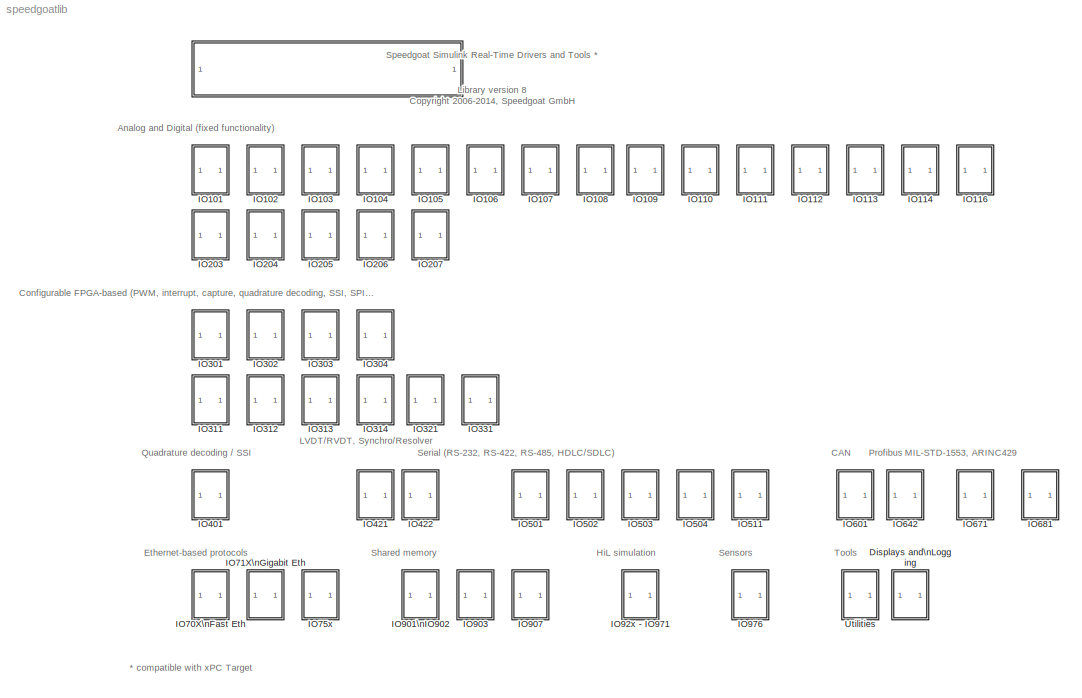
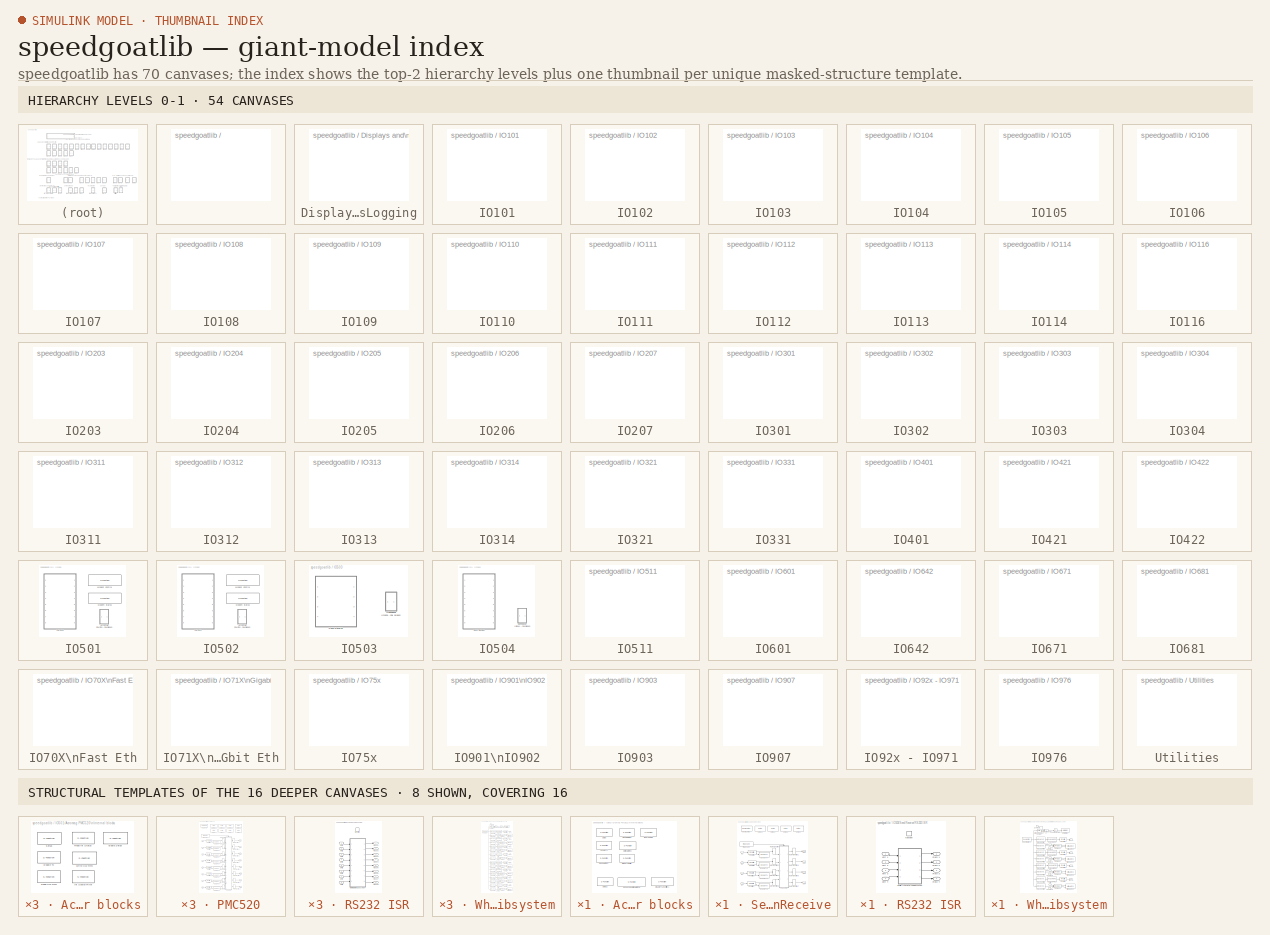
[diagram: thumbnail index - top-2 hierarchy levels (54 canvases) + 8 structural-template representatives of the remaining 16 canvases]
MODEL speedgoatlib
KIND library
BLOCK [SubSystem]  
  FunctionWithSeparateData = off
  MaskDisplay = image(imread('sg_logo.png'))
  MaskHideContents = off
  MaskIconFrame = on
  MaskIconOpaque = on
  MaskIconRotate = none
  MaskIconUnits = autoscale
  MaskPortRotate = default
  MinAlgLoopOccurrences = off
  Opaque = off
  OpenFcn = ;
  Ports = []
  PropExecContextOutsideSubsystem = off
  RTWSystemCode = Auto
  RequestExecContextInheritance = off
  SID = 153
BLOCK [SubSystem] Displays and\nLogging
  FunctionWithSeparateData = off
  MaskHideContents = off
  MinAlgLoopOccurrences = off
  Opaque = off
  OpenFcn = [matlabVer, count] = sscanf(version, '%i.%i.%i');\n\nif (matlabVer(1) < 7) || ( (matlabVer(1) == 8) && (matlabVer(2) <= 2) )\n  load_system('xpclib');      \n  open_system('xpclib/Misc.');\nelse\n  load_system('slrtlib');      \n  open_system('slrtlib/Displays and Logging');\nend\n
  Ports = []
  PropExecContextOutsideSubsystem = off
  RTWSystemCode = Auto
  RequestExecContextInheritance = off
  SID = 206
BLOCK [SubSystem] IO101
  FunctionWithSeparateData = off
  MaskHideContents = off
  MinAlgLoopOccurrences = off
  Opaque = off
  OpenFcn = speedgoatlib_IO101
  Ports = []
  PropExecContextOutsideSubsystem = off
  RTWSystemCode = Auto
  RequestExecContextInheritance = off
  SID = 11
BLOCK [SubSystem] IO102
  FunctionWithSeparateData = off
  MaskHideContents = off
  MinAlgLoopOccurrences = off
  Opaque = off
  OpenFcn = speedgoatlib_IO102
  Ports = []
  PropExecContextOutsideSubsystem = off
  RTWSystemCode = Auto
  RequestExecContextInheritance = off
  SID = 13
BLOCK [SubSystem] IO103
  FunctionWithSeparateData = off
  MaskHideContents = off
  MinAlgLoopOccurrences = off
  Opaque = off
  OpenFcn = speedgoatlib_IO103
  Ports = []
  PropExecContextOutsideSubsystem = off
  RTWSystemCode = Auto
  RequestExecContextInheritance = off
  SID = 14
BLOCK [SubSystem] IO104
  FunctionWithSeparateData = off
  MaskHideContents = off
  MinAlgLoopOccurrences = off
  Opaque = off
  OpenFcn = speedgoatlib_IO104
  Ports = []
  PropExecContextOutsideSubsystem = off
  RTWSystemCode = Auto
  RequestExecContextInheritance = off
  SID = 15
BLOCK [SubSystem] IO105
  FunctionWithSeparateData = off
  MaskHideContents = off
  MinAlgLoopOccurrences = off
  Opaque = off
  OpenFcn = speedgoatlib_IO105
  Ports = []
  PropExecContextOutsideSubsystem = off
  RTWSystemCode = Auto
  RequestExecContextInheritance = off
  SID = 16
BLOCK [SubSystem] IO106
  FunctionWithSeparateData = off
  MaskHideContents = off
  MinAlgLoopOccurrences = off
  Opaque = off
  OpenFcn = speedgoatlib_IO106
  Ports = []
  PropExecContextOutsideSubsystem = off
  RTWSystemCode = Auto
  RequestExecContextInheritance = off
  SID = 17
BLOCK [SubSystem] IO107
  FunctionWithSeparateData = off
  MaskHideContents = off
  MinAlgLoopOccurrences = off
  Opaque = off
  OpenFcn = speedgoatlib_IO107
  Ports = []
  PropExecContextOutsideSubsystem = off
  RTWSystemCode = Auto
  RequestExecContextInheritance = off
  SID = 18
BLOCK [SubSystem] IO108
  FunctionWithSeparateData = off
  MaskHideContents = off
  MinAlgLoopOccurrences = off
  Opaque = off
  OpenFcn = speedgoatlib_IO108
  Ports = []
  PropExecContextOutsideSubsystem = off
  RTWSystemCode = Auto
  RequestExecContextInheritance = off
  SID = 19
BLOCK [SubSystem] IO109
  FunctionWithSeparateData = off
  MaskHideContents = off
  MinAlgLoopOccurrences = off
  Opaque = off
  OpenFcn = speedgoatlib_IO109
  Ports = []
  PropExecContextOutsideSubsystem = off
  RTWSystemCode = Auto
  RequestExecContextInheritance = off
  SID = 20
BLOCK [SubSystem] IO110
  FunctionWithSeparateData = off
  MaskHideContents = off
  MinAlgLoopOccurrences = off
  Opaque = off
  OpenFcn = speedgoatlib_IO110
  Ports = []
  PropExecContextOutsideSubsystem = off
  RTWSystemCode = Auto
  RequestExecContextInheritance = off
  SID = 21
BLOCK [SubSystem] IO111
  FunctionWithSeparateData = off
  MaskHideContents = off
  MinAlgLoopOccurrences = off
  Opaque = off
  OpenFcn = speedgoatlib_IO111
  Ports = []
  PropExecContextOutsideSubsystem = off
  RTWSystemCode = Auto
  RequestExecContextInheritance = off
  SID = 22
BLOCK [SubSystem] IO112
  FunctionWithSeparateData = off
  MaskHideContents = off
  MinAlgLoopOccurrences = off
  Opaque = off
  OpenFcn = speedgoatlib_IO112
  Ports = []
  PropExecContextOutsideSubsystem = off
  RTWSystemCode = Auto
  RequestExecContextInheritance = off
  SID = 23
BLOCK [SubSystem] IO113
  FunctionWithSeparateData = off
  MaskHideContents = off
  MinAlgLoopOccurrences = off
  Opaque = off
  OpenFcn = speedgoatlib_IO113
  Ports = []
  PropExecContextOutsideSubsystem = off
  RTWSystemCode = Auto
  RequestExecContextInheritance = off
  SID = 24
BLOCK [SubSystem] IO114
  FunctionWithSeparateData = off
  MaskHideContents = off
  MinAlgLoopOccurrences = off
  Opaque = off
  OpenFcn = speedgoatlib_IO114
  Ports = []
  PropExecContextOutsideSubsystem = off
  RTWSystemCode = Auto
  RequestExecContextInheritance = off
  SID = 179
BLOCK [SubSystem] IO116
  FunctionWithSeparateData = off
  MaskHideContents = off
  MinAlgLoopOccurrences = off
  Opaque = off
  OpenFcn = speedgoatlib_IO116
  Ports = []
  PropExecContextOutsideSubsystem = off
  RTWSystemCode = Auto
  RequestExecContextInheritance = off
  SID = 189
BLOCK [SubSystem] IO203
  FunctionWithSeparateData = off
  MaskHideContents = off
  MinAlgLoopOccurrences = off
  Opaque = off
  OpenFcn = speedgoatlib_IO203
  Ports = []
  PropExecContextOutsideSubsystem = off
  RTWSystemCode = Auto
  RequestExecContextInheritance = off
  SID = 67
BLOCK [SubSystem] IO204
  FunctionWithSeparateData = off
  MaskHideContents = off
  MinAlgLoopOccurrences = off
  Opaque = off
  OpenFcn = speedgoatlib_IO204
  Ports = []
  PropExecContextOutsideSubsystem = off
  RTWSystemCode = Auto
  RequestExecContextInheritance = off
  SID = 68
BLOCK [SubSystem] IO205
  FunctionWithSeparateData = off
  MaskHideContents = off
  MinAlgLoopOccurrences = off
  Opaque = off
  OpenFcn = speedgoatlib_IO205
  Ports = []
  PropExecContextOutsideSubsystem = off
  RTWSystemCode = Auto
  RequestExecContextInheritance = off
  SID = 69
BLOCK [SubSystem] IO206
  FunctionWithSeparateData = off
  MaskHideContents = off
  MinAlgLoopOccurrences = off
  Opaque = off
  OpenFcn = speedgoatlib_IO206
  Ports = []
  PropExecContextOutsideSubsystem = off
  RTWSystemCode = Auto
  RequestExecContextInheritance = off
  SID = 70
BLOCK [SubSystem] IO207
  FunctionWithSeparateData = off
  MaskHideContents = off
  MinAlgLoopOccurrences = off
  Opaque = off
  OpenFcn = speedgoatlib_IO207
  Ports = []
  PropExecContextOutsideSubsystem = off
  RTWSystemCode = Auto
  RequestExecContextInheritance = off
  SID = 186
BLOCK [SubSystem] IO301
  FunctionWithSeparateData = off
  MaskHideContents = off
  MinAlgLoopOccurrences = off
  Opaque = off
  OpenFcn = speedgoatlib_IO301
  Ports = []
  PropExecContextOutsideSubsystem = off
  RTWSystemCode = Auto
  RequestExecContextInheritance = off
  SID = 25
BLOCK [SubSystem] IO302
  FunctionWithSeparateData = off
  MaskHideContents = off
  MinAlgLoopOccurrences = off
  Opaque = off
  OpenFcn = speedgoatlib_IO302
  Ports = []
  PropExecContextOutsideSubsystem = off
  RTWSystemCode = Auto
  RequestExecContextInheritance = off
  SID = 26
BLOCK [SubSystem] IO303
  FunctionWithSeparateData = off
  MaskHideContents = off
  MinAlgLoopOccurrences = off
  Opaque = off
  OpenFcn = speedgoatlib_IO303
  Ports = []
  PropExecContextOutsideSubsystem = off
  RTWSystemCode = Auto
  RequestExecContextInheritance = off
  SID = 27
BLOCK [SubSystem] IO304
  FunctionWithSeparateData = off
  MaskHideContents = off
  MinAlgLoopOccurrences = off
  Opaque = off
  OpenFcn = speedgoatlib_IO304
  Ports = []
  PropExecContextOutsideSubsystem = off
  RTWSystemCode = Auto
  RequestExecContextInheritance = off
  SID = 28
BLOCK [SubSystem] IO311
  FunctionWithSeparateData = off
  MaskHideContents = off
  MinAlgLoopOccurrences = off
  Opaque = off
  OpenFcn = speedgoatlib_IO311
  Ports = []
  PropExecContextOutsideSubsystem = off
  RTWSystemCode = Auto
  RequestExecContextInheritance = off
  SID = 35
BLOCK [SubSystem] IO312
  FunctionWithSeparateData = off
  MaskHideContents = off
  MinAlgLoopOccurrences = off
  Opaque = off
  OpenFcn = speedgoatlib_IO312
  Ports = []
  PropExecContextOutsideSubsystem = off
  RTWSystemCode = Auto
  RequestExecContextInheritance = off
  SID = 36
BLOCK [SubSystem] IO313
  FunctionWithSeparateData = off
  MaskHideContents = off
  MinAlgLoopOccurrences = off
  Opaque = off
  OpenFcn = speedgoatlib_IO313
  Ports = []
  PropExecContextOutsideSubsystem = off
  RTWSystemCode = Auto
  RequestExecContextInheritance = off
  SID = 37
BLOCK [SubSystem] IO314
  FunctionWithSeparateData = off
  MaskHideContents = off
  MinAlgLoopOccurrences = off
  Opaque = off
  OpenFcn = speedgoatlib_IO314
  Ports = []
  PropExecContextOutsideSubsystem = off
  RTWSystemCode = Auto
  RequestExecContextInheritance = off
  SID = 39
BLOCK [SubSystem] IO321
  FunctionWithSeparateData = off
  MaskHideContents = off
  MinAlgLoopOccurrences = off
  Opaque = off
  OpenFcn = speedgoatlib_IO321
  Ports = []
  PropExecContextOutsideSubsystem = off
  RTWSystemCode = Auto
  RequestExecContextInheritance = off
  SID = 40
BLOCK [SubSystem] IO331
  FunctionWithSeparateData = off
  MaskHideContents = off
  MinAlgLoopOccurrences = off
  Opaque = off
  OpenFcn = speedgoatlib_fpga
  Ports = []
  PropExecContextOutsideSubsystem = off
  RTWSystemCode = Auto
  RequestExecContextInheritance = off
  SID = 204
BLOCK [SubSystem] IO401
  FunctionWithSeparateData = off
  MaskHideContents = off
  MinAlgLoopOccurrences = off
  Opaque = off
  OpenFcn = speedgoatlib_IO401
  Ports = []
  PropExecContextOutsideSubsystem = off
  RTWSystemCode = Auto
  RequestExecContextInheritance = off
  SID = 42
BLOCK [SubSystem] IO421
  FunctionWithSeparateData = off
  MaskHideContents = off
  MinAlgLoopOccurrences = off
  Opaque = off
  OpenFcn = speedgoatlib_IO421
  Ports = []
  PropExecContextOutsideSubsystem = off
  RTWSystemCode = Auto
  RequestExecContextInheritance = off
  SID = 197
BLOCK [SubSystem] IO422
  FunctionWithSeparateData = off
  MaskHideContents = off
  MinAlgLoopOccurrences = off
  Opaque = off
  OpenFcn = speedgoatlib_IO422
  Ports = []
  PropExecContextOutsideSubsystem = off
  RTWSystemCode = Auto
  RequestExecContextInheritance = off
  SID = 198
BLOCK [SubSystem] IO501
  FunctionWithSeparateData = off
  MaskHideContents = off
  MinAlgLoopOccurrences = off
  Opaque = off
  Ports = []
  PropExecContextOutsideSubsystem = off
  RTWSystemCode = Auto
  RequestExecContextInheritance = off
  SID = 47
BLOCK [SubSystem] IO501/Acromag PMC520\nInternal blocks
  FunctionWithSeparateData = off
  MaskHideContents = off
  MinAlgLoopOccurrences = off
  Opaque = off
  Ports = []
  PropExecContextOutsideSubsystem = off
  RTWSystemCode = Auto
  RequestExecContextInheritance = off
  SID = 86
BLOCK [S-Function] IO501/Acromag PMC520\nInternal blocks/Board Setup
  EnableBusSupport = off
  FunctionName = board_setup_XR17D15x
  MaskCallbackString = ||
  MaskDescription = PMC520\nAcromag\nBoard Setup\n
  MaskDisplay = disp('PMC520\\nAcromag\\nBoard Setup');
  MaskEnableString = on,on,on
  MaskHelp = helpview(fullfile(docroot, 'mapfiles', 'xpc.map'), 'Commtech_422335_IntChk')
  MaskIconFrame = on
  MaskIconOpaque = on
  MaskIconRotate = none
  MaskIconUnits = autoscale
  MaskInitialization = \n
  MaskPortRotate = default
  MaskPromptString = Reference Freq (standard = 14745600)   (6 Mhz <= F <= 50 Mhz)|IRQ Line Number|PCI slot: (-1 for autosearch)
  MaskSelfModifiable = on
  MaskStyleString = edit,popup(5|6|7|8|9|10|11|12|13|14|15),edit
  MaskToolTipString = on,on,on
  MaskTunableValueString = on,on,on
  MaskType = board_setup_XR17D15x
  MaskValueString = 14745600|5|-1
  MaskVariables = reffreq=@1;irqnum=@2;slot=@3;
  MaskVisibilityString = on,on,on
  Parameters = slot, irqnum+4, 100, reffreq
  Ports = []
  SID = 90
BLOCK [S-Function] IO501/Acromag PMC520\nInternal blocks/Enable TX 
  EnableBusSupport = off
  FunctionName = tx_int_enable_XR17D15x
  MaskCallbackString = |
  MaskDescription = PMC520\nAcromag\nEnable TX Interrupt\n
  MaskDisplay = disp('PMC520\\nAcromag\\nEnable TX int');\nport_label('input', 1, 'E');\n
  MaskEnableString = on,on
  MaskHelp = helpview(fullfile(docroot, 'mapfiles', 'xpc.map'), 'FC422335_Enable_Int')
  MaskIconFrame = on
  MaskIconOpaque = on
  MaskIconRotate = none
  MaskIconUnits = autoscale
  MaskInitialization = \n
  MaskPortRotate = default
  MaskPromptString = Port:|PCI slot: (-1 for autosearch)
  MaskSelfModifiable = on
  MaskStyleString = popup(1|2|3|4|5|6|7|8),edit
  MaskToolTipString = on,on
  MaskTunableValueString = on,on
  MaskType = tx_int_enable_XR17D15x
  MaskValueString = 1|-1
  MaskVariables = port=@1;slot=@2;
  MaskVisibilityString = on,on
  Parameters = slot, port, 100
  Ports = [1]
  SID = 91
BLOCK [S-Function] IO501/Acromag PMC520\nInternal blocks/Int Source Filter
  EnableBusSupport = off
  FunctionName = int_source_filter_XR17D15x
  MaskCallbackString = |
  MaskDescription = PMC520\nAcromag\nInterrupt Source Filter\n
  MaskDisplay = disp('PMC520\\nAcromag\\nInt Source Filter');\nport_label('input', 1, 'S' );\nport_label('output', 1, 'E' );\n
  MaskEnableString = on,on
  MaskHelp = helpview(fullfile(docroot, 'mapfiles', 'xpc.map'), 'FC422335_Filter_Ints')
  MaskIconFrame = on
  MaskIconOpaque = on
  MaskIconRotate = none
  MaskIconUnits = autoscale
  MaskInitialization = \n
  MaskPortRotate = default
  MaskPromptString = Port:|Filter value:
  MaskSelfModifiable = on
  MaskStyleString = popup(1|2|3|4|5|6|7|8),popup(Receive data|Transmitter empty|Modem status change)
  MaskToolTipString = on,on
  MaskTunableValueString = on,on
  MaskType = int_source_filter_XR17D15x
  MaskValueString = 1|Receive data
  MaskVariables = port=@1;value=@2;
  MaskVisibilityString = on,on
  Parameters = port, 100, value
  Ports = [1, 1]
  SID = 92
BLOCK [S-Function] IO501/Acromag PMC520\nInternal blocks/Read HW FIFO
  EnableBusSupport = off
  FunctionName = read_hw_fifo_XR17D15x
  MaskCallbackString = ||
  MaskDescription = PMC520\nAcromag\nRead Hardware FIFO\n
  MaskDisplay = disp('PMC520\\nAcromag\\nRead HW FIFO');\nport_label('input', 1, 'E');\nport_label('output', 1, 'D');
  MaskEnableString = on,on,on
  MaskHelp = helpview(fullfile(docroot, 'mapfiles', 'xpc.map'), 'FC422335_Read_HW')
  MaskIconFrame = on
  MaskIconOpaque = on
  MaskIconRotate = none
  MaskIconUnits = autoscale
  MaskPortRotate = default
  MaskPromptString = Port:|Flush HW FIFO on startup|PCI slot: (-1 for autosearch)
  MaskSelfModifiable = on
  MaskStyleString = popup(1|2|3|4|5|6|7|8),checkbox,edit
  MaskToolTipString = on,on,on
  MaskTunableValueString = on,on,on
  MaskType = read_hw_fifo_XR17D15x
  MaskValueString = 1|on|-1
  MaskVariables = port=@1;flush=@2;slot=@3;
  MaskVisibilityString = on,on,on
  Parameters = slot, port, 100, flush
  Ports = [1, 1]
  SID = 93
BLOCK [S-Function] IO501/Acromag PMC520\nInternal blocks/Read Int Status
  EnableBusSupport = off
  FunctionName = read_int_status_XR17D15x
  MaskDescription = PMC520\nAcromag\nRead Interrupt Status\n
  MaskDisplay = disp('PMC520\\nAcromag\\nRead Int Status');\nport_label('output', 1, 'S' );\n
  MaskEnableString = on
  MaskHelp = helpview(fullfile(docroot, 'mapfiles', 'xpc.map'), 'Commtech_422335_Interrupt_Query')
  MaskIconFrame = on
  MaskIconOpaque = on
  MaskIconRotate = none
  MaskIconUnits = autoscale
  MaskPortRotate = default
  MaskPromptString = PCI slot: (-1 for autosearch)
  MaskSelfModifiable = on
  MaskStyleString = edit
  MaskToolTipString = on
  MaskTunableValueString = on
  MaskType = read_int_status_XR17D15x
  MaskValueString = -1
  MaskVariables = slot=@1;
  MaskVisibilityString = on
  Parameters = slot, 100
  Ports = [0, 1]
  SID = 94
BLOCK [S-Function] IO501/Acromag PMC520\nInternal blocks/Setup 
  EnableBusSupport = off
  FunctionName = setup_XR17D15x
  MaskCallbackString = ||||||||||||||||
  MaskDescription = PMC520\nAcromag\nSetup\n
  MaskDisplay = disp('PMC520\\nAcromag\\nSetup');
  MaskEnableString = on,on,on,on,on,on,on,on,on,on,on,on,on,on,on,on,on
  MaskHelp = helpview(fullfile(docroot, 'mapfiles', 'xpc.map'), 'FC422335_Setup')
  MaskIconFrame = on
  MaskIconOpaque = on
  MaskIconRotate = none
  MaskIconUnits = autoscale
  MaskInitialization = \n
  MaskPortRotate = default
  MaskPromptString = Port:|Use standard reference and rates|Baud rate (using standard reference):|Baud Divisor (1 to 65535, custom rate):|Sampling rate:|Prescale (Divide reference by 4)|Number of data bits:|Number of stop bits:|Parity:|Receive trigger level:|Hardware handshake:|Software handshake:|XON character:|XOFF character:|RS485 auto turnaround|RS485 turnaround delay:|PCI slot: (-1 for autosearch)
  MaskSelfModifiable = on
  MaskStyleString = edit,checkbox,popup(921600|460800|230400|115200|57600|38400|19200|9600|4800|2400|1200|600|300|110),edit,popup(8x|16x (standard)),checkbox,popup(5|6|7|8),popup(1|2),popup(None|Even|Odd|Mark|Space),popup(1|quarter full (16)|half full (32)|almost full (56)),popup(RTS/CTS|DTR/DSR|none),popup(XON/XOFF|none),edit,edit,checkbox,edit,edit
  MaskToolTipString = on,on,on,on,on,on,on,on,on,on,on,on,on,on,on,on,on
  MaskTunableValueString = on,on,on,on,on,on,on,on,on,on,on,on,on,on,on,on,on
  MaskType = setup_XR17D15x
  MaskValueString = 1|on|115200|1|16x (standard)|off|8|1|None|1|none|none|17|19|off|0|-1
  MaskVariables = port=@1;standard=@2;baudrate=@3;bauddivisor=@4;mode8x=@5;prescale=@6;width=@7;nstop=@8;parity=@9;rlevel=@10;ctsmode=@11;xonoff=@12;xon=@13;xoff=@14;rs485mode=@15;rs485delay=@16;slot=@17;
  MaskVisibilityString = on,on,on,on,on,on,on,on,on,on,on,on,on,on,on,on,on
  Parameters = slot, 100, port, standard, baudrate, bauddivisor, mode8x, prescale, width, nstop, parity, rlevel, ctsmode, xonoff, xon, xoff, rs485mode, rs485delay
  Ports = []
  SID = 95
BLOCK [S-Function] IO501/Acromag PMC520\nInternal blocks/Write HW FIFO
  EnableBusSupport = off
  FunctionName = write_hw_fifo_XR17D15x
  MaskCallbackString = |
  MaskDescription = PMC520\nAcromag\nWrite Hardware FIFO\n
  MaskDisplay = disp('PMC520\\nAcromag\\nWrite HW FIFO');\nport_label('input', 1, 'D');\nport_label('input', 2, 'E');
  MaskEnableString = on,on
  MaskHelp = helpview(fullfile(docroot, 'mapfiles', 'xpc.map'), 'FC422335_Write_HW')
  MaskIconFrame = on
  MaskIconOpaque = on
  MaskIconRotate = none
  MaskIconUnits = autoscale
  MaskPortRotate = default
  MaskPromptString = Port:|PCI slot: (-1 for autosearch)
  MaskSelfModifiable = on
  MaskStyleString = popup(1|2|3|4|5|6|7|8),edit
  MaskToolTipString = on,on
  MaskTunableValueString = on,on
  MaskType = write_hw_fifo_XR17D15x
  MaskValueString = 1|-1
  MaskVariables = port=@1;slot=@2;
  MaskVisibilityString = on,on
  Parameters = slot, port, 100
  Ports = [2]
  SID = 96
BLOCK [S-Function] IO501/Modem Control
  EnableBusSupport = off
  FunctionName = modem_control_XR17D15x
  InitFcn = mmodemcontrol(3)
  MaskCallbackString = |||
  MaskDescription = PMC520\nAcromag\nModem Control
  MaskDisplay = disp('PMC520\\nAcromag\\nModem Control');port_label('input',1,'RTS');
  MaskEnableString = on,on,off,on
  MaskHelp = helpview(fullfile(docroot, 'mapfiles', 'xpc.map'), 'Quatech_MODEM_Control')
  MaskIconFrame = on
  MaskIconOpaque = on
  MaskIconRotate = none
  MaskIconUnits = autoscale
  MaskInitialization = count = 0;\nboardtype = 100;\n[maskdisplay, count] = mmodemcontrol( 2, rts, dtr, boardtype, 0, 0 );\nset_param( gcb, 'MaskDisplay', maskdisplay );\n
  MaskPortRotate = default
  MaskPromptString = Port:|RTS:|DTR:|PCI slot: (-1 for autosearch)
  MaskSelfModifiable = on
  MaskStyleString = popup(1|2),checkbox,checkbox,edit
  MaskToolTipString = on,on,on,on
  MaskTunableValueString = on,on,on,on
  MaskType = modem_control_XR17D15x
  MaskValueString = 1|on|off|[2,13]
  MaskVariables = port=@1;rts=@2;dtr=@3;slot=@4;
  MaskVisibilityString = on,on,off,on
  Parameters = slot, port, boardtype, rts, dtr, count
  Ports = [1]
  SID = 87
BLOCK [S-Function] IO501/Modem Status
  EnableBusSupport = off
  FunctionName = modem_status_XR17D15x
  MaskCallbackString = ||||||
  MaskDescription = PMC520\nAcromag\nModem Status
  MaskDisplay = disp('PMC520\\nAcromag\\nModem Control');port_label('output',1,'CTS');
  MaskEnableString = on,on,off,off,off,on,on
  MaskHelp = helpview(fullfile(docroot, 'mapfiles', 'xpc.map'), 'FC422_MODEM_Status')
  MaskIconFrame = on
  MaskIconOpaque = on
  MaskIconRotate = none
  MaskIconUnits = autoscale
  MaskInitialization = count = 0;\nboardtype = 100;\n[maskdisplay, count] = mmodemstatus( 2, cts, dsr, ring, dcd, boardtype );\nset_param( gcb, 'MaskDisplay', maskdisplay );\n
  MaskPortRotate = default
  MaskPromptString = Port:|CTS:|DSR:|RI:|DCD:|SampleTime:|PCI slot: (-1 for autosearch)
  MaskSelfModifiable = on
  MaskStyleString = popup(1|2),checkbox,checkbox,checkbox,checkbox,edit,edit
  MaskToolTipString = on,on,on,on,on,on,on
  MaskTunableValueString = on,on,on,on,on,on,on
  MaskType = modem_status_XR17D15x
  MaskValueString = 1|on|off|off|off|-1|[2,13]
  MaskVariables = port=@1;cts=@2;dsr=@3;ring=@4;dcd=@5;sampletime=@6;slot=@7;
  MaskVisibilityString = on,on,off,off,off,on,on
  Parameters = slot, port, boardtype, cts, dsr, ring, dcd, count, sampletime
  Ports = [0, 1]
  SID = 88
BLOCK [SubSystem] IO501/PMC520
  FunctionWithSeparateData = off
  InitFcn = m_XR17D15x(3);
  MaskCallbackString = m_XR17D15x(2, 8);|m_XR17D15x(2, 8);|||m_XR17D15x(2, 8);\n|||||||||||||||||||||||||||||||||||||||||||||||||||||||||||||||||||||||||||||||||||||||||||||||||||||||||||||||||||||||||||||||||||||||||
  MaskDescription = PMC520\nAcromag\nRS232 Send Receive Subsystem\n
  MaskDisplay = disp('Acromag<path>');\nport_label( 'input', 1, 'XMT1' );\nport_label( 'input', 2, 'XMT2' );\nport_label( 'input', 3, 'XMT3' );\nport_label( 'input', 4, 'XMT4' );\nport_label( 'input', 5, 'XMT5' );\nport_label( 'input', 6, 'XMT6' );\nport_label( 'input', 7, 'XMT7' );\nport_label( 'input', 8, 'XMT8' );\n\nport_label( 'output', 1, 'FIFO1' );\nport_label( 'output', 2, 'FI...<+233ch>
  MaskEnableString = on,on,on,off,on,on,on,off,off,off,on,on,on,on,on,on,on,on,on,on,on,on,on,on,off,off,off,on,on,on,on,on,on,on,on,on,on,on,on,on,on,off,off,off,on,on,on,on,on,on,on,on,on,on,on,on,on,on,off,off,off,on,on,on,on,on,on,on,on,on,on,on,on,on,on,off,off,off,on,on,on,on,on,on,on,on,on,on,on,on,on,on,off,off,off,on,on,on,on,on,on,on,on,on,on,on,on,on,on,off,off,off,on,on,on,on,on,on,on,on,on,on,on,on,on,on,...<+50ch>
  MaskHelp = helpview(fullfile(docroot, 'mapfiles', 'xpc.map'), 'Commtech_Subsystem')
  MaskHideContents = off
  MaskIconFrame = on
  MaskIconOpaque = on
  MaskIconRotate = none
  MaskIconUnits = autoscale
  MaskInitialization = brdslot = slot;\nm_XR17D15x(1, 8);\n\n
  MaskPortRotate = default
  MaskPromptString = Parameter group:|Port to modify:|IRQ number:|Master Clock Frequeny (standard = 14.7456E6 Hz):|Use standard reference and rates (Ref = 14.7456E6 Hz, 16x sampling, all ports)|Slot:|Baud rate:|Baud divisor:|Sampling rate:|Prescale (divide reference by 4)|Parity:|Data bits:|Stop bits:|Receive FIFO interrupt level:|Hardware handshake:|Software handshake:|XON character:|XOFF character:|RS485 auto turnar...<+2490ch>
  MaskSelfModifiable = on
  MaskStyleString = popup(Board Setup|Basic Setup|FIFO Setup),popup(1|2|3|4|5|6|7|8),edit,edit,checkbox,edit,popup(921600|460800|230400|115200|57600|38400|19200|9600|4800|2400|1200|600|300|110),edit,popup(8x|16x (standard)),checkbox,popup(None|Even|Odd|Mark|Space),popup(5|6|7|8),popup(1|2),popup(1|quarter full (16)|half full (32)|almost full (56)),popup(RTS/CTS|none),popup(XON/XOFF|none),edit,edit,checkbox,edit,edit,...<+3256ch>
  MaskToolTipString = on,on,on,on,on,on,on,on,on,on,on,on,on,on,on,on,on,on,on,on,on,on,on,on,on,on,on,on,on,on,on,on,on,on,on,on,on,on,on,on,on,on,on,on,on,on,on,on,on,on,on,on,on,on,on,on,on,on,on,on,on,on,on,on,on,on,on,on,on,on,on,on,on,on,on,on,on,on,on,on,on,on,on,on,on,on,on,on,on,on,on,on,on,on,on,on,on,on,on,on,on,on,on,on,on,on,on,on,on,on,on,on,on,on,on,on,on,on,on,on,on,on,on,on,on,on,on,on,on,on,on,on,on,o...<+25ch>
  MaskTunableValueString = on,on,on,on,on,on,on,on,on,on,on,on,on,on,on,on,on,on,on,on,on,on,on,on,on,on,on,on,on,on,on,on,on,on,on,on,on,on,on,on,on,on,on,on,on,on,on,on,on,on,on,on,on,on,on,on,on,on,on,on,on,on,on,on,on,on,on,on,on,on,on,on,on,on,on,on,on,on,on,on,on,on,on,on,on,on,on,on,on,on,on,on,on,on,on,on,on,on,on,on,on,on,on,on,on,on,on,on,on,on,on,on,on,on,on,on,on,on,on,on,on,on,on,on,on,on,on,on,on,on,on,on,on,o...<+25ch>
  MaskType = RS232 Send Receive
  MaskValueString = Board Setup|1|5|14745600|on|-1|115200|1|16x (standard)|off|None|8|1|1|none|none|17|19|off|0|1024|8 bit uint null terminated|1024|115200|1|16x (standard)|off|None|8|1|1|none|none|17|19|off|0|1024|8 bit uint null terminated|1024|115200|1|16x (standard)|off|None|8|1|half full (32)|none|none|17|19|off|0|1024|8 bit uint null terminated|1024|115200|1|16x (standard)|off|None|8|1|half full (32)|none|none|...<+440ch>
  MaskVariables = group=@1;port=@2;irqnum=&3;clockfreq=@4;standard=@5;slot=@6;baud1=@7;bauddivisor1=@8;sampling1=@9;prescale1=@10;parity1=&11;ndata1=&12;nstop1=&13;rlevel1=&14;hwmode1=&15;swmode1=@16;xonchar1=@17;xoffchar1=@18;rs485auto1=@19;rs485delay1=@20;xmtfifosize1=@21;xmtdatatype1=@22;rcvfifosize1=@23;baud2=@24;bauddivisor2=&25;sampling2=@26;prescale2=@27;parity2=&28;ndata2=&29;nstop2=&30;rlevel2=&31;hwmode2=...<+1572ch>
  MaskVisibilityString = on,off,on,on,on,on,off,off,off,off,off,off,off,off,off,off,off,off,off,off,off,off,off,off,off,off,off,off,off,off,off,off,off,off,off,off,off,off,off,off,off,off,off,off,off,off,off,off,off,off,off,off,off,off,off,off,off,off,off,off,off,off,off,off,off,off,off,off,off,off,off,off,off,off,off,off,off,off,off,off,off,off,off,off,off,off,off,off,off,off,off,off,off,off,off,off,off,off,off,off,off,o...<+162ch>
  MinAlgLoopOccurrences = off
  Opaque = off
  Ports = [8, 8]
  PropExecContextOutsideSubsystem = off
  RTWSystemCode = Auto
  RequestExecContextInheritance = off
  SID = 89
BLOCK [Reference] IO501/PMC520/Board Setup  REF=speedgoatlib/IO501/Acromag PMC520\nInternal blocks/Board Setup  (lib defined in mdl_2b10c7445f81, mdl_649b3eec89a6, +4 more)
  Ports = []
  SID = 9
  SourceBlock = speedgoatlib/IO501/Acromag PMC520\nInternal blocks/Board Setup
  SourceType = board_setup_XR17D15x
  irqnum = 5
  reffreq = 14745600
  slot = brdslot
BLOCK [Reference] IO501/PMC520/Enable TX   REF=speedgoatlib/IO501/Acromag PMC520\nInternal blocks/Enable TX   (lib defined in mdl_2b10c7445f81, mdl_649b3eec89a6, +4 more)
  Ports = [1]
  SID = 10
  SourceBlock = speedgoatlib/IO501/Acromag PMC520\nInternal blocks/Enable TX
  SourceType = tx_int_enable_XR17D15x
  port = 1
  slot = brdslot
BLOCK [Reference] IO501/PMC520/Enable TX 1  REF=speedgoatlib/IO501/Acromag PMC520\nInternal blocks/Enable TX   (lib defined in mdl_2b10c7445f81, mdl_649b3eec89a6, +4 more)
  Ports = [1]
  SID = 11
  SourceBlock = speedgoatlib/IO501/Acromag PMC520\nInternal blocks/Enable TX
  SourceType = tx_int_enable_XR17D15x
  port = 2
  slot = brdslot
BLOCK [Reference] IO501/PMC520/Enable TX 2  REF=speedgoatlib/IO501/Acromag PMC520\nInternal blocks/Enable TX   (lib defined in mdl_2b10c7445f81, mdl_649b3eec89a6, +4 more)
  Ports = [1]
  SID = 12
  SourceBlock = speedgoatlib/IO501/Acromag PMC520\nInternal blocks/Enable TX
  SourceType = tx_int_enable_XR17D15x
  port = 3
  slot = brdslot
BLOCK [Reference] IO501/PMC520/Enable TX 3  REF=speedgoatlib/IO501/Acromag PMC520\nInternal blocks/Enable TX   (lib defined in mdl_2b10c7445f81, mdl_649b3eec89a6, +4 more)
  Ports = [1]
  SID = 13
  SourceBlock = speedgoatlib/IO501/Acromag PMC520\nInternal blocks/Enable TX
  SourceType = tx_int_enable_XR17D15x
  port = 4
  slot = brdslot
BLOCK [Reference] IO501/PMC520/Enable TX 4  REF=speedgoatlib/IO501/Acromag PMC520\nInternal blocks/Enable TX   (lib defined in mdl_2b10c7445f81, mdl_649b3eec89a6, +4 more)
  Ports = [1]
  SID = 14
  SourceBlock = speedgoatlib/IO501/Acromag PMC520\nInternal blocks/Enable TX
  SourceType = tx_int_enable_XR17D15x
  port = 5
  slot = brdslot
BLOCK [Reference] IO501/PMC520/Enable TX 5  REF=speedgoatlib/IO501/Acromag PMC520\nInternal blocks/Enable TX   (lib defined in mdl_2b10c7445f81, mdl_649b3eec89a6, +4 more)
  Ports = [1]
  SID = 15
  SourceBlock = speedgoatlib/IO501/Acromag PMC520\nInternal blocks/Enable TX
  SourceType = tx_int_enable_XR17D15x
  port = 6
  slot = brdslot
BLOCK [Reference] IO501/PMC520/Enable TX 6  REF=speedgoatlib/IO501/Acromag PMC520\nInternal blocks/Enable TX   (lib defined in mdl_2b10c7445f81, mdl_649b3eec89a6, +4 more)
  Ports = [1]
  SID = 16
  SourceBlock = speedgoatlib/IO501/Acromag PMC520\nInternal blocks/Enable TX
  SourceType = tx_int_enable_XR17D15x
  port = 7
  slot = brdslot
BLOCK [Reference] IO501/PMC520/Enable TX 7  REF=speedgoatlib/IO501/Acromag PMC520\nInternal blocks/Enable TX   (lib defined in mdl_2b10c7445f81, mdl_649b3eec89a6, +4 more)
  Ports = [1]
  SID = 17
  SourceBlock = speedgoatlib/IO501/Acromag PMC520\nInternal blocks/Enable TX
  SourceType = tx_int_enable_XR17D15x
  port = 8
  slot = brdslot
BLOCK [Reference] IO501/PMC520/FIFO write 1  REF=xpclib/RS232/FIFO write 
  Ports = [1, 2]
  SID = 18
  SourceBlock = xpclib/RS232/FIFO write
  SourceType = Asynchronous FIFO Block: writer
  id = XMT channel 1, IRQ 5
  inputtype = 8 bit uint null terminated
  present = on
  sampletime = -1
  size = 1024
BLOCK [Reference] IO501/PMC520/FIFO write 2  REF=xpclib/RS232/FIFO write 
  Ports = [1, 2]
  SID = 19
  SourceBlock = xpclib/RS232/FIFO write
  SourceType = Asynchronous FIFO Block: writer
  id = XMT channel 2, IRQ 5
  inputtype = 8 bit uint null terminated
  present = on
  sampletime = -1
  size = 1024
BLOCK [Reference] IO501/PMC520/FIFO write 3  REF=xpclib/RS232/FIFO write 
  Ports = [1, 2]
  SID = 20
  SourceBlock = xpclib/RS232/FIFO write
  SourceType = Asynchronous FIFO Block: writer
  id = XMT channel 3, IRQ 5
  inputtype = 8 bit uint null terminated
  present = on
  sampletime = -1
  size = 1024
BLOCK [Reference] IO501/PMC520/FIFO write 4  REF=xpclib/RS232/FIFO write 
  Ports = [1, 2]
  SID = 21
  SourceBlock = xpclib/RS232/FIFO write
  SourceType = Asynchronous FIFO Block: writer
  id = XMT channel 4, IRQ 5
  inputtype = 8 bit uint null terminated
  present = on
  sampletime = -1
  size = 1024
BLOCK [Reference] IO501/PMC520/FIFO write 5  REF=xpclib/RS232/FIFO write 
  Ports = [1, 2]
  SID = 22
  SourceBlock = xpclib/RS232/FIFO write
  SourceType = Asynchronous FIFO Block: writer
  id = XMT channel 5, IRQ 5
  inputtype = 8 bit uint null terminated
  present = on
  sampletime = -1
  size = 1024
BLOCK [Reference] IO501/PMC520/FIFO write 6  REF=xpclib/RS232/FIFO write 
  Ports = [1, 2]
  SID = 23
  SourceBlock = xpclib/RS232/FIFO write
  SourceType = Asynchronous FIFO Block: writer
  id = XMT channel 6, IRQ 5
  inputtype = 8 bit uint null terminated
  present = on
  sampletime = -1
  size = 1024
BLOCK [Reference] IO501/PMC520/FIFO write 7  REF=xpclib/RS232/FIFO write 
  Ports = [1, 2]
  SID = 24
  SourceBlock = xpclib/RS232/FIFO write
  SourceType = Asynchronous FIFO Block: writer
  id = XMT channel 7, IRQ 5
  inputtype = 8 bit uint null terminated
  present = on
  sampletime = -1
  size = 1024
BLOCK [Reference] IO501/PMC520/FIFO write 8  REF=xpclib/RS232/FIFO write 
  Ports = [1, 2]
  SID = 25
  SourceBlock = xpclib/RS232/FIFO write
  SourceType = Asynchronous FIFO Block: writer
  id = XMT channel 8, IRQ 5
  inputtype = 8 bit uint null terminated
  present = on
  sampletime = -1
  size = 1024
BLOCK [Reference] IO501/PMC520/IRQ Source  REF=xpclib/Asynchronous\nEvent/IRQ Source
  Ports = [0, 1]
  SID = 26
  SourceBlock = xpclib/Asynchronous\nEvent/IRQ Source
  SourceType = xpcinterrupt
  b_type = None/Other
  irqNo = 5
  preempt = off
  slot = brdslot
BLOCK [Inport] IO501/PMC520/In1
  IconDisplay = Port number
  SID = 1
BLOCK [Inport] IO501/PMC520/In2
  IconDisplay = Port number
  Port = 2
  SID = 2
BLOCK [Inport] IO501/PMC520/In3
  IconDisplay = Port number
  Port = 3
  SID = 3
BLOCK [Inport] IO501/PMC520/In4
  IconDisplay = Port number
  Port = 4
  SID = 4
BLOCK [Inport] IO501/PMC520/In5
  IconDisplay = Port number
  Port = 5
  SID = 5
BLOCK [Inport] IO501/PMC520/In6
  IconDisplay = Port number
  Port = 6
  SID = 6
BLOCK [Inport] IO501/PMC520/In7
  IconDisplay = Port number
  Port = 7
  SID = 7
BLOCK [Inport] IO501/PMC520/In8
  IconDisplay = Port number
  Port = 8
  SID = 8
BLOCK [Outport] IO501/PMC520/Out1
  IconDisplay = Port number
  SID = 52
BLOCK [Outport] IO501/PMC520/Out2
  IconDisplay = Port number
  Port = 2
  SID = 53
BLOCK [Outport] IO501/PMC520/Out3
  IconDisplay = Port number
  Port = 3
  SID = 54
BLOCK [Outport] IO501/PMC520/Out4
  IconDisplay = Port number
  Port = 4
  SID = 55
BLOCK [Outport] IO501/PMC520/Out5
  IconDisplay = Port number
  Port = 5
  SID = 56
BLOCK [Outport] IO501/PMC520/Out6
  IconDisplay = Port number
  Port = 6
  SID = 57
BLOCK [Outport] IO501/PMC520/Out7
  IconDisplay = Port number
  Port = 7
  SID = 58
BLOCK [Outport] IO501/PMC520/Out8
  IconDisplay = Port number
  Port = 8
  SID = 59
BLOCK [SubSystem] IO501/PMC520/RS232 ISR
  FunctionWithSeparateData = off
  MaskDescription = PMC520\nAcromag\nInterrupt Service Routine\n
  MaskDisplay = disp('PMC521\\nAcromag\\nISR');\nport_label('input', 1, 'XMT1');\nport_label('input', 2, 'XMT2');\nport_label('input', 3, 'XMT3');\nport_label('input', 4, 'XMT4');\nport_label('input', 5, 'XMT5');\nport_label('input', 6, 'XMT6');\nport_label('input', 7, 'XMT7');\nport_label('input', 8, 'XMT8');\nport_label('output', 1, 'RCV1');\nport_label('output', 2, 'RCV2');\nport_label('output', 3, 'RCV3');\np...<+171ch>
  MaskEnableString = on
  MaskHideContents = off
  MaskIconFrame = on
  MaskIconOpaque = on
  MaskIconRotate = none
  MaskIconUnits = autoscale
  MaskInitialization = subslot = slot;\n
  MaskPortRotate = default
  MaskPromptString = Slot:
  MaskSelfModifiable = on
  MaskStyleString = edit
  MaskToolTipString = on
  MaskTunableValueString = on
  MaskType = RS232 ISR
  MaskValueString = brdslot
  MaskVariables = slot=@1;
  MaskVisibilityString = on
  MinAlgLoopOccurrences = off
  Opaque = off
  Ports = [8, 8, 0, 1]
  PropExecContextOutsideSubsystem = off
  RTWSystemCode = Auto
  RequestExecContextInheritance = off
  SID = 27
  TreatAsAtomicUnit = on
BLOCK [Outport] IO501/PMC520/RS232 ISR/Recv 1
  IconDisplay = Port number
  SID = 89
BLOCK [Outport] IO501/PMC520/RS232 ISR/Recv 2
  IconDisplay = Port number
  Port = 2
  SID = 90
BLOCK [Outport] IO501/PMC520/RS232 ISR/Recv 3
  IconDisplay = Port number
  Port = 3
  SID = 91
BLOCK [Outport] IO501/PMC520/RS232 ISR/Recv 4
  IconDisplay = Port number
  Port = 4
  SID = 92
BLOCK [Outport] IO501/PMC520/RS232 ISR/Recv 5
  IconDisplay = Port number
  Port = 5
  SID = 93
BLOCK [Outport] IO501/PMC520/RS232 ISR/Recv 6
  IconDisplay = Port number
  Port = 6
  SID = 94
BLOCK [Outport] IO501/PMC520/RS232 ISR/Recv 7
  IconDisplay = Port number
  Port = 7
  SID = 95
BLOCK [Outport] IO501/PMC520/RS232 ISR/Recv 8
  IconDisplay = Port number
  Port = 8
  SID = 96
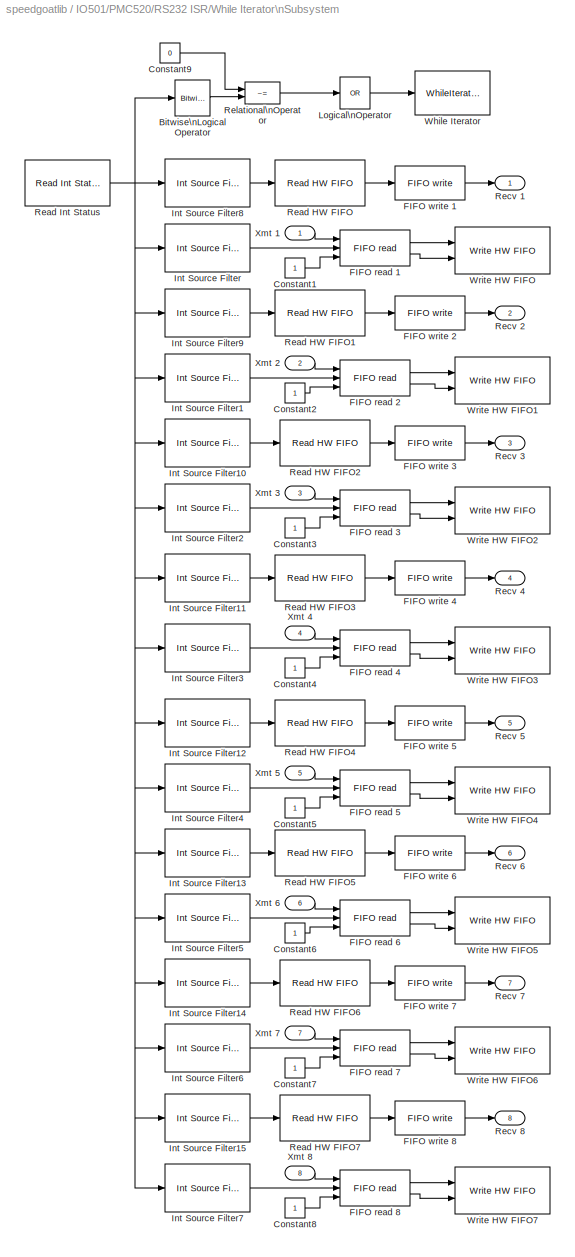
BLOCK [SubSystem] IO501/PMC520/RS232 ISR/While Iterator\nSubsystem
  FunctionWithSeparateData = off
  MaskHideContents = off
  MinAlgLoopOccurrences = off
  Opaque = off
  Ports = [8, 8]
  PropExecContextOutsideSubsystem = off
  RTWSystemCode = Auto
  RequestExecContextInheritance = off
  SID = 10
  TreatAsAtomicUnit = on
BLOCK [Reference] IO501/PMC520/RS232 ISR/While Iterator\nSubsystem/Bitwise\nLogical Operator  REF=simulink/Logic and Bit\nOperations/Bitwise\nOperator
  BitMask = 'FF'
  BitMaskRealWorld = Stored Integer
  NumInputPorts = 1
  Ports = [1, 1]
  SID = 19
  SourceBlock = simulink/Logic and Bit\nOperations/Bitwise\nOperator
  SourceType = Bitwise Operator
  UseBitMask = on
  logicop = AND
BLOCK [Constant] IO501/PMC520/RS232 ISR/While Iterator\nSubsystem/Constant1
  OutDataTypeMode = uint32
  OutDataTypeStr = uint32
  SID = 20
BLOCK [Constant] IO501/PMC520/RS232 ISR/While Iterator\nSubsystem/Constant2
  OutDataTypeMode = uint32
  OutDataTypeStr = uint32
  SID = 21
BLOCK [Constant] IO501/PMC520/RS232 ISR/While Iterator\nSubsystem/Constant3
  OutDataTypeMode = uint32
  OutDataTypeStr = uint32
  SID = 22
BLOCK [Constant] IO501/PMC520/RS232 ISR/While Iterator\nSubsystem/Constant4
  OutDataTypeMode = uint32
  OutDataTypeStr = uint32
  SID = 23
BLOCK [Constant] IO501/PMC520/RS232 ISR/While Iterator\nSubsystem/Constant5
  OutDataTypeMode = uint32
  OutDataTypeStr = uint32
  SID = 24
BLOCK [Constant] IO501/PMC520/RS232 ISR/While Iterator\nSubsystem/Constant6
  OutDataTypeMode = uint32
  OutDataTypeStr = uint32
  SID = 25
BLOCK [Constant] IO501/PMC520/RS232 ISR/While Iterator\nSubsystem/Constant7
  OutDataTypeMode = uint32
  OutDataTypeStr = uint32
  SID = 26
BLOCK [Constant] IO501/PMC520/RS232 ISR/While Iterator\nSubsystem/Constant8
  OutDataTypeMode = uint32
  OutDataTypeStr = uint32
  SID = 27
BLOCK [Constant] IO501/PMC520/RS232 ISR/While Iterator\nSubsystem/Constant9
  OutDataTypeMode = uint32
  OutDataTypeStr = uint32
  SID = 28
  Value = 0
BLOCK [Reference] IO501/PMC520/RS232 ISR/While Iterator\nSubsystem/FIFO read 1  REF=xpclib/RS232/FIFO read 
  Ports = [3, 2]
  SID = 29
  SourceBlock = xpclib/RS232/FIFO read
  SourceType = Asynchronous FIFO Block: reader
  delimiter = 13
  enable = on
  enableout = on
  maxsize = 60
  minsize = 1
  outputtype = count+32 bit uint
  sampletime = -1
  usedelimiter = off
BLOCK [Reference] IO501/PMC520/RS232 ISR/While Iterator\nSubsystem/FIFO read 2  REF=xpclib/RS232/FIFO read 
  Ports = [3, 2]
  SID = 30
  SourceBlock = xpclib/RS232/FIFO read
  SourceType = Asynchronous FIFO Block: reader
  delimiter = 13
  enable = on
  enableout = on
  maxsize = 60
  minsize = 1
  outputtype = count+32 bit uint
  sampletime = -1
  usedelimiter = off
BLOCK [Reference] IO501/PMC520/RS232 ISR/While Iterator\nSubsystem/FIFO read 3  REF=xpclib/RS232/FIFO read 
  Ports = [3, 2]
  SID = 31
  SourceBlock = xpclib/RS232/FIFO read
  SourceType = Asynchronous FIFO Block: reader
  delimiter = 13
  enable = on
  enableout = on
  maxsize = 60
  minsize = 1
  outputtype = count+32 bit uint
  sampletime = -1
  usedelimiter = off
BLOCK [Reference] IO501/PMC520/RS232 ISR/While Iterator\nSubsystem/FIFO read 4  REF=xpclib/RS232/FIFO read 
  Ports = [3, 2]
  SID = 32
  SourceBlock = xpclib/RS232/FIFO read
  SourceType = Asynchronous FIFO Block: reader
  delimiter = 13
  enable = on
  enableout = on
  maxsize = 60
  minsize = 1
  outputtype = count+32 bit uint
  sampletime = -1
  usedelimiter = off
BLOCK [Reference] IO501/PMC520/RS232 ISR/While Iterator\nSubsystem/FIFO read 5  REF=xpclib/RS232/FIFO read 
  Ports = [3, 2]
  SID = 33
  SourceBlock = xpclib/RS232/FIFO read
  SourceType = Asynchronous FIFO Block: reader
  delimiter = 13
  enable = on
  enableout = on
  maxsize = 60
  minsize = 1
  outputtype = count+32 bit uint
  sampletime = -1
  usedelimiter = off
BLOCK [Reference] IO501/PMC520/RS232 ISR/While Iterator\nSubsystem/FIFO read 6  REF=xpclib/RS232/FIFO read 
  Ports = [3, 2]
  SID = 34
  SourceBlock = xpclib/RS232/FIFO read
  SourceType = Asynchronous FIFO Block: reader
  delimiter = 13
  enable = on
  enableout = on
  maxsize = 60
  minsize = 1
  outputtype = count+32 bit uint
  sampletime = -1
  usedelimiter = off
BLOCK [Reference] IO501/PMC520/RS232 ISR/While Iterator\nSubsystem/FIFO read 7  REF=xpclib/RS232/FIFO read 
  Ports = [3, 2]
  SID = 35
  SourceBlock = xpclib/RS232/FIFO read
  SourceType = Asynchronous FIFO Block: reader
  delimiter = 13
  enable = on
  enableout = on
  maxsize = 60
  minsize = 1
  outputtype = count+32 bit uint
  sampletime = -1
  usedelimiter = off
BLOCK [Reference] IO501/PMC520/RS232 ISR/While Iterator\nSubsystem/FIFO read 8  REF=xpclib/RS232/FIFO read 
  Ports = [3, 2]
  SID = 36
  SourceBlock = xpclib/RS232/FIFO read
  SourceType = Asynchronous FIFO Block: reader
  delimiter = 13
  enable = on
  enableout = on
  maxsize = 60
  minsize = 1
  outputtype = count+32 bit uint
  sampletime = -1
  usedelimiter = off
BLOCK [Reference] IO501/PMC520/RS232 ISR/While Iterator\nSubsystem/FIFO write 1  REF=xpclib/RS232/FIFO write 
  Ports = [1, 1]
  SID = 37
  SourceBlock = xpclib/RS232/FIFO write
  SourceType = Asynchronous FIFO Block: writer
  id = RCV channel 1, IRQ 5
  inputtype = count+32 bit uint
  present = off
  sampletime = -1
  size = 1024
BLOCK [Reference] IO501/PMC520/RS232 ISR/While Iterator\nSubsystem/FIFO write 2  REF=xpclib/RS232/FIFO write 
  Ports = [1, 1]
  SID = 38
  SourceBlock = xpclib/RS232/FIFO write
  SourceType = Asynchronous FIFO Block: writer
  id = RCV channel 2, IRQ 5
  inputtype = count+32 bit uint
  present = off
  sampletime = -1
  size = 1024
BLOCK [Reference] IO501/PMC520/RS232 ISR/While Iterator\nSubsystem/FIFO write 3  REF=xpclib/RS232/FIFO write 
  Ports = [1, 1]
  SID = 39
  SourceBlock = xpclib/RS232/FIFO write
  SourceType = Asynchronous FIFO Block: writer
  id = RCV channel 3, IRQ 5
  inputtype = count+32 bit uint
  present = off
  sampletime = -1
  size = 1024
BLOCK [Reference] IO501/PMC520/RS232 ISR/While Iterator\nSubsystem/FIFO write 4  REF=xpclib/RS232/FIFO write 
  Ports = [1, 1]
  SID = 40
  SourceBlock = xpclib/RS232/FIFO write
  SourceType = Asynchronous FIFO Block: writer
  id = RCV channel 4, IRQ 5
  inputtype = count+32 bit uint
  present = off
  sampletime = -1
  size = 1024
BLOCK [Reference] IO501/PMC520/RS232 ISR/While Iterator\nSubsystem/FIFO write 5  REF=xpclib/RS232/FIFO write 
  Ports = [1, 1]
  SID = 41
  SourceBlock = xpclib/RS232/FIFO write
  SourceType = Asynchronous FIFO Block: writer
  id = RCV channel 5, IRQ 5
  inputtype = count+32 bit uint
  present = off
  sampletime = -1
  size = 1024
BLOCK [Reference] IO501/PMC520/RS232 ISR/While Iterator\nSubsystem/FIFO write 6  REF=xpclib/RS232/FIFO write 
  Ports = [1, 1]
  SID = 42
  SourceBlock = xpclib/RS232/FIFO write
  SourceType = Asynchronous FIFO Block: writer
  id = RCV channel 6, IRQ 5
  inputtype = count+32 bit uint
  present = off
  sampletime = -1
  size = 1024
BLOCK [Reference] IO501/PMC520/RS232 ISR/While Iterator\nSubsystem/FIFO write 7  REF=xpclib/RS232/FIFO write 
  Ports = [1, 1]
  SID = 43
  SourceBlock = xpclib/RS232/FIFO write
  SourceType = Asynchronous FIFO Block: writer
  id = RCV channel 7, IRQ 5
  inputtype = count+32 bit uint
  present = off
  sampletime = -1
  size = 1024
BLOCK [Reference] IO501/PMC520/RS232 ISR/While Iterator\nSubsystem/FIFO write 8  REF=xpclib/RS232/FIFO write 
  Ports = [1, 1]
  SID = 44
  SourceBlock = xpclib/RS232/FIFO write
  SourceType = Asynchronous FIFO Block: writer
  id = RCV channel 8, IRQ 5
  inputtype = count+32 bit uint
  present = off
  sampletime = -1
  size = 1024
BLOCK [Reference] IO501/PMC520/RS232 ISR/While Iterator\nSubsystem/Int Source Filter  REF=speedgoatlib/IO501/Acromag PMC520\nInternal blocks/Int Source Filter  (lib defined in mdl_2b10c7445f81, mdl_649b3eec89a6, +4 more)
  Ports = [1, 1]
  SID = 45
  SourceBlock = speedgoatlib/IO501/Acromag PMC520\nInternal blocks/Int Source Filter
  SourceType = int_source_filter_XR17D15x
  port = 1
  value = Transmitter empty
BLOCK [Reference] IO501/PMC520/RS232 ISR/While Iterator\nSubsystem/Int Source Filter1  REF=speedgoatlib/IO501/Acromag PMC520\nInternal blocks/Int Source Filter  (lib defined in mdl_2b10c7445f81, mdl_649b3eec89a6, +4 more)
  Ports = [1, 1]
  SID = 46
  SourceBlock = speedgoatlib/IO501/Acromag PMC520\nInternal blocks/Int Source Filter
  SourceType = int_source_filter_XR17D15x
  port = 2
  value = Transmitter empty
BLOCK [Reference] IO501/PMC520/RS232 ISR/While Iterator\nSubsystem/Int Source Filter10  REF=speedgoatlib/IO501/Acromag PMC520\nInternal blocks/Int Source Filter  (lib defined in mdl_2b10c7445f81, mdl_649b3eec89a6, +4 more)
  Ports = [1, 1]
  SID = 47
  SourceBlock = speedgoatlib/IO501/Acromag PMC520\nInternal blocks/Int Source Filter
  SourceType = int_source_filter_XR17D15x
  port = 3
  value = Receive data
BLOCK [Reference] IO501/PMC520/RS232 ISR/While Iterator\nSubsystem/Int Source Filter11  REF=speedgoatlib/IO501/Acromag PMC520\nInternal blocks/Int Source Filter  (lib defined in mdl_2b10c7445f81, mdl_649b3eec89a6, +4 more)
  Ports = [1, 1]
  SID = 48
  SourceBlock = speedgoatlib/IO501/Acromag PMC520\nInternal blocks/Int Source Filter
  SourceType = int_source_filter_XR17D15x
  port = 4
  value = Receive data
BLOCK [Reference] IO501/PMC520/RS232 ISR/While Iterator\nSubsystem/Int Source Filter12  REF=speedgoatlib/IO501/Acromag PMC520\nInternal blocks/Int Source Filter  (lib defined in mdl_2b10c7445f81, mdl_649b3eec89a6, +4 more)
  Ports = [1, 1]
  SID = 49
  SourceBlock = speedgoatlib/IO501/Acromag PMC520\nInternal blocks/Int Source Filter
  SourceType = int_source_filter_XR17D15x
  port = 5
  value = Receive data
BLOCK [Reference] IO501/PMC520/RS232 ISR/While Iterator\nSubsystem/Int Source Filter13  REF=speedgoatlib/IO501/Acromag PMC520\nInternal blocks/Int Source Filter  (lib defined in mdl_2b10c7445f81, mdl_649b3eec89a6, +4 more)
  Ports = [1, 1]
  SID = 50
  SourceBlock = speedgoatlib/IO501/Acromag PMC520\nInternal blocks/Int Source Filter
  SourceType = int_source_filter_XR17D15x
  port = 6
  value = Receive data
BLOCK [Reference] IO501/PMC520/RS232 ISR/While Iterator\nSubsystem/Int Source Filter14  REF=speedgoatlib/IO501/Acromag PMC520\nInternal blocks/Int Source Filter  (lib defined in mdl_2b10c7445f81, mdl_649b3eec89a6, +4 more)
  Ports = [1, 1]
  SID = 51
  SourceBlock = speedgoatlib/IO501/Acromag PMC520\nInternal blocks/Int Source Filter
  SourceType = int_source_filter_XR17D15x
  port = 7
  value = Receive data
BLOCK [Reference] IO501/PMC520/RS232 ISR/While Iterator\nSubsystem/Int Source Filter15  REF=speedgoatlib/IO501/Acromag PMC520\nInternal blocks/Int Source Filter  (lib defined in mdl_2b10c7445f81, mdl_649b3eec89a6, +4 more)
  Ports = [1, 1]
  SID = 52
  SourceBlock = speedgoatlib/IO501/Acromag PMC520\nInternal blocks/Int Source Filter
  SourceType = int_source_filter_XR17D15x
  port = 8
  value = Receive data
BLOCK [Reference] IO501/PMC520/RS232 ISR/While Iterator\nSubsystem/Int Source Filter2  REF=speedgoatlib/IO501/Acromag PMC520\nInternal blocks/Int Source Filter  (lib defined in mdl_2b10c7445f81, mdl_649b3eec89a6, +4 more)
  Ports = [1, 1]
  SID = 53
  SourceBlock = speedgoatlib/IO501/Acromag PMC520\nInternal blocks/Int Source Filter
  SourceType = int_source_filter_XR17D15x
  port = 3
  value = Transmitter empty
BLOCK [Reference] IO501/PMC520/RS232 ISR/While Iterator\nSubsystem/Int Source Filter3  REF=speedgoatlib/IO501/Acromag PMC520\nInternal blocks/Int Source Filter  (lib defined in mdl_2b10c7445f81, mdl_649b3eec89a6, +4 more)
  Ports = [1, 1]
  SID = 54
  SourceBlock = speedgoatlib/IO501/Acromag PMC520\nInternal blocks/Int Source Filter
  SourceType = int_source_filter_XR17D15x
  port = 4
  value = Transmitter empty
BLOCK [Reference] IO501/PMC520/RS232 ISR/While Iterator\nSubsystem/Int Source Filter4  REF=speedgoatlib/IO501/Acromag PMC520\nInternal blocks/Int Source Filter  (lib defined in mdl_2b10c7445f81, mdl_649b3eec89a6, +4 more)
  Ports = [1, 1]
  SID = 55
  SourceBlock = speedgoatlib/IO501/Acromag PMC520\nInternal blocks/Int Source Filter
  SourceType = int_source_filter_XR17D15x
  port = 5
  value = Transmitter empty
BLOCK [Reference] IO501/PMC520/RS232 ISR/While Iterator\nSubsystem/Int Source Filter5  REF=speedgoatlib/IO501/Acromag PMC520\nInternal blocks/Int Source Filter  (lib defined in mdl_2b10c7445f81, mdl_649b3eec89a6, +4 more)
  Ports = [1, 1]
  SID = 56
  SourceBlock = speedgoatlib/IO501/Acromag PMC520\nInternal blocks/Int Source Filter
  SourceType = int_source_filter_XR17D15x
  port = 6
  value = Transmitter empty
BLOCK [Reference] IO501/PMC520/RS232 ISR/While Iterator\nSubsystem/Int Source Filter6  REF=speedgoatlib/IO501/Acromag PMC520\nInternal blocks/Int Source Filter  (lib defined in mdl_2b10c7445f81, mdl_649b3eec89a6, +4 more)
  Ports = [1, 1]
  SID = 57
  SourceBlock = speedgoatlib/IO501/Acromag PMC520\nInternal blocks/Int Source Filter
  SourceType = int_source_filter_XR17D15x
  port = 7
  value = Transmitter empty
BLOCK [Reference] IO501/PMC520/RS232 ISR/While Iterator\nSubsystem/Int Source Filter7  REF=speedgoatlib/IO501/Acromag PMC520\nInternal blocks/Int Source Filter  (lib defined in mdl_2b10c7445f81, mdl_649b3eec89a6, +4 more)
  Ports = [1, 1]
  SID = 58
  SourceBlock = speedgoatlib/IO501/Acromag PMC520\nInternal blocks/Int Source Filter
  SourceType = int_source_filter_XR17D15x
  port = 8
  value = Transmitter empty
BLOCK [Reference] IO501/PMC520/RS232 ISR/While Iterator\nSubsystem/Int Source Filter8  REF=speedgoatlib/IO501/Acromag PMC520\nInternal blocks/Int Source Filter  (lib defined in mdl_2b10c7445f81, mdl_649b3eec89a6, +4 more)
  Ports = [1, 1]
  SID = 59
  SourceBlock = speedgoatlib/IO501/Acromag PMC520\nInternal blocks/Int Source Filter
  SourceType = int_source_filter_XR17D15x
  port = 1
  value = Receive data
BLOCK [Reference] IO501/PMC520/RS232 ISR/While Iterator\nSubsystem/Int Source Filter9  REF=speedgoatlib/IO501/Acromag PMC520\nInternal blocks/Int Source Filter  (lib defined in mdl_2b10c7445f81, mdl_649b3eec89a6, +4 more)
  Ports = [1, 1]
  SID = 60
  SourceBlock = speedgoatlib/IO501/Acromag PMC520\nInternal blocks/Int Source Filter
  SourceType = int_source_filter_XR17D15x
  port = 2
  value = Receive data
BLOCK [Logic] IO501/PMC520/RS232 ISR/While Iterator\nSubsystem/Logical\nOperator
  AllPortsSameDT = off
  Inputs = 1
  Operator = OR
  Ports = [1, 1]
  SID = 61
BLOCK [Reference] IO501/PMC520/RS232 ISR/While Iterator\nSubsystem/Read HW FIFO  REF=speedgoatlib/IO501/Acromag PMC520\nInternal blocks/Read HW FIFO  (lib defined in mdl_2b10c7445f81, mdl_649b3eec89a6, +4 more)
  Ports = [1, 1]
  SID = 62
  SourceBlock = speedgoatlib/IO501/Acromag PMC520\nInternal blocks/Read HW FIFO
  SourceType = read_hw_fifo_XR17D15x
  flush = on
  port = 1
  slot = subslot
BLOCK [Reference] IO501/PMC520/RS232 ISR/While Iterator\nSubsystem/Read HW FIFO1  REF=speedgoatlib/IO501/Acromag PMC520\nInternal blocks/Read HW FIFO  (lib defined in mdl_2b10c7445f81, mdl_649b3eec89a6, +4 more)
  Ports = [1, 1]
  SID = 63
  SourceBlock = speedgoatlib/IO501/Acromag PMC520\nInternal blocks/Read HW FIFO
  SourceType = read_hw_fifo_XR17D15x
  flush = on
  port = 2
  slot = subslot
BLOCK [Reference] IO501/PMC520/RS232 ISR/While Iterator\nSubsystem/Read HW FIFO2  REF=speedgoatlib/IO501/Acromag PMC520\nInternal blocks/Read HW FIFO  (lib defined in mdl_2b10c7445f81, mdl_649b3eec89a6, +4 more)
  Ports = [1, 1]
  SID = 64
  SourceBlock = speedgoatlib/IO501/Acromag PMC520\nInternal blocks/Read HW FIFO
  SourceType = read_hw_fifo_XR17D15x
  flush = on
  port = 3
  slot = subslot
BLOCK [Reference] IO501/PMC520/RS232 ISR/While Iterator\nSubsystem/Read HW FIFO3  REF=speedgoatlib/IO501/Acromag PMC520\nInternal blocks/Read HW FIFO  (lib defined in mdl_2b10c7445f81, mdl_649b3eec89a6, +4 more)
  Ports = [1, 1]
  SID = 65
  SourceBlock = speedgoatlib/IO501/Acromag PMC520\nInternal blocks/Read HW FIFO
  SourceType = read_hw_fifo_XR17D15x
  flush = on
  port = 4
  slot = subslot
BLOCK [Reference] IO501/PMC520/RS232 ISR/While Iterator\nSubsystem/Read HW FIFO4  REF=speedgoatlib/IO501/Acromag PMC520\nInternal blocks/Read HW FIFO  (lib defined in mdl_2b10c7445f81, mdl_649b3eec89a6, +4 more)
  Ports = [1, 1]
  SID = 66
  SourceBlock = speedgoatlib/IO501/Acromag PMC520\nInternal blocks/Read HW FIFO
  SourceType = read_hw_fifo_XR17D15x
  flush = on
  port = 5
  slot = subslot
BLOCK [Reference] IO501/PMC520/RS232 ISR/While Iterator\nSubsystem/Read HW FIFO5  REF=speedgoatlib/IO501/Acromag PMC520\nInternal blocks/Read HW FIFO  (lib defined in mdl_2b10c7445f81, mdl_649b3eec89a6, +4 more)
  Ports = [1, 1]
  SID = 67
  SourceBlock = speedgoatlib/IO501/Acromag PMC520\nInternal blocks/Read HW FIFO
  SourceType = read_hw_fifo_XR17D15x
  flush = on
  port = 6
  slot = subslot
BLOCK [Reference] IO501/PMC520/RS232 ISR/While Iterator\nSubsystem/Read HW FIFO6  REF=speedgoatlib/IO501/Acromag PMC520\nInternal blocks/Read HW FIFO  (lib defined in mdl_2b10c7445f81, mdl_649b3eec89a6, +4 more)
  Ports = [1, 1]
  SID = 68
  SourceBlock = speedgoatlib/IO501/Acromag PMC520\nInternal blocks/Read HW FIFO
  SourceType = read_hw_fifo_XR17D15x
  flush = on
  port = 7
  slot = subslot
BLOCK [Reference] IO501/PMC520/RS232 ISR/While Iterator\nSubsystem/Read HW FIFO7  REF=speedgoatlib/IO501/Acromag PMC520\nInternal blocks/Read HW FIFO  (lib defined in mdl_2b10c7445f81, mdl_649b3eec89a6, +4 more)
  Ports = [1, 1]
  SID = 69
  SourceBlock = speedgoatlib/IO501/Acromag PMC520\nInternal blocks/Read HW FIFO
  SourceType = read_hw_fifo_XR17D15x
  flush = on
  port = 8
  slot = subslot
BLOCK [Reference] IO501/PMC520/RS232 ISR/While Iterator\nSubsystem/Read Int Status  REF=speedgoatlib/IO501/Acromag PMC520\nInternal blocks/Read Int Status  (lib defined in mdl_2b10c7445f81, mdl_649b3eec89a6, +4 more)
  Ports = [0, 1]
  SID = 70
  SourceBlock = speedgoatlib/IO501/Acromag PMC520\nInternal blocks/Read Int Status
  SourceType = read_int_status_XR17D15x
  slot = subslot
BLOCK [Outport] IO501/PMC520/RS232 ISR/While Iterator\nSubsystem/Recv 1
  IconDisplay = Port number
  SID = 81
BLOCK [Outport] IO501/PMC520/RS232 ISR/While Iterator\nSubsystem/Recv 2
  IconDisplay = Port number
  Port = 2
  SID = 82
BLOCK [Outport] IO501/PMC520/RS232 ISR/While Iterator\nSubsystem/Recv 3
  IconDisplay = Port number
  Port = 3
  SID = 83
BLOCK [Outport] IO501/PMC520/RS232 ISR/While Iterator\nSubsystem/Recv 4
  IconDisplay = Port number
  Port = 4
  SID = 84
BLOCK [Outport] IO501/PMC520/RS232 ISR/While Iterator\nSubsystem/Recv 5
  IconDisplay = Port number
  Port = 5
  SID = 85
BLOCK [Outport] IO501/PMC520/RS232 ISR/While Iterator\nSubsystem/Recv 6
  IconDisplay = Port number
  Port = 6
  SID = 86
BLOCK [Outport] IO501/PMC520/RS232 ISR/While Iterator\nSubsystem/Recv 7
  IconDisplay = Port number
  Port = 7
  SID = 87
BLOCK [Outport] IO501/PMC520/RS232 ISR/While Iterator\nSubsystem/Recv 8
  IconDisplay = Port number
  Port = 8
  SID = 88
BLOCK [RelationalOperator] IO501/PMC520/RS232 ISR/While Iterator\nSubsystem/Relational\nOperator
  InputSameDT = off
  Operator = ~=
  Ports = [2, 1]
  SID = 71
BLOCK [WhileIterator] IO501/PMC520/RS232 ISR/While Iterator\nSubsystem/While Iterator
  MaxIters = 65
  Ports = [1]
  SID = 72
  WhileBlockType = do-while
BLOCK [Reference] IO501/PMC520/RS232 ISR/While Iterator\nSubsystem/Write HW FIFO  REF=speedgoatlib/IO501/Acromag PMC520\nInternal blocks/Write HW FIFO  (lib defined in mdl_2b10c7445f81, mdl_649b3eec89a6, +4 more)
  Ports = [2]
  SID = 73
  SourceBlock = speedgoatlib/IO501/Acromag PMC520\nInternal blocks/Write HW FIFO
  SourceType = write_hw_fifo_XR17D15x
  port = 1
  slot = subslot
BLOCK [Reference] IO501/PMC520/RS232 ISR/While Iterator\nSubsystem/Write HW FIFO1  REF=speedgoatlib/IO501/Acromag PMC520\nInternal blocks/Write HW FIFO  (lib defined in mdl_2b10c7445f81, mdl_649b3eec89a6, +4 more)
  Ports = [2]
  SID = 74
  SourceBlock = speedgoatlib/IO501/Acromag PMC520\nInternal blocks/Write HW FIFO
  SourceType = write_hw_fifo_XR17D15x
  port = 2
  slot = subslot
BLOCK [Reference] IO501/PMC520/RS232 ISR/While Iterator\nSubsystem/Write HW FIFO2  REF=speedgoatlib/IO501/Acromag PMC520\nInternal blocks/Write HW FIFO  (lib defined in mdl_2b10c7445f81, mdl_649b3eec89a6, +4 more)
  Ports = [2]
  SID = 75
  SourceBlock = speedgoatlib/IO501/Acromag PMC520\nInternal blocks/Write HW FIFO
  SourceType = write_hw_fifo_XR17D15x
  port = 3
  slot = subslot
BLOCK [Reference] IO501/PMC520/RS232 ISR/While Iterator\nSubsystem/Write HW FIFO3  REF=speedgoatlib/IO501/Acromag PMC520\nInternal blocks/Write HW FIFO  (lib defined in mdl_2b10c7445f81, mdl_649b3eec89a6, +4 more)
  Ports = [2]
  SID = 76
  SourceBlock = speedgoatlib/IO501/Acromag PMC520\nInternal blocks/Write HW FIFO
  SourceType = write_hw_fifo_XR17D15x
  port = 4
  slot = subslot
BLOCK [Reference] IO501/PMC520/RS232 ISR/While Iterator\nSubsystem/Write HW FIFO4  REF=speedgoatlib/IO501/Acromag PMC520\nInternal blocks/Write HW FIFO  (lib defined in mdl_2b10c7445f81, mdl_649b3eec89a6, +4 more)
  Ports = [2]
  SID = 77
  SourceBlock = speedgoatlib/IO501/Acromag PMC520\nInternal blocks/Write HW FIFO
  SourceType = write_hw_fifo_XR17D15x
  port = 5
  slot = subslot
BLOCK [Reference] IO501/PMC520/RS232 ISR/While Iterator\nSubsystem/Write HW FIFO5  REF=speedgoatlib/IO501/Acromag PMC520\nInternal blocks/Write HW FIFO  (lib defined in mdl_2b10c7445f81, mdl_649b3eec89a6, +4 more)
  Ports = [2]
  SID = 78
  SourceBlock = speedgoatlib/IO501/Acromag PMC520\nInternal blocks/Write HW FIFO
  SourceType = write_hw_fifo_XR17D15x
  port = 6
  slot = subslot
BLOCK [Reference] IO501/PMC520/RS232 ISR/While Iterator\nSubsystem/Write HW FIFO6  REF=speedgoatlib/IO501/Acromag PMC520\nInternal blocks/Write HW FIFO  (lib defined in mdl_2b10c7445f81, mdl_649b3eec89a6, +4 more)
  Ports = [2]
  SID = 79
  SourceBlock = speedgoatlib/IO501/Acromag PMC520\nInternal blocks/Write HW FIFO
  SourceType = write_hw_fifo_XR17D15x
  port = 7
  slot = subslot
BLOCK [Reference] IO501/PMC520/RS232 ISR/While Iterator\nSubsystem/Write HW FIFO7  REF=speedgoatlib/IO501/Acromag PMC520\nInternal blocks/Write HW FIFO  (lib defined in mdl_2b10c7445f81, mdl_649b3eec89a6, +4 more)
  Ports = [2]
  SID = 80
  SourceBlock = speedgoatlib/IO501/Acromag PMC520\nInternal blocks/Write HW FIFO
  SourceType = write_hw_fifo_XR17D15x
  port = 8
  slot = subslot
BLOCK [Inport] IO501/PMC520/RS232 ISR/While Iterator\nSubsystem/Xmt 1
  IconDisplay = Port number
  SID = 11
BLOCK [Inport] IO501/PMC520/RS232 ISR/While Iterator\nSubsystem/Xmt 2
  IconDisplay = Port number
  Port = 2
  SID = 12
BLOCK [Inport] IO501/PMC520/RS232 ISR/While Iterator\nSubsystem/Xmt 3
  IconDisplay = Port number
  Port = 3
  SID = 13
BLOCK [Inport] IO501/PMC520/RS232 ISR/While Iterator\nSubsystem/Xmt 4
  IconDisplay = Port number
  Port = 4
  SID = 14
BLOCK [Inport] IO501/PMC520/RS232 ISR/While Iterator\nSubsystem/Xmt 5
  IconDisplay = Port number
  Port = 5
  SID = 15
BLOCK [Inport] IO501/PMC520/RS232 ISR/While Iterator\nSubsystem/Xmt 6
  IconDisplay = Port number
  Port = 6
  SID = 16
BLOCK [Inport] IO501/PMC520/RS232 ISR/While Iterator\nSubsystem/Xmt 7
  IconDisplay = Port number
  Port = 7
  SID = 17
BLOCK [Inport] IO501/PMC520/RS232 ISR/While Iterator\nSubsystem/Xmt 8
  IconDisplay = Port number
  Port = 8
  SID = 18
BLOCK [Inport] IO501/PMC520/RS232 ISR/Xmt 1
  IconDisplay = Port number
  SID = 1
BLOCK [Inport] IO501/PMC520/RS232 ISR/Xmt 2
  IconDisplay = Port number
  Port = 2
  SID = 2
BLOCK [Inport] IO501/PMC520/RS232 ISR/Xmt 3
  IconDisplay = Port number
  Port = 3
  SID = 3
BLOCK [Inport] IO501/PMC520/RS232 ISR/Xmt 4
  IconDisplay = Port number
  Port = 4
  SID = 4
BLOCK [Inport] IO501/PMC520/RS232 ISR/Xmt 5
  IconDisplay = Port number
  Port = 5
  SID = 5
BLOCK [Inport] IO501/PMC520/RS232 ISR/Xmt 6
  IconDisplay = Port number
  Port = 6
  SID = 6
BLOCK [Inport] IO501/PMC520/RS232 ISR/Xmt 7
  IconDisplay = Port number
  Port = 7
  SID = 7
BLOCK [Inport] IO501/PMC520/RS232 ISR/Xmt 8
  IconDisplay = Port number
  Port = 8
  SID = 8
BLOCK [TriggerPort] IO501/PMC520/RS232 ISR/function
  Ports = []
  SID = 9
  StatesWhenEnabling = held
  TriggerType = function-call
BLOCK [RateTransition] IO501/PMC520/Rate Transition
  Deterministic = off
  Integrity = off
  SID = 28
BLOCK [RateTransition] IO501/PMC520/Rate Transition1
  Deterministic = off
  Integrity = off
  OutPortSampleTime = 0
  SID = 29
BLOCK [RateTransition] IO501/PMC520/Rate Transition10
  Deterministic = off
  Integrity = off
  SID = 30
BLOCK [RateTransition] IO501/PMC520/Rate Transition11
  Deterministic = off
  Integrity = off
  SID = 31
BLOCK [RateTransition] IO501/PMC520/Rate Transition12
  Deterministic = off
  Integrity = off
  OutPortSampleTime = 0
  SID = 32
BLOCK [RateTransition] IO501/PMC520/Rate Transition13
  Deterministic = off
  Integrity = off
  OutPortSampleTime = 0
  SID = 33
BLOCK [RateTransition] IO501/PMC520/Rate Transition14
  Deterministic = off
  Integrity = off
  OutPortSampleTime = 0
  SID = 34
BLOCK [RateTransition] IO501/PMC520/Rate Transition15
  Deterministic = off
  Integrity = off
  OutPortSampleTime = 0
  SID = 35
BLOCK [RateTransition] IO501/PMC520/Rate Transition2
  Deterministic = off
  Integrity = off
  SID = 36
BLOCK [RateTransition] IO501/PMC520/Rate Transition3
  Deterministic = off
  Integrity = off
  OutPortSampleTime = 0
  SID = 37
BLOCK [RateTransition] IO501/PMC520/Rate Transition4
  Deterministic = off
  Integrity = off
  SID = 38
BLOCK [RateTransition] IO501/PMC520/Rate Transition5
  Deterministic = off
  Integrity = off
  SID = 39
BLOCK [RateTransition] IO501/PMC520/Rate Transition6
  Deterministic = off
  Integrity = off
  OutPortSampleTime = 0
  SID = 40
BLOCK [RateTransition] IO501/PMC520/Rate Transition7
  Deterministic = off
  Integrity = off
  OutPortSampleTime = 0
  SID = 41
BLOCK [RateTransition] IO501/PMC520/Rate Transition8
  Deterministic = off
  Integrity = off
  SID = 42
BLOCK [RateTransition] IO501/PMC520/Rate Transition9
  Deterministic = off
  Integrity = off
  SID = 43
BLOCK [Reference] IO501/PMC520/Setup1  REF=speedgoatlib/IO501/Acromag PMC520\nInternal blocks/Setup   (lib defined in mdl_2b10c7445f81, mdl_649b3eec89a6, +4 more)
  Ports = []
  SID = 44
  SourceBlock = speedgoatlib/IO501/Acromag PMC520\nInternal blocks/Setup
  SourceType = setup_XR17D15x
  bauddivisor = 1
  baudrate = 115200
  ctsmode = none
  mode8x = 16x (standard)
  nstop = 1
  parity = None
  port = 1
  prescale = off
  rlevel = 1
  rs485delay = 0
  rs485mode = off
  slot = brdslot
  standard = on
  width = 8
  xoff = 19
  xon = 17
  xonoff = none
BLOCK [Reference] IO501/PMC520/Setup2  REF=speedgoatlib/IO501/Acromag PMC520\nInternal blocks/Setup   (lib defined in mdl_2b10c7445f81, mdl_649b3eec89a6, +4 more)
  Ports = []
  SID = 45
  SourceBlock = speedgoatlib/IO501/Acromag PMC520\nInternal blocks/Setup
  SourceType = setup_XR17D15x
  bauddivisor = 1
  baudrate = 115200
  ctsmode = none
  mode8x = 16x (standard)
  nstop = 1
  parity = None
  port = 2
  prescale = off
  rlevel = 1
  rs485delay = 0
  rs485mode = off
  slot = brdslot
  standard = on
  width = 8
  xoff = 19
  xon = 17
  xonoff = none
BLOCK [Reference] IO501/PMC520/Setup3  REF=speedgoatlib/IO501/Acromag PMC520\nInternal blocks/Setup   (lib defined in mdl_2b10c7445f81, mdl_649b3eec89a6, +4 more)
  Ports = []
  SID = 46
  SourceBlock = speedgoatlib/IO501/Acromag PMC520\nInternal blocks/Setup
  SourceType = setup_XR17D15x
  bauddivisor = 1
  baudrate = 115200
  ctsmode = none
  mode8x = 16x (standard)
  nstop = 1
  parity = None
  port = 3
  prescale = off
  rlevel = half full (32)
  rs485delay = 0
  rs485mode = off
  slot = brdslot
  standard = on
  width = 8
  xoff = 19
  xon = 17
  xonoff = none
BLOCK [Reference] IO501/PMC520/Setup4  REF=speedgoatlib/IO501/Acromag PMC520\nInternal blocks/Setup   (lib defined in mdl_2b10c7445f81, mdl_649b3eec89a6, +4 more)
  Ports = []
  SID = 47
  SourceBlock = speedgoatlib/IO501/Acromag PMC520\nInternal blocks/Setup
  SourceType = setup_XR17D15x
  bauddivisor = 1
  baudrate = 115200
  ctsmode = none
  mode8x = 16x (standard)
  nstop = 1
  parity = None
  port = 4
  prescale = off
  rlevel = half full (32)
  rs485delay = 0
  rs485mode = off
  slot = brdslot
  standard = on
  width = 8
  xoff = 19
  xon = 17
  xonoff = none
BLOCK [Reference] IO501/PMC520/Setup5  REF=speedgoatlib/IO501/Acromag PMC520\nInternal blocks/Setup   (lib defined in mdl_2b10c7445f81, mdl_649b3eec89a6, +4 more)
  Ports = []
  SID = 48
  SourceBlock = speedgoatlib/IO501/Acromag PMC520\nInternal blocks/Setup
  SourceType = setup_XR17D15x
  bauddivisor = 1
  baudrate = 115200
  ctsmode = none
  mode8x = 16x (standard)
  nstop = 1
  parity = None
  port = 5
  prescale = off
  rlevel = 1
  rs485delay = 0
  rs485mode = off
  slot = brdslot
  standard = on
  width = 8
  xoff = 19
  xon = 17
  xonoff = none
BLOCK [Reference] IO501/PMC520/Setup6  REF=speedgoatlib/IO501/Acromag PMC520\nInternal blocks/Setup   (lib defined in mdl_2b10c7445f81, mdl_649b3eec89a6, +4 more)
  Ports = []
  SID = 49
  SourceBlock = speedgoatlib/IO501/Acromag PMC520\nInternal blocks/Setup
  SourceType = setup_XR17D15x
  bauddivisor = 1
  baudrate = 115200
  ctsmode = none
  mode8x = 16x (standard)
  nstop = 1
  parity = None
  port = 6
  prescale = off
  rlevel = 1
  rs485delay = 0
  rs485mode = off
  slot = brdslot
  standard = on
  width = 8
  xoff = 19
  xon = 17
  xonoff = none
BLOCK [Reference] IO501/PMC520/Setup7  REF=speedgoatlib/IO501/Acromag PMC520\nInternal blocks/Setup   (lib defined in mdl_2b10c7445f81, mdl_649b3eec89a6, +4 more)
  Ports = []
  SID = 50
  SourceBlock = speedgoatlib/IO501/Acromag PMC520\nInternal blocks/Setup
  SourceType = setup_XR17D15x
  bauddivisor = 1
  baudrate = 115200
  ctsmode = none
  mode8x = 16x (standard)
  nstop = 1
  parity = None
  port = 7
  prescale = off
  rlevel = 1
  rs485delay = 0
  rs485mode = off
  slot = brdslot
  standard = on
  width = 8
  xoff = 19
  xon = 17
  xonoff = none
BLOCK [Reference] IO501/PMC520/Setup8  REF=speedgoatlib/IO501/Acromag PMC520\nInternal blocks/Setup   (lib defined in mdl_2b10c7445f81, mdl_649b3eec89a6, +4 more)
  Ports = []
  SID = 51
  SourceBlock = speedgoatlib/IO501/Acromag PMC520\nInternal blocks/Setup
  SourceType = setup_XR17D15x
  bauddivisor = 1
  baudrate = 115200
  ctsmode = none
  mode8x = 16x (standard)
  nstop = 1
  parity = None
  port = 8
  prescale = off
  rlevel = 1
  rs485delay = 0
  rs485mode = off
  slot = brdslot
  standard = on
  width = 8
  xoff = 19
  xon = 17
  xonoff = none
BLOCK [SubSystem] IO502
  FunctionWithSeparateData = off
  MaskHideContents = off
  MinAlgLoopOccurrences = off
  Opaque = off
  Ports = []
  PropExecContextOutsideSubsystem = off
  RTWSystemCode = Auto
  RequestExecContextInheritance = off
  SID = 48
BLOCK [SubSystem] IO502/Acromag PMC521\nInternal blocks
  FunctionWithSeparateData = off
  MaskHideContents = off
  MinAlgLoopOccurrences = off
  Opaque = off
  Ports = []
  PropExecContextOutsideSubsystem = off
  RTWSystemCode = Auto
  RequestExecContextInheritance = off
  SID = 97
BLOCK [S-Function] IO502/Acromag PMC521\nInternal blocks/Board Setup
  EnableBusSupport = off
  FunctionName = board_setup_XR17D15x
  MaskCallbackString = ||
  MaskDescription = PMC521\nAcromag\nBoard Setup\n
  MaskDisplay = disp('PMC521\\nAcromag\\nBoard Setup');
  MaskEnableString = on,on,on
  MaskHelp = helpview(fullfile(docroot, 'mapfiles', 'xpc.map'), 'Commtech_422335_IntChk')
  MaskIconFrame = on
  MaskIconOpaque = on
  MaskIconRotate = none
  MaskIconUnits = autoscale
  MaskInitialization = \n
  MaskPortRotate = default
  MaskPromptString = Reference Freq (standard = 14745600)   (6 Mhz <= F <= 50 Mhz)|IRQ Line Number|PCI slot: (-1 for autosearch)
  MaskSelfModifiable = on
  MaskStyleString = edit,popup(5|6|7|8|9|10|11|12|13|14|15),edit
  MaskToolTipString = on,on,on
  MaskTunableValueString = on,on,on
  MaskType = board_setup_XR17D15x
  MaskValueString = 14745600|5|-1
  MaskVariables = reffreq=@1;irqnum=@2;slot=@3;
  MaskVisibilityString = on,on,on
  Parameters = slot, irqnum+4, 101, reffreq
  Ports = []
  SID = 101
BLOCK [S-Function] IO502/Acromag PMC521\nInternal blocks/Disable Transmitter 1
  EnableBusSupport = off
  FunctionName = RxD_enable_PMC521_XR17D15x
  MaskCallbackString = |
  MaskDescription = PMC521	\nAcromag\nEnable TX Interrupt\n
  MaskDisplay = disp('PMC521\\nAcromag\\nDisable Transmitter');\nport_label('input', 1, 'E');\n
  MaskEnableString = on,on
  MaskHelp = helpview(fullfile(docroot, 'mapfiles', 'xpc.map'), 'FC422335_Enable_Int')
  MaskIconFrame = on
  MaskIconOpaque = on
  MaskIconRotate = none
  MaskIconUnits = autoscale
  MaskInitialization = \n
  MaskPortRotate = default
  MaskPromptString = Port:|PCI slot: (-1 for autosearch)
  MaskSelfModifiable = on
  MaskStyleString = popup(1|2|3|4|5|6|7|8),edit
  MaskToolTipString = on,on
  MaskTunableValueString = on,on
  MaskType = tx_int_enable_XR17D15x
  MaskValueString = 1|-1
  MaskVariables = port=@1;slot=@2;
  MaskVisibilityString = on,on
  Parameters = slot, port, 101
  Ports = [1]
  SID = 102
BLOCK [S-Function] IO502/Acromag PMC521\nInternal blocks/Enable TX 
  EnableBusSupport = off
  FunctionName = tx_int_enable_XR17D15x
  MaskCallbackString = |
  MaskDescription = PMC521	\nAcromag\nEnable TX Interrupt\n
  MaskDisplay = disp('PMC521\\nAcromag\\nEnable TX int');\nport_label('input', 1, 'E');\n
  MaskEnableString = on,on
  MaskHelp = helpview(fullfile(docroot, 'mapfiles', 'xpc.map'), 'FC422335_Enable_Int')
  MaskIconFrame = on
  MaskIconOpaque = on
  MaskIconRotate = none
  MaskIconUnits = autoscale
  MaskInitialization = \n
  MaskPortRotate = default
  MaskPromptString = Port:|PCI slot: (-1 for autosearch)
  MaskSelfModifiable = on
  MaskStyleString = popup(1|2|3|4|5|6|7|8),edit
  MaskToolTipString = on,on
  MaskTunableValueString = on,on
  MaskType = tx_int_enable_XR17D15x
  MaskValueString = 1|-1
  MaskVariables = port=@1;slot=@2;
  MaskVisibilityString = on,on
  Parameters = slot, port, 101
  Ports = [1]
  SID = 103
BLOCK [S-Function] IO502/Acromag PMC521\nInternal blocks/Enhanced Write HW FIFO 1
  EnableBusSupport = off
  FunctionName = write_hw_fifo_PMC521_XR17D15x
  MaskCallbackString = ||
  MaskDescription = PMC521\nAcromag\nWrite Hardware FIFO\n
  MaskDisplay = disp('PMC521\\nAcromag\\nEnhanced Write HW FIFO');\nport_label('input', 1, 'D');\nport_label('input', 2, 'E');
  MaskEnableString = on,on,on
  MaskHelp = helpview(fullfile(docroot, 'mapfiles', 'xpc.map'), 'FC422335_Write_HW')
  MaskIconFrame = on
  MaskIconOpaque = on
  MaskIconRotate = none
  MaskIconUnits = autoscale
  MaskPortRotate = default
  MaskPromptString = Port:|Enable transmitter at entry|PCI slot: (-1 for autosearch)
  MaskSelfModifiable = on
  MaskStyleString = popup(1|2|3|4|5|6|7|8),checkbox,edit
  MaskToolTipString = on,on,on
  MaskTunableValueString = on,on,on
  MaskType = write_hw_fifo_XR17D15x
  MaskValueString = 1|on|-1
  MaskVariables = port=@1;halfduplex=@2;slot=@3;
  MaskVisibilityString = on,on,on
  Parameters = slot, port, 101, halfduplex
  Ports = [2]
  SID = 104
BLOCK [S-Function] IO502/Acromag PMC521\nInternal blocks/Int Source Filter
  EnableBusSupport = off
  FunctionName = int_source_filter_XR17D15x
  MaskCallbackString = |
  MaskDescription = PMC521\nAcromag\nInterrupt Source Filter\n
  MaskDisplay = disp('PMC521\\nAcromag\\nInt Source Filter');\nport_label('input', 1, 'S' );\nport_label('output', 1, 'E' );\n
  MaskEnableString = on,on
  MaskHelp = helpview(fullfile(docroot, 'mapfiles', 'xpc.map'), 'FC422335_Filter_Ints')
  MaskIconFrame = on
  MaskIconOpaque = on
  MaskIconRotate = none
  MaskIconUnits = autoscale
  MaskInitialization = \n
  MaskPortRotate = default
  MaskPromptString = Port:|Filter value:
  MaskSelfModifiable = on
  MaskStyleString = popup(1|2|3|4|5|6|7|8),popup(Receive data|Transmitter empty|Modem status change)
  MaskToolTipString = on,on
  MaskTunableValueString = on,on
  MaskType = int_source_filter_XR17D15x
  MaskValueString = 1|Receive data
  MaskVariables = port=@1;value=@2;
  MaskVisibilityString = on,on
  Parameters = port, 101, value
  Ports = [1, 1]
  SID = 105
BLOCK [S-Function] IO502/Acromag PMC521\nInternal blocks/Read HW FIFO
  EnableBusSupport = off
  FunctionName = read_hw_fifo_XR17D15x
  MaskCallbackString = ||
  MaskDescription = PMC521\nAcromag\nRead Hardware FIFO\n
  MaskDisplay = disp('PMC521\\nAcromag\\nRead HW FIFO');\nport_label('input', 1, 'E');\nport_label('output', 1, 'D');
  MaskEnableString = on,on,on
  MaskHelp = helpview(fullfile(docroot, 'mapfiles', 'xpc.map'), 'FC422335_Read_HW')
  MaskIconFrame = on
  MaskIconOpaque = on
  MaskIconRotate = none
  MaskIconUnits = autoscale
  MaskPortRotate = default
  MaskPromptString = Port:|Flush HW FIFO on startup|PCI slot: (-1 for autosearch)
  MaskSelfModifiable = on
  MaskStyleString = popup(1|2|3|4|5|6|7|8),checkbox,edit
  MaskToolTipString = on,on,on
  MaskTunableValueString = on,on,on
  MaskType = read_hw_fifo_XR17D15x
  MaskValueString = 1|on|-1
  MaskVariables = port=@1;flush=@2;slot=@3;
  MaskVisibilityString = on,on,on
  Parameters = slot, port, 101, flush
  Ports = [1, 1]
  SID = 106
BLOCK [S-Function] IO502/Acromag PMC521\nInternal blocks/Read Int Status
  EnableBusSupport = off
  FunctionName = read_int_status_XR17D15x
  MaskDescription = PMC521\nAcromag\nRead Interrupt Status\n
  MaskDisplay = disp('PMC521\\nAcromag\\nRead Int Status');\nport_label('output', 1, 'S' );\n
  MaskEnableString = on
  MaskHelp = helpview(fullfile(docroot, 'mapfiles', 'xpc.map'), 'Commtech_422335_Interrupt_Query')
  MaskIconFrame = on
  MaskIconOpaque = on
  MaskIconRotate = none
  MaskIconUnits = autoscale
  MaskPortRotate = default
  MaskPromptString = PCI slot: (-1 for autosearch)
  MaskSelfModifiable = on
  MaskStyleString = edit
  MaskToolTipString = on
  MaskTunableValueString = on
  MaskType = read_int_status_XR17D15x
  MaskValueString = -1
  MaskVariables = slot=@1;
  MaskVisibilityString = on
  Parameters = slot, 101
  Ports = [0, 1]
  SID = 107
BLOCK [S-Function] IO502/Acromag PMC521\nInternal blocks/Setup 
  EnableBusSupport = off
  FunctionName = setup_XR17D15x
  MaskCallbackString = ||||||||||||||||
  MaskDescription = PMC521\nAcromag\nSetup\n
  MaskDisplay = disp('PMC521\\nAcromag\\nSetup');
  MaskEnableString = on,on,on,on,on,on,on,on,on,on,on,on,on,on,on,on,on
  MaskHelp = helpview(fullfile(docroot, 'mapfiles', 'xpc.map'), 'FC422335_Setup')
  MaskIconFrame = on
  MaskIconOpaque = on
  MaskIconRotate = none
  MaskIconUnits = autoscale
  MaskInitialization = \n
  MaskPortRotate = default
  MaskPromptString = Port:|Use standard reference and rates|Baud rate (using standard reference):|Baud Divisor (1 to 65535, custom rate):|Sampling rate:|Prescale (Divide reference by 4)|Number of data bits:|Number of stop bits:|Parity:|Receive trigger level:|Hardware handshake:|Software handshake:|XON character:|XOFF character:|RS485 auto turnaround|RS485 turnaround delay:|PCI slot: (-1 for autosearch)
  MaskSelfModifiable = on
  MaskStyleString = edit,checkbox,popup(921600|460800|230400|115200|57600|38400|19200|9600|4800|2400|1200|600|300|110),edit,popup(8x|16x (standard)),checkbox,popup(5|6|7|8),popup(1|2),popup(None|Even|Odd|Mark|Space),popup(1|quarter full (16)|half full (32)|almost full (56)),popup(RTS/CTS|DTR/DSR|none),popup(XON/XOFF|none),edit,edit,checkbox,edit,edit
  MaskToolTipString = on,on,on,on,on,on,on,on,on,on,on,on,on,on,on,on,on
  MaskTunableValueString = on,on,on,on,on,on,on,on,on,on,on,on,on,on,on,on,on
  MaskType = setup_XR17D15x
  MaskValueString = 1|on|115200|1|16x (standard)|off|8|1|None|1|none|none|17|19|off|0|-1
  MaskVariables = port=@1;standard=@2;baudrate=@3;bauddivisor=@4;mode8x=@5;prescale=@6;width=@7;nstop=@8;parity=@9;rlevel=@10;ctsmode=@11;xonoff=@12;xon=@13;xoff=@14;rs485mode=@15;rs485delay=@16;slot=@17;
  MaskVisibilityString = on,on,on,on,on,on,on,on,on,on,on,on,on,on,on,on,on
  Parameters = slot, 101, port, standard, baudrate, bauddivisor, mode8x, prescale, width, nstop, parity, rlevel, ctsmode, xonoff, xon, xoff, rs485mode, rs485delay
  Ports = []
  SID = 108
BLOCK [S-Function] IO502/Acromag PMC521\nInternal blocks/Setup 2
  EnableBusSupport = off
  FunctionName = setup_PMC521_XR17D15x
  MaskCallbackString = ||||||||||||||||||
  MaskDescription = PMC521\nAcromag\nSetup\n
  MaskDisplay = disp('PMC521\\nAcromag\\nEnhanced Setup');
  MaskEnableString = on,on,on,on,on,on,on,on,on,on,on,on,on,on,on,on,on,on,on
  MaskHelp = helpview(fullfile(docroot, 'mapfiles', 'xpc.map'), 'FC422335_Setup')
  MaskIconFrame = on
  MaskIconOpaque = on
  MaskIconRotate = none
  MaskIconUnits = autoscale
  MaskInitialization = \n
  MaskPortRotate = default
  MaskPromptString = Port:|Use standard reference and rates|Baud rate (using standard reference):|Baud Divisor (1 to 65535, custom rate):|Sampling rate:|Prescale (Divide reference by 4)|Number of data bits:|Number of stop bits:|Parity:|Receive trigger level:|Hardware handshake:|Software handshake:|XON character:|XOFF character:|RS485 auto turnaround|RS485 turnaround delay:|Enable receive FIFO interrupts|Enable transmi...<+34ch>
  MaskSelfModifiable = on
  MaskStyleString = edit,checkbox,popup(921600|460800|230400|115200|57600|38400|19200|9600|4800|2400|1200|600|300|110),edit,popup(8x|16x (standard)),checkbox,popup(5|6|7|8),popup(1|2),popup(None|Even|Odd|Mark|Space),popup(1|quarter full (16)|half full (32)|almost full (56)),popup(RTS/CTS|DTR/DSR|none),popup(XON/XOFF|none),edit,edit,checkbox,edit,checkbox,checkbox,edit
  MaskToolTipString = on,on,on,on,on,on,on,on,on,on,on,on,on,on,on,on,on,on,on
  MaskTunableValueString = on,on,on,on,on,on,on,on,on,on,on,on,on,on,on,on,on,on,on
  MaskType = setup_XR17D15x
  MaskValueString = 1|on|115200|1|16x (standard)|off|8|1|None|1|none|none|17|19|off|0|on|on|-1
  MaskVariables = port=@1;standard=@2;baudrate=@3;bauddivisor=@4;mode8x=@5;prescale=@6;width=@7;nstop=@8;parity=@9;rlevel=@10;ctsmode=@11;xonoff=@12;xon=@13;xoff=@14;rs485mode=@15;rs485delay=@16;recint=@17;mcrrts=@18;slot=@19;
  MaskVisibilityString = on,on,on,on,on,on,on,on,on,on,on,on,on,on,on,on,on,on,on
  Parameters = slot, 101, port, standard, baudrate, bauddivisor, mode8x, prescale, width, nstop, parity, rlevel, ctsmode, xonoff, xon, xoff, rs485mode, rs485delay, recint, mcrrts
  Ports = []
  SID = 109
BLOCK [S-Function] IO502/Acromag PMC521\nInternal blocks/Write HW FIFO
  EnableBusSupport = off
  FunctionName = write_hw_fifo_XR17D15x
  MaskCallbackString = |
  MaskDescription = PMC521\nAcromag\nWrite Hardware FIFO\n
  MaskDisplay = disp('PMC521\\nAcromag\\nWrite HW FIFO');\nport_label('input', 1, 'D');\nport_label('input', 2, 'E');
  MaskEnableString = on,on
  MaskHelp = helpview(fullfile(docroot, 'mapfiles', 'xpc.map'), 'FC422335_Write_HW')
  MaskIconFrame = on
  MaskIconOpaque = on
  MaskIconRotate = none
  MaskIconUnits = autoscale
  MaskPortRotate = default
  MaskPromptString = Port:|PCI slot: (-1 for autosearch)
  MaskSelfModifiable = on
  MaskStyleString = popup(1|2|3|4|5|6|7|8),edit
  MaskToolTipString = on,on
  MaskTunableValueString = on,on
  MaskType = write_hw_fifo_XR17D15x
  MaskValueString = 1|-1
  MaskVariables = port=@1;slot=@2;
  MaskVisibilityString = on,on
  Parameters = slot, port, 101
  Ports = [2]
  SID = 110
BLOCK [S-Function] IO502/Modem Control
  EnableBusSupport = off
  FunctionName = modem_control_XR17D15x
  InitFcn = mmodemcontrol(3)
  MaskCallbackString = |||
  MaskDescription = PMC521\nAcromag\nModem Control
  MaskDisplay = disp('Speedgoat\\nIO502\\nModem Control');port_label('input',1,'RTS');
  MaskEnableString = on,on,off,on
  MaskHelp = helpview(fullfile(docroot, 'mapfiles', 'xpc.map'), 'Quatech_MODEM_Control')
  MaskIconFrame = on
  MaskIconOpaque = on
  MaskIconRotate = none
  MaskIconUnits = autoscale
  MaskInitialization = count = 0;\nboardtype = 101;\n[maskdisplay, count] = mmodemcontrol( 2, rts, dtr, boardtype, 0, 0 );\nset_param( gcb, 'MaskDisplay', maskdisplay );\n
  MaskPortRotate = default
  MaskPromptString = Port:|RTS:|DTR:|PCI slot: (-1 for autosearch)
  MaskSelfModifiable = on
  MaskStyleString = popup(1|2),checkbox,checkbox,edit
  MaskToolTipString = on,on,on,on
  MaskTunableValueString = on,on,on,on
  MaskType = modem_control_XR17D15x
  MaskValueString = 1|on|off|[2,13]
  MaskVariables = port=@1;rts=@2;dtr=@3;slot=@4;
  MaskVisibilityString = on,on,off,on
  Parameters = slot, port, boardtype, rts, dtr, count
  Ports = [1]
  SID = 98
BLOCK [S-Function] IO502/Modem Status
  EnableBusSupport = off
  FunctionName = modem_status_XR17D15x
  MaskCallbackString = ||||||
  MaskDescription = PMC521\nAcromag\nModem Status
  MaskDisplay = disp('Speedgoat\\nIO502\\nModem Status');port_label('output',1,'CTS');
  MaskEnableString = on,on,off,off,off,on,on
  MaskHelp = helpview(fullfile(docroot, 'mapfiles', 'xpc.map'), 'FC422_MODEM_Status')
  MaskIconFrame = on
  MaskIconOpaque = on
  MaskIconRotate = none
  MaskIconUnits = autoscale
  MaskInitialization = count = 0;\nboardtype = 101;\n[maskdisplay, count] = mmodemstatus( 2, cts, dsr, ring, dcd, boardtype );\nset_param( gcb, 'MaskDisplay', maskdisplay );\n
  MaskPortRotate = default
  MaskPromptString = Port:|CTS:|DSR:|RI:|DCD:|SampleTime:|PCI slot: (-1 for autosearch)
  MaskSelfModifiable = on
  MaskStyleString = popup(1|2),checkbox,checkbox,checkbox,checkbox,edit,edit
  MaskToolTipString = on,on,on,on,on,on,on
  MaskTunableValueString = on,on,on,on,on,on,on
  MaskType = modem_status_XR17D15x
  MaskValueString = 1|on|off|off|off|-1|[2,13]
  MaskVariables = port=@1;cts=@2;dsr=@3;ring=@4;dcd=@5;sampletime=@6;slot=@7;
  MaskVisibilityString = on,on,off,off,off,on,on
  Parameters = slot, port, boardtype, cts, dsr, ring, dcd, count, sampletime
  Ports = [0, 1]
  SID = 99
BLOCK [SubSystem] IO502/PMC521
  FunctionWithSeparateData = off
  InitFcn = m_XR17D15x(3);
  MaskCallbackString = m_XR17D15x(2, 8);|m_XR17D15x(2, 8);|||m_XR17D15x(2, 8);\n|||||||||||||||||||||||||||||||||||||||||||||||||||||||||||||||||||||||||||||||||||||||||||||||||||||||||||||||||||||||||||||||||||||||||
  MaskDescription = PMC521\nAcromag\nEIA/TIA-422B Send Receive Subsystem\n
  MaskDisplay = disp('Acromag<path>');\nport_label( 'input', 1, 'XMT1' );\nport_label( 'input', 2, 'XMT2' );\nport_label( 'input', 3, 'XMT3' );\nport_label( 'input', 4, 'XMT4' );\nport_label( 'input', 5, 'XMT5' );\nport_label( 'input', 6, 'XMT6' );\nport_label( 'input', 7, 'XMT7' );\nport_label( 'input', 8, 'XMT8' );\n\nport_label( 'output', 1, 'FIFO1' );\nport_label( 'output', 2, '...<+235ch>
  MaskEnableString = on,on,on,off,on,on,on,off,off,off,on,on,on,on,on,on,on,on,on,on,on,on,on,on,off,off,off,on,on,on,on,on,on,on,on,on,on,on,on,on,on,off,off,off,on,on,on,on,on,on,on,on,on,on,on,on,on,on,off,off,off,on,on,on,on,on,on,on,on,on,on,on,on,on,on,off,off,off,on,on,on,on,on,on,on,on,on,on,on,on,on,on,off,off,off,on,on,on,on,on,on,on,on,on,on,on,on,on,on,off,off,off,on,on,on,on,on,on,on,on,on,on,on,on,on,on,...<+50ch>
  MaskHelp = helpview(fullfile(docroot, 'mapfiles', 'xpc.map'), 'Commtech_Subsystem')
  MaskHideContents = off
  MaskIconFrame = on
  MaskIconOpaque = on
  MaskIconRotate = none
  MaskIconUnits = autoscale
  MaskInitialization = brdslot = slot;\nm_XR17D15x(1, 8);\n\n
  MaskPortRotate = default
  MaskPromptString = Parameter group:|Port to modify:|IRQ number:|Master Clock Frequeny (standard = 14.7456E6 Hz):|Use standard reference and rates (Ref = 14.7456E6 Hz, 16x sampling, all ports)|Slot:|Baud rate:|Baud divisor:|Sampling rate:|Prescale (divide reference by 4)|Parity:|Data bits:|Stop bits:|Receive FIFO interrupt level:|Hardware handshake:|Software handshake:|XON character:|XOFF character:|RS485 auto turnar...<+2490ch>
  MaskSelfModifiable = on
  MaskStyleString = popup(Board Setup|Basic Setup|FIFO Setup),popup(1|2|3|4|5|6|7|8),edit,edit,checkbox,edit,popup(921600|460800|230400|115200|57600|38400|19200|9600|4800|2400|1200|600|300|110),edit,popup(8x|16x (standard)),checkbox,popup(None|Even|Odd|Mark|Space),popup(5|6|7|8),popup(1|2),popup(1|quarter full (16)|half full (32)|almost full (56)),popup(RTS/CTS|none),popup(XON/XOFF|none),edit,edit,checkbox,edit,edit,...<+3256ch>
  MaskToolTipString = on,on,on,on,on,on,on,on,on,on,on,on,on,on,on,on,on,on,on,on,on,on,on,on,on,on,on,on,on,on,on,on,on,on,on,on,on,on,on,on,on,on,on,on,on,on,on,on,on,on,on,on,on,on,on,on,on,on,on,on,on,on,on,on,on,on,on,on,on,on,on,on,on,on,on,on,on,on,on,on,on,on,on,on,on,on,on,on,on,on,on,on,on,on,on,on,on,on,on,on,on,on,on,on,on,on,on,on,on,on,on,on,on,on,on,on,on,on,on,on,on,on,on,on,on,on,on,on,on,on,on,on,on,o...<+25ch>
  MaskTunableValueString = on,on,on,on,on,on,on,on,on,on,on,on,on,on,on,on,on,on,on,on,on,on,on,on,on,on,on,on,on,on,on,on,on,on,on,on,on,on,on,on,on,on,on,on,on,on,on,on,on,on,on,on,on,on,on,on,on,on,on,on,on,on,on,on,on,on,on,on,on,on,on,on,on,on,on,on,on,on,on,on,on,on,on,on,on,on,on,on,on,on,on,on,on,on,on,on,on,on,on,on,on,on,on,on,on,on,on,on,on,on,on,on,on,on,on,on,on,on,on,on,on,on,on,on,on,on,on,on,on,on,on,on,on,o...<+25ch>
  MaskType = RS232 Send Receive
  MaskValueString = Board Setup|1|5|14745600|on|-1|115200|1|16x (standard)|off|None|8|1|1|none|none|17|19|off|0|1024|8 bit uint null terminated|1024|115200|1|16x (standard)|off|None|8|1|1|none|none|17|19|off|0|1024|8 bit uint null terminated|1024|115200|1|16x (standard)|off|None|8|1|half full (32)|none|none|17|19|off|0|1024|8 bit uint null terminated|1024|115200|1|16x (standard)|off|None|8|1|half full (32)|none|none|...<+440ch>
  MaskVariables = group=@1;port=@2;irqnum=&3;clockfreq=@4;standard=@5;slot=@6;baud1=@7;bauddivisor1=@8;sampling1=@9;prescale1=@10;parity1=&11;ndata1=&12;nstop1=&13;rlevel1=&14;hwmode1=&15;swmode1=@16;xonchar1=@17;xoffchar1=@18;rs485auto1=@19;rs485delay1=@20;xmtfifosize1=@21;xmtdatatype1=@22;rcvfifosize1=@23;baud2=@24;bauddivisor2=&25;sampling2=@26;prescale2=@27;parity2=&28;ndata2=&29;nstop2=&30;rlevel2=&31;hwmode2=...<+1572ch>
  MaskVisibilityString = on,off,on,on,on,on,off,off,off,off,off,off,off,off,off,off,off,off,off,off,off,off,off,off,off,off,off,off,off,off,off,off,off,off,off,off,off,off,off,off,off,off,off,off,off,off,off,off,off,off,off,off,off,off,off,off,off,off,off,off,off,off,off,off,off,off,off,off,off,off,off,off,off,off,off,off,off,off,off,off,off,off,off,off,off,off,off,off,off,off,off,off,off,off,off,off,off,off,off,off,off,o...<+162ch>
  MinAlgLoopOccurrences = off
  Opaque = off
  Ports = [8, 8]
  PropExecContextOutsideSubsystem = off
  RTWSystemCode = Auto
  RequestExecContextInheritance = off
  SID = 100
BLOCK [Reference] IO502/PMC521/Board Setup  REF=speedgoatlib/IO502/Acromag PMC521\nInternal blocks/Board Setup  (lib defined in mdl_2b10c7445f81, mdl_649b3eec89a6, +4 more)
  Ports = []
  SID = 9
  SourceBlock = speedgoatlib/IO502/Acromag PMC521\nInternal blocks/Board Setup
  SourceType = board_setup_XR17D15x
  irqnum = 5
  reffreq = 14745600
  slot = brdslot
BLOCK [Reference] IO502/PMC521/Enable TX   REF=speedgoatlib/IO502/Acromag PMC521\nInternal blocks/Enable TX   (lib defined in mdl_2b10c7445f81, mdl_649b3eec89a6, +4 more)
  Ports = [1]
  SID = 10
  SourceBlock = speedgoatlib/IO502/Acromag PMC521\nInternal blocks/Enable TX
  SourceType = tx_int_enable_XR17D15x
  port = 1
  slot = brdslot
BLOCK [Reference] IO502/PMC521/Enable TX 1  REF=speedgoatlib/IO502/Acromag PMC521\nInternal blocks/Enable TX   (lib defined in mdl_2b10c7445f81, mdl_649b3eec89a6, +4 more)
  Ports = [1]
  SID = 11
  SourceBlock = speedgoatlib/IO502/Acromag PMC521\nInternal blocks/Enable TX
  SourceType = tx_int_enable_XR17D15x
  port = 2
  slot = brdslot
BLOCK [Reference] IO502/PMC521/Enable TX 2  REF=speedgoatlib/IO502/Acromag PMC521\nInternal blocks/Enable TX   (lib defined in mdl_2b10c7445f81, mdl_649b3eec89a6, +4 more)
  Ports = [1]
  SID = 12
  SourceBlock = speedgoatlib/IO502/Acromag PMC521\nInternal blocks/Enable TX
  SourceType = tx_int_enable_XR17D15x
  port = 3
  slot = brdslot
BLOCK [Reference] IO502/PMC521/Enable TX 3  REF=speedgoatlib/IO502/Acromag PMC521\nInternal blocks/Enable TX   (lib defined in mdl_2b10c7445f81, mdl_649b3eec89a6, +4 more)
  Ports = [1]
  SID = 13
  SourceBlock = speedgoatlib/IO502/Acromag PMC521\nInternal blocks/Enable TX
  SourceType = tx_int_enable_XR17D15x
  port = 4
  slot = brdslot
BLOCK [Reference] IO502/PMC521/Enable TX 4  REF=speedgoatlib/IO502/Acromag PMC521\nInternal blocks/Enable TX   (lib defined in mdl_2b10c7445f81, mdl_649b3eec89a6, +4 more)
  Ports = [1]
  SID = 14
  SourceBlock = speedgoatlib/IO502/Acromag PMC521\nInternal blocks/Enable TX
  SourceType = tx_int_enable_XR17D15x
  port = 5
  slot = brdslot
BLOCK [Reference] IO502/PMC521/Enable TX 5  REF=speedgoatlib/IO502/Acromag PMC521\nInternal blocks/Enable TX   (lib defined in mdl_2b10c7445f81, mdl_649b3eec89a6, +4 more)
  Ports = [1]
  SID = 15
  SourceBlock = speedgoatlib/IO502/Acromag PMC521\nInternal blocks/Enable TX
  SourceType = tx_int_enable_XR17D15x
  port = 6
  slot = brdslot
BLOCK [Reference] IO502/PMC521/Enable TX 6  REF=speedgoatlib/IO502/Acromag PMC521\nInternal blocks/Enable TX   (lib defined in mdl_2b10c7445f81, mdl_649b3eec89a6, +4 more)
  Ports = [1]
  SID = 16
  SourceBlock = speedgoatlib/IO502/Acromag PMC521\nInternal blocks/Enable TX
  SourceType = tx_int_enable_XR17D15x
  port = 7
  slot = brdslot
BLOCK [Reference] IO502/PMC521/Enable TX 7  REF=speedgoatlib/IO502/Acromag PMC521\nInternal blocks/Enable TX   (lib defined in mdl_2b10c7445f81, mdl_649b3eec89a6, +4 more)
  Ports = [1]
  SID = 17
  SourceBlock = speedgoatlib/IO502/Acromag PMC521\nInternal blocks/Enable TX
  SourceType = tx_int_enable_XR17D15x
  port = 8
  slot = brdslot
BLOCK [Reference] IO502/PMC521/FIFO write 1  REF=xpclib/RS232/FIFO write 
  Ports = [1, 2]
  SID = 18
  SourceBlock = xpclib/RS232/FIFO write
  SourceType = Asynchronous FIFO Block: writer
  id = XMT channel 1, IRQ 5
  inputtype = 8 bit uint null terminated
  present = on
  sampletime = -1
  size = 1024
BLOCK [Reference] IO502/PMC521/FIFO write 2  REF=xpclib/RS232/FIFO write 
  Ports = [1, 2]
  SID = 19
  SourceBlock = xpclib/RS232/FIFO write
  SourceType = Asynchronous FIFO Block: writer
  id = XMT channel 2, IRQ 5
  inputtype = 8 bit uint null terminated
  present = on
  sampletime = -1
  size = 1024
BLOCK [Reference] IO502/PMC521/FIFO write 3  REF=xpclib/RS232/FIFO write 
  Ports = [1, 2]
  SID = 20
  SourceBlock = xpclib/RS232/FIFO write
  SourceType = Asynchronous FIFO Block: writer
  id = XMT channel 3, IRQ 5
  inputtype = 8 bit uint null terminated
  present = on
  sampletime = -1
  size = 1024
BLOCK [Reference] IO502/PMC521/FIFO write 4  REF=xpclib/RS232/FIFO write 
  Ports = [1, 2]
  SID = 21
  SourceBlock = xpclib/RS232/FIFO write
  SourceType = Asynchronous FIFO Block: writer
  id = XMT channel 4, IRQ 5
  inputtype = 8 bit uint null terminated
  present = on
  sampletime = -1
  size = 1024
BLOCK [Reference] IO502/PMC521/FIFO write 5  REF=xpclib/RS232/FIFO write 
  Ports = [1, 2]
  SID = 22
  SourceBlock = xpclib/RS232/FIFO write
  SourceType = Asynchronous FIFO Block: writer
  id = XMT channel 5, IRQ 5
  inputtype = 8 bit uint null terminated
  present = on
  sampletime = -1
  size = 1024
BLOCK [Reference] IO502/PMC521/FIFO write 6  REF=xpclib/RS232/FIFO write 
  Ports = [1, 2]
  SID = 23
  SourceBlock = xpclib/RS232/FIFO write
  SourceType = Asynchronous FIFO Block: writer
  id = XMT channel 6, IRQ 5
  inputtype = 8 bit uint null terminated
  present = on
  sampletime = -1
  size = 1024
BLOCK [Reference] IO502/PMC521/FIFO write 7  REF=xpclib/RS232/FIFO write 
  Ports = [1, 2]
  SID = 24
  SourceBlock = xpclib/RS232/FIFO write
  SourceType = Asynchronous FIFO Block: writer
  id = XMT channel 7, IRQ 5
  inputtype = 8 bit uint null terminated
  present = on
  sampletime = -1
  size = 1024
BLOCK [Reference] IO502/PMC521/FIFO write 8  REF=xpclib/RS232/FIFO write 
  Ports = [1, 2]
  SID = 25
  SourceBlock = xpclib/RS232/FIFO write
  SourceType = Asynchronous FIFO Block: writer
  id = XMT channel 8, IRQ 5
  inputtype = 8 bit uint null terminated
  present = on
  sampletime = -1
  size = 1024
BLOCK [Reference] IO502/PMC521/IRQ Source  REF=xpclib/Asynchronous\nEvent/IRQ Source
  Ports = [0, 1]
  SID = 26
  SourceBlock = xpclib/Asynchronous\nEvent/IRQ Source
  SourceType = xpcinterrupt
  b_type = None/Other
  irqNo = 5
  preempt = off
  slot = brdslot
BLOCK [Inport] IO502/PMC521/In1
  IconDisplay = Port number
  SID = 1
BLOCK [Inport] IO502/PMC521/In2
  IconDisplay = Port number
  Port = 2
  SID = 2
BLOCK [Inport] IO502/PMC521/In3
  IconDisplay = Port number
  Port = 3
  SID = 3
BLOCK [Inport] IO502/PMC521/In4
  IconDisplay = Port number
  Port = 4
  SID = 4
BLOCK [Inport] IO502/PMC521/In5
  IconDisplay = Port number
  Port = 5
  SID = 5
BLOCK [Inport] IO502/PMC521/In6
  IconDisplay = Port number
  Port = 6
  SID = 6
BLOCK [Inport] IO502/PMC521/In7
  IconDisplay = Port number
  Port = 7
  SID = 7
BLOCK [Inport] IO502/PMC521/In8
  IconDisplay = Port number
  Port = 8
  SID = 8
BLOCK [Outport] IO502/PMC521/Out1
  IconDisplay = Port number
  SID = 52
BLOCK [Outport] IO502/PMC521/Out2
  IconDisplay = Port number
  Port = 2
  SID = 53
BLOCK [Outport] IO502/PMC521/Out3
  IconDisplay = Port number
  Port = 3
  SID = 54
BLOCK [Outport] IO502/PMC521/Out4
  IconDisplay = Port number
  Port = 4
  SID = 55
BLOCK [Outport] IO502/PMC521/Out5
  IconDisplay = Port number
  Port = 5
  SID = 56
BLOCK [Outport] IO502/PMC521/Out6
  IconDisplay = Port number
  Port = 6
  SID = 57
BLOCK [Outport] IO502/PMC521/Out7
  IconDisplay = Port number
  Port = 7
  SID = 58
BLOCK [Outport] IO502/PMC521/Out8
  IconDisplay = Port number
  Port = 8
  SID = 59
BLOCK [SubSystem] IO502/PMC521/RS232 ISR
  FunctionWithSeparateData = off
  MaskDescription = PMC521\nAcromag\nInterrupt Service Routine\n
  MaskDisplay = disp('PMC521\\nAcromag\\nISR');\nport_label('input', 1, 'XMT1');\nport_label('input', 2, 'XMT2');\nport_label('input', 3, 'XMT3');\nport_label('input', 4, 'XMT4');\nport_label('input', 5, 'XMT5');\nport_label('input', 6, 'XMT6');\nport_label('input', 7, 'XMT7');\nport_label('input', 8, 'XMT8');\nport_label('output', 1, 'RCV1');\nport_label('output', 2, 'RCV2');\nport_label('output', 3, 'RCV3');\np...<+171ch>
  MaskEnableString = on
  MaskHideContents = off
  MaskIconFrame = on
  MaskIconOpaque = on
  MaskIconRotate = none
  MaskIconUnits = autoscale
  MaskInitialization = subslot = slot;\n
  MaskPortRotate = default
  MaskPromptString = Slot:
  MaskSelfModifiable = on
  MaskStyleString = edit
  MaskToolTipString = on
  MaskTunableValueString = on
  MaskType = RS232 ISR
  MaskValueString = brdslot
  MaskVariables = slot=@1;
  MaskVisibilityString = on
  MinAlgLoopOccurrences = off
  Opaque = off
  Ports = [8, 8, 0, 1]
  PropExecContextOutsideSubsystem = off
  RTWSystemCode = Auto
  RequestExecContextInheritance = off
  SID = 27
  TreatAsAtomicUnit = on
BLOCK [Outport] IO502/PMC521/RS232 ISR/Recv 1
  IconDisplay = Port number
  SID = 89
BLOCK [Outport] IO502/PMC521/RS232 ISR/Recv 2
  IconDisplay = Port number
  Port = 2
  SID = 90
BLOCK [Outport] IO502/PMC521/RS232 ISR/Recv 3
  IconDisplay = Port number
  Port = 3
  SID = 91
BLOCK [Outport] IO502/PMC521/RS232 ISR/Recv 4
  IconDisplay = Port number
  Port = 4
  SID = 92
BLOCK [Outport] IO502/PMC521/RS232 ISR/Recv 5
  IconDisplay = Port number
  Port = 5
  SID = 93
BLOCK [Outport] IO502/PMC521/RS232 ISR/Recv 6
  IconDisplay = Port number
  Port = 6
  SID = 94
BLOCK [Outport] IO502/PMC521/RS232 ISR/Recv 7
  IconDisplay = Port number
  Port = 7
  SID = 95
BLOCK [Outport] IO502/PMC521/RS232 ISR/Recv 8
  IconDisplay = Port number
  Port = 8
  SID = 96
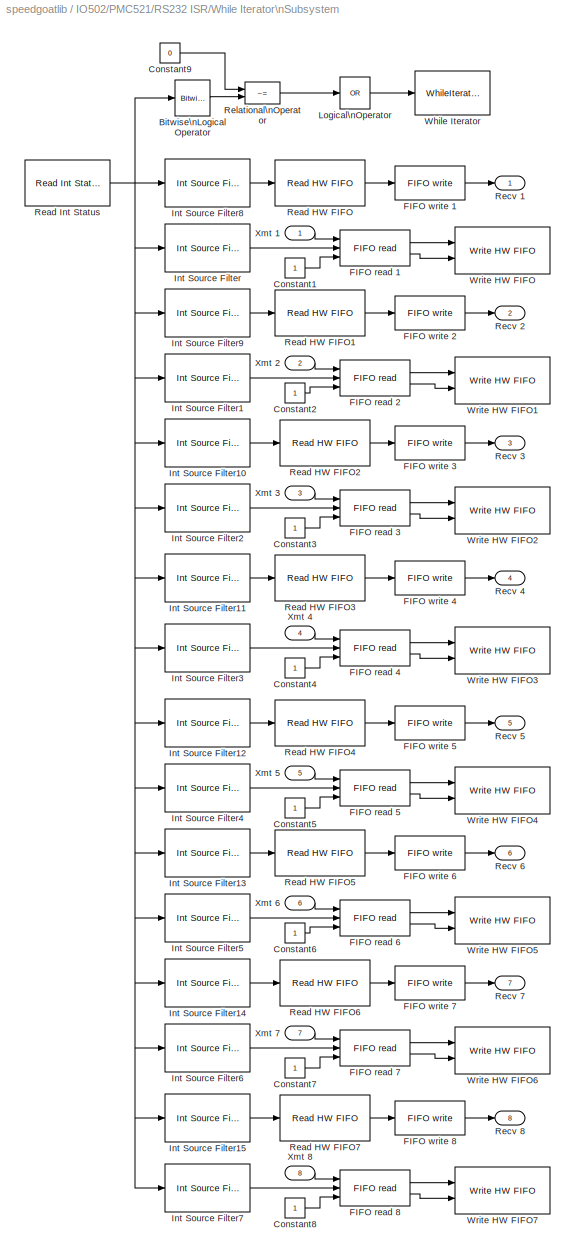
BLOCK [SubSystem] IO502/PMC521/RS232 ISR/While Iterator\nSubsystem
  FunctionWithSeparateData = off
  MaskHideContents = off
  MinAlgLoopOccurrences = off
  Opaque = off
  Ports = [8, 8]
  PropExecContextOutsideSubsystem = off
  RTWSystemCode = Auto
  RequestExecContextInheritance = off
  SID = 10
  TreatAsAtomicUnit = on
BLOCK [Reference] IO502/PMC521/RS232 ISR/While Iterator\nSubsystem/Bitwise\nLogical Operator  REF=simulink/Logic and Bit\nOperations/Bitwise\nOperator
  BitMask = 'FF'
  BitMaskRealWorld = Stored Integer
  NumInputPorts = 1
  Ports = [1, 1]
  SID = 19
  SourceBlock = simulink/Logic and Bit\nOperations/Bitwise\nOperator
  SourceType = Bitwise Operator
  UseBitMask = on
  logicop = AND
BLOCK [Constant] IO502/PMC521/RS232 ISR/While Iterator\nSubsystem/Constant1
  OutDataTypeMode = uint32
  OutDataTypeStr = uint32
  SID = 20
BLOCK [Constant] IO502/PMC521/RS232 ISR/While Iterator\nSubsystem/Constant2
  OutDataTypeMode = uint32
  OutDataTypeStr = uint32
  SID = 21
BLOCK [Constant] IO502/PMC521/RS232 ISR/While Iterator\nSubsystem/Constant3
  OutDataTypeMode = uint32
  OutDataTypeStr = uint32
  SID = 22
BLOCK [Constant] IO502/PMC521/RS232 ISR/While Iterator\nSubsystem/Constant4
  OutDataTypeMode = uint32
  OutDataTypeStr = uint32
  SID = 23
BLOCK [Constant] IO502/PMC521/RS232 ISR/While Iterator\nSubsystem/Constant5
  OutDataTypeMode = uint32
  OutDataTypeStr = uint32
  SID = 24
BLOCK [Constant] IO502/PMC521/RS232 ISR/While Iterator\nSubsystem/Constant6
  OutDataTypeMode = uint32
  OutDataTypeStr = uint32
  SID = 25
BLOCK [Constant] IO502/PMC521/RS232 ISR/While Iterator\nSubsystem/Constant7
  OutDataTypeMode = uint32
  OutDataTypeStr = uint32
  SID = 26
BLOCK [Constant] IO502/PMC521/RS232 ISR/While Iterator\nSubsystem/Constant8
  OutDataTypeMode = uint32
  OutDataTypeStr = uint32
  SID = 27
BLOCK [Constant] IO502/PMC521/RS232 ISR/While Iterator\nSubsystem/Constant9
  OutDataTypeMode = uint32
  OutDataTypeStr = uint32
  SID = 28
  Value = 0
BLOCK [Reference] IO502/PMC521/RS232 ISR/While Iterator\nSubsystem/FIFO read 1  REF=xpclib/RS232/FIFO read 
  Ports = [3, 2]
  SID = 29
  SourceBlock = xpclib/RS232/FIFO read
  SourceType = Asynchronous FIFO Block: reader
  delimiter = 13
  enable = on
  enableout = on
  maxsize = 60
  minsize = 1
  outputtype = count+32 bit uint
  sampletime = -1
  usedelimiter = off
BLOCK [Reference] IO502/PMC521/RS232 ISR/While Iterator\nSubsystem/FIFO read 2  REF=xpclib/RS232/FIFO read 
  Ports = [3, 2]
  SID = 30
  SourceBlock = xpclib/RS232/FIFO read
  SourceType = Asynchronous FIFO Block: reader
  delimiter = 13
  enable = on
  enableout = on
  maxsize = 60
  minsize = 1
  outputtype = count+32 bit uint
  sampletime = -1
  usedelimiter = off
BLOCK [Reference] IO502/PMC521/RS232 ISR/While Iterator\nSubsystem/FIFO read 3  REF=xpclib/RS232/FIFO read 
  Ports = [3, 2]
  SID = 31
  SourceBlock = xpclib/RS232/FIFO read
  SourceType = Asynchronous FIFO Block: reader
  delimiter = 13
  enable = on
  enableout = on
  maxsize = 60
  minsize = 1
  outputtype = count+32 bit uint
  sampletime = -1
  usedelimiter = off
BLOCK [Reference] IO502/PMC521/RS232 ISR/While Iterator\nSubsystem/FIFO read 4  REF=xpclib/RS232/FIFO read 
  Ports = [3, 2]
  SID = 32
  SourceBlock = xpclib/RS232/FIFO read
  SourceType = Asynchronous FIFO Block: reader
  delimiter = 13
  enable = on
  enableout = on
  maxsize = 60
  minsize = 1
  outputtype = count+32 bit uint
  sampletime = -1
  usedelimiter = off
BLOCK [Reference] IO502/PMC521/RS232 ISR/While Iterator\nSubsystem/FIFO read 5  REF=xpclib/RS232/FIFO read 
  Ports = [3, 2]
  SID = 33
  SourceBlock = xpclib/RS232/FIFO read
  SourceType = Asynchronous FIFO Block: reader
  delimiter = 13
  enable = on
  enableout = on
  maxsize = 60
  minsize = 1
  outputtype = count+32 bit uint
  sampletime = -1
  usedelimiter = off
BLOCK [Reference] IO502/PMC521/RS232 ISR/While Iterator\nSubsystem/FIFO read 6  REF=xpclib/RS232/FIFO read 
  Ports = [3, 2]
  SID = 34
  SourceBlock = xpclib/RS232/FIFO read
  SourceType = Asynchronous FIFO Block: reader
  delimiter = 13
  enable = on
  enableout = on
  maxsize = 60
  minsize = 1
  outputtype = count+32 bit uint
  sampletime = -1
  usedelimiter = off
BLOCK [Reference] IO502/PMC521/RS232 ISR/While Iterator\nSubsystem/FIFO read 7  REF=xpclib/RS232/FIFO read 
  Ports = [3, 2]
  SID = 35
  SourceBlock = xpclib/RS232/FIFO read
  SourceType = Asynchronous FIFO Block: reader
  delimiter = 13
  enable = on
  enableout = on
  maxsize = 60
  minsize = 1
  outputtype = count+32 bit uint
  sampletime = -1
  usedelimiter = off
BLOCK [Reference] IO502/PMC521/RS232 ISR/While Iterator\nSubsystem/FIFO read 8  REF=xpclib/RS232/FIFO read 
  Ports = [3, 2]
  SID = 36
  SourceBlock = xpclib/RS232/FIFO read
  SourceType = Asynchronous FIFO Block: reader
  delimiter = 13
  enable = on
  enableout = on
  maxsize = 60
  minsize = 1
  outputtype = count+32 bit uint
  sampletime = -1
  usedelimiter = off
BLOCK [Reference] IO502/PMC521/RS232 ISR/While Iterator\nSubsystem/FIFO write 1  REF=xpclib/RS232/FIFO write 
  Ports = [1, 1]
  SID = 37
  SourceBlock = xpclib/RS232/FIFO write
  SourceType = Asynchronous FIFO Block: writer
  id = RCV channel 1, IRQ 5
  inputtype = count+32 bit uint
  present = off
  sampletime = -1
  size = 1024
BLOCK [Reference] IO502/PMC521/RS232 ISR/While Iterator\nSubsystem/FIFO write 2  REF=xpclib/RS232/FIFO write 
  Ports = [1, 1]
  SID = 38
  SourceBlock = xpclib/RS232/FIFO write
  SourceType = Asynchronous FIFO Block: writer
  id = RCV channel 2, IRQ 5
  inputtype = count+32 bit uint
  present = off
  sampletime = -1
  size = 1024
BLOCK [Reference] IO502/PMC521/RS232 ISR/While Iterator\nSubsystem/FIFO write 3  REF=xpclib/RS232/FIFO write 
  Ports = [1, 1]
  SID = 39
  SourceBlock = xpclib/RS232/FIFO write
  SourceType = Asynchronous FIFO Block: writer
  id = RCV channel 3, IRQ 5
  inputtype = count+32 bit uint
  present = off
  sampletime = -1
  size = 1024
BLOCK [Reference] IO502/PMC521/RS232 ISR/While Iterator\nSubsystem/FIFO write 4  REF=xpclib/RS232/FIFO write 
  Ports = [1, 1]
  SID = 40
  SourceBlock = xpclib/RS232/FIFO write
  SourceType = Asynchronous FIFO Block: writer
  id = RCV channel 4, IRQ 5
  inputtype = count+32 bit uint
  present = off
  sampletime = -1
  size = 1024
BLOCK [Reference] IO502/PMC521/RS232 ISR/While Iterator\nSubsystem/FIFO write 5  REF=xpclib/RS232/FIFO write 
  Ports = [1, 1]
  SID = 41
  SourceBlock = xpclib/RS232/FIFO write
  SourceType = Asynchronous FIFO Block: writer
  id = RCV channel 5, IRQ 5
  inputtype = count+32 bit uint
  present = off
  sampletime = -1
  size = 1024
BLOCK [Reference] IO502/PMC521/RS232 ISR/While Iterator\nSubsystem/FIFO write 6  REF=xpclib/RS232/FIFO write 
  Ports = [1, 1]
  SID = 42
  SourceBlock = xpclib/RS232/FIFO write
  SourceType = Asynchronous FIFO Block: writer
  id = RCV channel 6, IRQ 5
  inputtype = count+32 bit uint
  present = off
  sampletime = -1
  size = 1024
BLOCK [Reference] IO502/PMC521/RS232 ISR/While Iterator\nSubsystem/FIFO write 7  REF=xpclib/RS232/FIFO write 
  Ports = [1, 1]
  SID = 43
  SourceBlock = xpclib/RS232/FIFO write
  SourceType = Asynchronous FIFO Block: writer
  id = RCV channel 7, IRQ 5
  inputtype = count+32 bit uint
  present = off
  sampletime = -1
  size = 1024
BLOCK [Reference] IO502/PMC521/RS232 ISR/While Iterator\nSubsystem/FIFO write 8  REF=xpclib/RS232/FIFO write 
  Ports = [1, 1]
  SID = 44
  SourceBlock = xpclib/RS232/FIFO write
  SourceType = Asynchronous FIFO Block: writer
  id = RCV channel 8, IRQ 5
  inputtype = count+32 bit uint
  present = off
  sampletime = -1
  size = 1024
BLOCK [Reference] IO502/PMC521/RS232 ISR/While Iterator\nSubsystem/Int Source Filter  REF=speedgoatlib/IO502/Acromag PMC521\nInternal blocks/Int Source Filter  (lib defined in mdl_2b10c7445f81, mdl_649b3eec89a6, +4 more)
  Ports = [1, 1]
  SID = 45
  SourceBlock = speedgoatlib/IO502/Acromag PMC521\nInternal blocks/Int Source Filter
  SourceType = int_source_filter_XR17D15x
  port = 1
  value = Transmitter empty
BLOCK [Reference] IO502/PMC521/RS232 ISR/While Iterator\nSubsystem/Int Source Filter1  REF=speedgoatlib/IO502/Acromag PMC521\nInternal blocks/Int Source Filter  (lib defined in mdl_2b10c7445f81, mdl_649b3eec89a6, +4 more)
  Ports = [1, 1]
  SID = 46
  SourceBlock = speedgoatlib/IO502/Acromag PMC521\nInternal blocks/Int Source Filter
  SourceType = int_source_filter_XR17D15x
  port = 2
  value = Transmitter empty
BLOCK [Reference] IO502/PMC521/RS232 ISR/While Iterator\nSubsystem/Int Source Filter10  REF=speedgoatlib/IO502/Acromag PMC521\nInternal blocks/Int Source Filter  (lib defined in mdl_2b10c7445f81, mdl_649b3eec89a6, +4 more)
  Ports = [1, 1]
  SID = 47
  SourceBlock = speedgoatlib/IO502/Acromag PMC521\nInternal blocks/Int Source Filter
  SourceType = int_source_filter_XR17D15x
  port = 3
  value = Receive data
BLOCK [Reference] IO502/PMC521/RS232 ISR/While Iterator\nSubsystem/Int Source Filter11  REF=speedgoatlib/IO502/Acromag PMC521\nInternal blocks/Int Source Filter  (lib defined in mdl_2b10c7445f81, mdl_649b3eec89a6, +4 more)
  Ports = [1, 1]
  SID = 48
  SourceBlock = speedgoatlib/IO502/Acromag PMC521\nInternal blocks/Int Source Filter
  SourceType = int_source_filter_XR17D15x
  port = 4
  value = Receive data
BLOCK [Reference] IO502/PMC521/RS232 ISR/While Iterator\nSubsystem/Int Source Filter12  REF=speedgoatlib/IO502/Acromag PMC521\nInternal blocks/Int Source Filter  (lib defined in mdl_2b10c7445f81, mdl_649b3eec89a6, +4 more)
  Ports = [1, 1]
  SID = 49
  SourceBlock = speedgoatlib/IO502/Acromag PMC521\nInternal blocks/Int Source Filter
  SourceType = int_source_filter_XR17D15x
  port = 5
  value = Receive data
BLOCK [Reference] IO502/PMC521/RS232 ISR/While Iterator\nSubsystem/Int Source Filter13  REF=speedgoatlib/IO502/Acromag PMC521\nInternal blocks/Int Source Filter  (lib defined in mdl_2b10c7445f81, mdl_649b3eec89a6, +4 more)
  Ports = [1, 1]
  SID = 50
  SourceBlock = speedgoatlib/IO502/Acromag PMC521\nInternal blocks/Int Source Filter
  SourceType = int_source_filter_XR17D15x
  port = 6
  value = Receive data
BLOCK [Reference] IO502/PMC521/RS232 ISR/While Iterator\nSubsystem/Int Source Filter14  REF=speedgoatlib/IO502/Acromag PMC521\nInternal blocks/Int Source Filter  (lib defined in mdl_2b10c7445f81, mdl_649b3eec89a6, +4 more)
  Ports = [1, 1]
  SID = 51
  SourceBlock = speedgoatlib/IO502/Acromag PMC521\nInternal blocks/Int Source Filter
  SourceType = int_source_filter_XR17D15x
  port = 7
  value = Receive data
BLOCK [Reference] IO502/PMC521/RS232 ISR/While Iterator\nSubsystem/Int Source Filter15  REF=speedgoatlib/IO502/Acromag PMC521\nInternal blocks/Int Source Filter  (lib defined in mdl_2b10c7445f81, mdl_649b3eec89a6, +4 more)
  Ports = [1, 1]
  SID = 52
  SourceBlock = speedgoatlib/IO502/Acromag PMC521\nInternal blocks/Int Source Filter
  SourceType = int_source_filter_XR17D15x
  port = 8
  value = Receive data
BLOCK [Reference] IO502/PMC521/RS232 ISR/While Iterator\nSubsystem/Int Source Filter2  REF=speedgoatlib/IO502/Acromag PMC521\nInternal blocks/Int Source Filter  (lib defined in mdl_2b10c7445f81, mdl_649b3eec89a6, +4 more)
  Ports = [1, 1]
  SID = 53
  SourceBlock = speedgoatlib/IO502/Acromag PMC521\nInternal blocks/Int Source Filter
  SourceType = int_source_filter_XR17D15x
  port = 3
  value = Transmitter empty
BLOCK [Reference] IO502/PMC521/RS232 ISR/While Iterator\nSubsystem/Int Source Filter3  REF=speedgoatlib/IO502/Acromag PMC521\nInternal blocks/Int Source Filter  (lib defined in mdl_2b10c7445f81, mdl_649b3eec89a6, +4 more)
  Ports = [1, 1]
  SID = 54
  SourceBlock = speedgoatlib/IO502/Acromag PMC521\nInternal blocks/Int Source Filter
  SourceType = int_source_filter_XR17D15x
  port = 4
  value = Transmitter empty
BLOCK [Reference] IO502/PMC521/RS232 ISR/While Iterator\nSubsystem/Int Source Filter4  REF=speedgoatlib/IO502/Acromag PMC521\nInternal blocks/Int Source Filter  (lib defined in mdl_2b10c7445f81, mdl_649b3eec89a6, +4 more)
  Ports = [1, 1]
  SID = 55
  SourceBlock = speedgoatlib/IO502/Acromag PMC521\nInternal blocks/Int Source Filter
  SourceType = int_source_filter_XR17D15x
  port = 5
  value = Transmitter empty
BLOCK [Reference] IO502/PMC521/RS232 ISR/While Iterator\nSubsystem/Int Source Filter5  REF=speedgoatlib/IO502/Acromag PMC521\nInternal blocks/Int Source Filter  (lib defined in mdl_2b10c7445f81, mdl_649b3eec89a6, +4 more)
  Ports = [1, 1]
  SID = 56
  SourceBlock = speedgoatlib/IO502/Acromag PMC521\nInternal blocks/Int Source Filter
  SourceType = int_source_filter_XR17D15x
  port = 6
  value = Transmitter empty
BLOCK [Reference] IO502/PMC521/RS232 ISR/While Iterator\nSubsystem/Int Source Filter6  REF=speedgoatlib/IO502/Acromag PMC521\nInternal blocks/Int Source Filter  (lib defined in mdl_2b10c7445f81, mdl_649b3eec89a6, +4 more)
  Ports = [1, 1]
  SID = 57
  SourceBlock = speedgoatlib/IO502/Acromag PMC521\nInternal blocks/Int Source Filter
  SourceType = int_source_filter_XR17D15x
  port = 7
  value = Transmitter empty
BLOCK [Reference] IO502/PMC521/RS232 ISR/While Iterator\nSubsystem/Int Source Filter7  REF=speedgoatlib/IO502/Acromag PMC521\nInternal blocks/Int Source Filter  (lib defined in mdl_2b10c7445f81, mdl_649b3eec89a6, +4 more)
  Ports = [1, 1]
  SID = 58
  SourceBlock = speedgoatlib/IO502/Acromag PMC521\nInternal blocks/Int Source Filter
  SourceType = int_source_filter_XR17D15x
  port = 8
  value = Transmitter empty
BLOCK [Reference] IO502/PMC521/RS232 ISR/While Iterator\nSubsystem/Int Source Filter8  REF=speedgoatlib/IO502/Acromag PMC521\nInternal blocks/Int Source Filter  (lib defined in mdl_2b10c7445f81, mdl_649b3eec89a6, +4 more)
  Ports = [1, 1]
  SID = 59
  SourceBlock = speedgoatlib/IO502/Acromag PMC521\nInternal blocks/Int Source Filter
  SourceType = int_source_filter_XR17D15x
  port = 1
  value = Receive data
BLOCK [Reference] IO502/PMC521/RS232 ISR/While Iterator\nSubsystem/Int Source Filter9  REF=speedgoatlib/IO502/Acromag PMC521\nInternal blocks/Int Source Filter  (lib defined in mdl_2b10c7445f81, mdl_649b3eec89a6, +4 more)
  Ports = [1, 1]
  SID = 60
  SourceBlock = speedgoatlib/IO502/Acromag PMC521\nInternal blocks/Int Source Filter
  SourceType = int_source_filter_XR17D15x
  port = 2
  value = Receive data
BLOCK [Logic] IO502/PMC521/RS232 ISR/While Iterator\nSubsystem/Logical\nOperator
  AllPortsSameDT = off
  Inputs = 1
  Operator = OR
  Ports = [1, 1]
  SID = 61
BLOCK [Reference] IO502/PMC521/RS232 ISR/While Iterator\nSubsystem/Read HW FIFO  REF=speedgoatlib/IO502/Acromag PMC521\nInternal blocks/Read HW FIFO  (lib defined in mdl_2b10c7445f81, mdl_649b3eec89a6, +4 more)
  Ports = [1, 1]
  SID = 62
  SourceBlock = speedgoatlib/IO502/Acromag PMC521\nInternal blocks/Read HW FIFO
  SourceType = read_hw_fifo_XR17D15x
  flush = on
  port = 1
  slot = subslot
BLOCK [Reference] IO502/PMC521/RS232 ISR/While Iterator\nSubsystem/Read HW FIFO1  REF=speedgoatlib/IO502/Acromag PMC521\nInternal blocks/Read HW FIFO  (lib defined in mdl_2b10c7445f81, mdl_649b3eec89a6, +4 more)
  Ports = [1, 1]
  SID = 63
  SourceBlock = speedgoatlib/IO502/Acromag PMC521\nInternal blocks/Read HW FIFO
  SourceType = read_hw_fifo_XR17D15x
  flush = on
  port = 2
  slot = subslot
BLOCK [Reference] IO502/PMC521/RS232 ISR/While Iterator\nSubsystem/Read HW FIFO2  REF=speedgoatlib/IO502/Acromag PMC521\nInternal blocks/Read HW FIFO  (lib defined in mdl_2b10c7445f81, mdl_649b3eec89a6, +4 more)
  Ports = [1, 1]
  SID = 64
  SourceBlock = speedgoatlib/IO502/Acromag PMC521\nInternal blocks/Read HW FIFO
  SourceType = read_hw_fifo_XR17D15x
  flush = on
  port = 3
  slot = subslot
BLOCK [Reference] IO502/PMC521/RS232 ISR/While Iterator\nSubsystem/Read HW FIFO3  REF=speedgoatlib/IO502/Acromag PMC521\nInternal blocks/Read HW FIFO  (lib defined in mdl_2b10c7445f81, mdl_649b3eec89a6, +4 more)
  Ports = [1, 1]
  SID = 65
  SourceBlock = speedgoatlib/IO502/Acromag PMC521\nInternal blocks/Read HW FIFO
  SourceType = read_hw_fifo_XR17D15x
  flush = on
  port = 4
  slot = subslot
BLOCK [Reference] IO502/PMC521/RS232 ISR/While Iterator\nSubsystem/Read HW FIFO4  REF=speedgoatlib/IO502/Acromag PMC521\nInternal blocks/Read HW FIFO  (lib defined in mdl_2b10c7445f81, mdl_649b3eec89a6, +4 more)
  Ports = [1, 1]
  SID = 66
  SourceBlock = speedgoatlib/IO502/Acromag PMC521\nInternal blocks/Read HW FIFO
  SourceType = read_hw_fifo_XR17D15x
  flush = on
  port = 5
  slot = subslot
BLOCK [Reference] IO502/PMC521/RS232 ISR/While Iterator\nSubsystem/Read HW FIFO5  REF=speedgoatlib/IO502/Acromag PMC521\nInternal blocks/Read HW FIFO  (lib defined in mdl_2b10c7445f81, mdl_649b3eec89a6, +4 more)
  Ports = [1, 1]
  SID = 67
  SourceBlock = speedgoatlib/IO502/Acromag PMC521\nInternal blocks/Read HW FIFO
  SourceType = read_hw_fifo_XR17D15x
  flush = on
  port = 6
  slot = subslot
BLOCK [Reference] IO502/PMC521/RS232 ISR/While Iterator\nSubsystem/Read HW FIFO6  REF=speedgoatlib/IO502/Acromag PMC521\nInternal blocks/Read HW FIFO  (lib defined in mdl_2b10c7445f81, mdl_649b3eec89a6, +4 more)
  Ports = [1, 1]
  SID = 68
  SourceBlock = speedgoatlib/IO502/Acromag PMC521\nInternal blocks/Read HW FIFO
  SourceType = read_hw_fifo_XR17D15x
  flush = on
  port = 7
  slot = subslot
BLOCK [Reference] IO502/PMC521/RS232 ISR/While Iterator\nSubsystem/Read HW FIFO7  REF=speedgoatlib/IO502/Acromag PMC521\nInternal blocks/Read HW FIFO  (lib defined in mdl_2b10c7445f81, mdl_649b3eec89a6, +4 more)
  Ports = [1, 1]
  SID = 69
  SourceBlock = speedgoatlib/IO502/Acromag PMC521\nInternal blocks/Read HW FIFO
  SourceType = read_hw_fifo_XR17D15x
  flush = on
  port = 8
  slot = subslot
BLOCK [Reference] IO502/PMC521/RS232 ISR/While Iterator\nSubsystem/Read Int Status  REF=speedgoatlib/IO502/Acromag PMC521\nInternal blocks/Read Int Status  (lib defined in mdl_2b10c7445f81, mdl_649b3eec89a6, +4 more)
  Ports = [0, 1]
  SID = 70
  SourceBlock = speedgoatlib/IO502/Acromag PMC521\nInternal blocks/Read Int Status
  SourceType = read_int_status_XR17D15x
  slot = subslot
BLOCK [Outport] IO502/PMC521/RS232 ISR/While Iterator\nSubsystem/Recv 1
  IconDisplay = Port number
  SID = 81
BLOCK [Outport] IO502/PMC521/RS232 ISR/While Iterator\nSubsystem/Recv 2
  IconDisplay = Port number
  Port = 2
  SID = 82
BLOCK [Outport] IO502/PMC521/RS232 ISR/While Iterator\nSubsystem/Recv 3
  IconDisplay = Port number
  Port = 3
  SID = 83
BLOCK [Outport] IO502/PMC521/RS232 ISR/While Iterator\nSubsystem/Recv 4
  IconDisplay = Port number
  Port = 4
  SID = 84
BLOCK [Outport] IO502/PMC521/RS232 ISR/While Iterator\nSubsystem/Recv 5
  IconDisplay = Port number
  Port = 5
  SID = 85
BLOCK [Outport] IO502/PMC521/RS232 ISR/While Iterator\nSubsystem/Recv 6
  IconDisplay = Port number
  Port = 6
  SID = 86
BLOCK [Outport] IO502/PMC521/RS232 ISR/While Iterator\nSubsystem/Recv 7
  IconDisplay = Port number
  Port = 7
  SID = 87
BLOCK [Outport] IO502/PMC521/RS232 ISR/While Iterator\nSubsystem/Recv 8
  IconDisplay = Port number
  Port = 8
  SID = 88
BLOCK [RelationalOperator] IO502/PMC521/RS232 ISR/While Iterator\nSubsystem/Relational\nOperator
  InputSameDT = off
  Operator = ~=
  Ports = [2, 1]
  SID = 71
BLOCK [WhileIterator] IO502/PMC521/RS232 ISR/While Iterator\nSubsystem/While Iterator
  MaxIters = 65
  Ports = [1]
  SID = 72
  WhileBlockType = do-while
BLOCK [Reference] IO502/PMC521/RS232 ISR/While Iterator\nSubsystem/Write HW FIFO  REF=speedgoatlib/IO502/Acromag PMC521\nInternal blocks/Write HW FIFO  (lib defined in mdl_2b10c7445f81, mdl_649b3eec89a6, +4 more)
  Ports = [2]
  SID = 73
  SourceBlock = speedgoatlib/IO502/Acromag PMC521\nInternal blocks/Write HW FIFO
  SourceType = write_hw_fifo_XR17D15x
  port = 1
  slot = subslot
BLOCK [Reference] IO502/PMC521/RS232 ISR/While Iterator\nSubsystem/Write HW FIFO1  REF=speedgoatlib/IO502/Acromag PMC521\nInternal blocks/Write HW FIFO  (lib defined in mdl_2b10c7445f81, mdl_649b3eec89a6, +4 more)
  Ports = [2]
  SID = 74
  SourceBlock = speedgoatlib/IO502/Acromag PMC521\nInternal blocks/Write HW FIFO
  SourceType = write_hw_fifo_XR17D15x
  port = 2
  slot = subslot
BLOCK [Reference] IO502/PMC521/RS232 ISR/While Iterator\nSubsystem/Write HW FIFO2  REF=speedgoatlib/IO502/Acromag PMC521\nInternal blocks/Write HW FIFO  (lib defined in mdl_2b10c7445f81, mdl_649b3eec89a6, +4 more)
  Ports = [2]
  SID = 75
  SourceBlock = speedgoatlib/IO502/Acromag PMC521\nInternal blocks/Write HW FIFO
  SourceType = write_hw_fifo_XR17D15x
  port = 3
  slot = subslot
BLOCK [Reference] IO502/PMC521/RS232 ISR/While Iterator\nSubsystem/Write HW FIFO3  REF=speedgoatlib/IO502/Acromag PMC521\nInternal blocks/Write HW FIFO  (lib defined in mdl_2b10c7445f81, mdl_649b3eec89a6, +4 more)
  Ports = [2]
  SID = 76
  SourceBlock = speedgoatlib/IO502/Acromag PMC521\nInternal blocks/Write HW FIFO
  SourceType = write_hw_fifo_XR17D15x
  port = 4
  slot = subslot
BLOCK [Reference] IO502/PMC521/RS232 ISR/While Iterator\nSubsystem/Write HW FIFO4  REF=speedgoatlib/IO502/Acromag PMC521\nInternal blocks/Write HW FIFO  (lib defined in mdl_2b10c7445f81, mdl_649b3eec89a6, +4 more)
  Ports = [2]
  SID = 77
  SourceBlock = speedgoatlib/IO502/Acromag PMC521\nInternal blocks/Write HW FIFO
  SourceType = write_hw_fifo_XR17D15x
  port = 5
  slot = subslot
BLOCK [Reference] IO502/PMC521/RS232 ISR/While Iterator\nSubsystem/Write HW FIFO5  REF=speedgoatlib/IO502/Acromag PMC521\nInternal blocks/Write HW FIFO  (lib defined in mdl_2b10c7445f81, mdl_649b3eec89a6, +4 more)
  Ports = [2]
  SID = 78
  SourceBlock = speedgoatlib/IO502/Acromag PMC521\nInternal blocks/Write HW FIFO
  SourceType = write_hw_fifo_XR17D15x
  port = 6
  slot = subslot
BLOCK [Reference] IO502/PMC521/RS232 ISR/While Iterator\nSubsystem/Write HW FIFO6  REF=speedgoatlib/IO502/Acromag PMC521\nInternal blocks/Write HW FIFO  (lib defined in mdl_2b10c7445f81, mdl_649b3eec89a6, +4 more)
  Ports = [2]
  SID = 79
  SourceBlock = speedgoatlib/IO502/Acromag PMC521\nInternal blocks/Write HW FIFO
  SourceType = write_hw_fifo_XR17D15x
  port = 7
  slot = subslot
BLOCK [Reference] IO502/PMC521/RS232 ISR/While Iterator\nSubsystem/Write HW FIFO7  REF=speedgoatlib/IO502/Acromag PMC521\nInternal blocks/Write HW FIFO  (lib defined in mdl_2b10c7445f81, mdl_649b3eec89a6, +4 more)
  Ports = [2]
  SID = 80
  SourceBlock = speedgoatlib/IO502/Acromag PMC521\nInternal blocks/Write HW FIFO
  SourceType = write_hw_fifo_XR17D15x
  port = 8
  slot = subslot
BLOCK [Inport] IO502/PMC521/RS232 ISR/While Iterator\nSubsystem/Xmt 1
  IconDisplay = Port number
  SID = 11
BLOCK [Inport] IO502/PMC521/RS232 ISR/While Iterator\nSubsystem/Xmt 2
  IconDisplay = Port number
  Port = 2
  SID = 12
BLOCK [Inport] IO502/PMC521/RS232 ISR/While Iterator\nSubsystem/Xmt 3
  IconDisplay = Port number
  Port = 3
  SID = 13
BLOCK [Inport] IO502/PMC521/RS232 ISR/While Iterator\nSubsystem/Xmt 4
  IconDisplay = Port number
  Port = 4
  SID = 14
BLOCK [Inport] IO502/PMC521/RS232 ISR/While Iterator\nSubsystem/Xmt 5
  IconDisplay = Port number
  Port = 5
  SID = 15
BLOCK [Inport] IO502/PMC521/RS232 ISR/While Iterator\nSubsystem/Xmt 6
  IconDisplay = Port number
  Port = 6
  SID = 16
BLOCK [Inport] IO502/PMC521/RS232 ISR/While Iterator\nSubsystem/Xmt 7
  IconDisplay = Port number
  Port = 7
  SID = 17
BLOCK [Inport] IO502/PMC521/RS232 ISR/While Iterator\nSubsystem/Xmt 8
  IconDisplay = Port number
  Port = 8
  SID = 18
BLOCK [Inport] IO502/PMC521/RS232 ISR/Xmt 1
  IconDisplay = Port number
  SID = 1
BLOCK [Inport] IO502/PMC521/RS232 ISR/Xmt 2
  IconDisplay = Port number
  Port = 2
  SID = 2
BLOCK [Inport] IO502/PMC521/RS232 ISR/Xmt 3
  IconDisplay = Port number
  Port = 3
  SID = 3
BLOCK [Inport] IO502/PMC521/RS232 ISR/Xmt 4
  IconDisplay = Port number
  Port = 4
  SID = 4
BLOCK [Inport] IO502/PMC521/RS232 ISR/Xmt 5
  IconDisplay = Port number
  Port = 5
  SID = 5
BLOCK [Inport] IO502/PMC521/RS232 ISR/Xmt 6
  IconDisplay = Port number
  Port = 6
  SID = 6
BLOCK [Inport] IO502/PMC521/RS232 ISR/Xmt 7
  IconDisplay = Port number
  Port = 7
  SID = 7
BLOCK [Inport] IO502/PMC521/RS232 ISR/Xmt 8
  IconDisplay = Port number
  Port = 8
  SID = 8
BLOCK [TriggerPort] IO502/PMC521/RS232 ISR/function
  Ports = []
  SID = 9
  StatesWhenEnabling = held
  TriggerType = function-call
BLOCK [RateTransition] IO502/PMC521/Rate Transition
  Deterministic = off
  Integrity = off
  SID = 28
BLOCK [RateTransition] IO502/PMC521/Rate Transition1
  Deterministic = off
  Integrity = off
  OutPortSampleTime = 0
  SID = 29
BLOCK [RateTransition] IO502/PMC521/Rate Transition10
  Deterministic = off
  Integrity = off
  SID = 30
BLOCK [RateTransition] IO502/PMC521/Rate Transition11
  Deterministic = off
  Integrity = off
  SID = 31
BLOCK [RateTransition] IO502/PMC521/Rate Transition12
  Deterministic = off
  Integrity = off
  OutPortSampleTime = 0
  SID = 32
BLOCK [RateTransition] IO502/PMC521/Rate Transition13
  Deterministic = off
  Integrity = off
  OutPortSampleTime = 0
  SID = 33
BLOCK [RateTransition] IO502/PMC521/Rate Transition14
  Deterministic = off
  Integrity = off
  OutPortSampleTime = 0
  SID = 34
BLOCK [RateTransition] IO502/PMC521/Rate Transition15
  Deterministic = off
  Integrity = off
  OutPortSampleTime = 0
  SID = 35
BLOCK [RateTransition] IO502/PMC521/Rate Transition2
  Deterministic = off
  Integrity = off
  SID = 36
BLOCK [RateTransition] IO502/PMC521/Rate Transition3
  Deterministic = off
  Integrity = off
  OutPortSampleTime = 0
  SID = 37
BLOCK [RateTransition] IO502/PMC521/Rate Transition4
  Deterministic = off
  Integrity = off
  SID = 38
BLOCK [RateTransition] IO502/PMC521/Rate Transition5
  Deterministic = off
  Integrity = off
  SID = 39
BLOCK [RateTransition] IO502/PMC521/Rate Transition6
  Deterministic = off
  Integrity = off
  OutPortSampleTime = 0
  SID = 40
BLOCK [RateTransition] IO502/PMC521/Rate Transition7
  Deterministic = off
  Integrity = off
  OutPortSampleTime = 0
  SID = 41
BLOCK [RateTransition] IO502/PMC521/Rate Transition8
  Deterministic = off
  Integrity = off
  SID = 42
BLOCK [RateTransition] IO502/PMC521/Rate Transition9
  Deterministic = off
  Integrity = off
  SID = 43
BLOCK [Reference] IO502/PMC521/Setup1  REF=speedgoatlib/IO502/Acromag PMC521\nInternal blocks/Setup   (lib defined in mdl_2b10c7445f81, mdl_649b3eec89a6, +4 more)
  Ports = []
  SID = 44
  SourceBlock = speedgoatlib/IO502/Acromag PMC521\nInternal blocks/Setup
  SourceType = setup_XR17D15x
  bauddivisor = 1
  baudrate = 115200
  ctsmode = none
  mode8x = 16x (standard)
  nstop = 1
  parity = None
  port = 1
  prescale = off
  rlevel = 1
  rs485delay = 0
  rs485mode = off
  slot = brdslot
  standard = on
  width = 8
  xoff = 19
  xon = 17
  xonoff = none
BLOCK [Reference] IO502/PMC521/Setup2  REF=speedgoatlib/IO502/Acromag PMC521\nInternal blocks/Setup   (lib defined in mdl_2b10c7445f81, mdl_649b3eec89a6, +4 more)
  Ports = []
  SID = 45
  SourceBlock = speedgoatlib/IO502/Acromag PMC521\nInternal blocks/Setup
  SourceType = setup_XR17D15x
  bauddivisor = 1
  baudrate = 115200
  ctsmode = none
  mode8x = 16x (standard)
  nstop = 1
  parity = None
  port = 2
  prescale = off
  rlevel = 1
  rs485delay = 0
  rs485mode = off
  slot = brdslot
  standard = on
  width = 8
  xoff = 19
  xon = 17
  xonoff = none
BLOCK [Reference] IO502/PMC521/Setup3  REF=speedgoatlib/IO502/Acromag PMC521\nInternal blocks/Setup   (lib defined in mdl_2b10c7445f81, mdl_649b3eec89a6, +4 more)
  Ports = []
  SID = 46
  SourceBlock = speedgoatlib/IO502/Acromag PMC521\nInternal blocks/Setup
  SourceType = setup_XR17D15x
  bauddivisor = 1
  baudrate = 115200
  ctsmode = none
  mode8x = 16x (standard)
  nstop = 1
  parity = None
  port = 3
  prescale = off
  rlevel = half full (32)
  rs485delay = 0
  rs485mode = off
  slot = brdslot
  standard = on
  width = 8
  xoff = 19
  xon = 17
  xonoff = none
BLOCK [Reference] IO502/PMC521/Setup4  REF=speedgoatlib/IO502/Acromag PMC521\nInternal blocks/Setup   (lib defined in mdl_2b10c7445f81, mdl_649b3eec89a6, +4 more)
  Ports = []
  SID = 47
  SourceBlock = speedgoatlib/IO502/Acromag PMC521\nInternal blocks/Setup
  SourceType = setup_XR17D15x
  bauddivisor = 1
  baudrate = 115200
  ctsmode = none
  mode8x = 16x (standard)
  nstop = 1
  parity = None
  port = 4
  prescale = off
  rlevel = half full (32)
  rs485delay = 0
  rs485mode = off
  slot = brdslot
  standard = on
  width = 8
  xoff = 19
  xon = 17
  xonoff = none
BLOCK [Reference] IO502/PMC521/Setup5  REF=speedgoatlib/IO502/Acromag PMC521\nInternal blocks/Setup   (lib defined in mdl_2b10c7445f81, mdl_649b3eec89a6, +4 more)
  Ports = []
  SID = 48
  SourceBlock = speedgoatlib/IO502/Acromag PMC521\nInternal blocks/Setup
  SourceType = setup_XR17D15x
  bauddivisor = 1
  baudrate = 115200
  ctsmode = none
  mode8x = 16x (standard)
  nstop = 1
  parity = None
  port = 5
  prescale = off
  rlevel = 1
  rs485delay = 0
  rs485mode = off
  slot = brdslot
  standard = on
  width = 8
  xoff = 19
  xon = 17
  xonoff = none
BLOCK [Reference] IO502/PMC521/Setup6  REF=speedgoatlib/IO502/Acromag PMC521\nInternal blocks/Setup   (lib defined in mdl_2b10c7445f81, mdl_649b3eec89a6, +4 more)
  Ports = []
  SID = 49
  SourceBlock = speedgoatlib/IO502/Acromag PMC521\nInternal blocks/Setup
  SourceType = setup_XR17D15x
  bauddivisor = 1
  baudrate = 115200
  ctsmode = none
  mode8x = 16x (standard)
  nstop = 1
  parity = None
  port = 6
  prescale = off
  rlevel = 1
  rs485delay = 0
  rs485mode = off
  slot = brdslot
  standard = on
  width = 8
  xoff = 19
  xon = 17
  xonoff = none
BLOCK [Reference] IO502/PMC521/Setup7  REF=speedgoatlib/IO502/Acromag PMC521\nInternal blocks/Setup   (lib defined in mdl_2b10c7445f81, mdl_649b3eec89a6, +4 more)
  Ports = []
  SID = 50
  SourceBlock = speedgoatlib/IO502/Acromag PMC521\nInternal blocks/Setup
  SourceType = setup_XR17D15x
  bauddivisor = 1
  baudrate = 115200
  ctsmode = none
  mode8x = 16x (standard)
  nstop = 1
  parity = None
  port = 7
  prescale = off
  rlevel = 1
  rs485delay = 0
  rs485mode = off
  slot = brdslot
  standard = on
  width = 8
  xoff = 19
  xon = 17
  xonoff = none
BLOCK [Reference] IO502/PMC521/Setup8  REF=speedgoatlib/IO502/Acromag PMC521\nInternal blocks/Setup   (lib defined in mdl_2b10c7445f81, mdl_649b3eec89a6, +4 more)
  Ports = []
  SID = 51
  SourceBlock = speedgoatlib/IO502/Acromag PMC521\nInternal blocks/Setup
  SourceType = setup_XR17D15x
  bauddivisor = 1
  baudrate = 115200
  ctsmode = none
  mode8x = 16x (standard)
  nstop = 1
  parity = None
  port = 8
  prescale = off
  rlevel = 1
  rs485delay = 0
  rs485mode = off
  slot = brdslot
  standard = on
  width = 8
  xoff = 19
  xon = 17
  xonoff = none
BLOCK [SubSystem] IO503
  FunctionWithSeparateData = off
  MaskHideContents = off
  MinAlgLoopOccurrences = off
  Opaque = off
  Ports = []
  PropExecContextOutsideSubsystem = off
  RTWSystemCode = Auto
  RequestExecContextInheritance = off
  SID = 49
BLOCK [SubSystem] IO503/Send Receive
  FunctionWithSeparateData = off
  InitFcn = m_XR17D15x(3);
  MaskCallbackString = m_tews_XR17D15x(2, 4);|m_tews_XR17D15x(2, 4);||||||||||||||||||||||||||||||||||||||||||||||||||||||||||||||||||||||||||||||
  MaskDescription = Speedgoat driver block\nIO503 - Send Receive\n
  MaskDisplay = disp('Speedgoat<path>');\nport_label( 'input', 1, 'XMT1' );\nport_label( 'input', 2, 'XMT2' );\nport_label( 'input', 3, 'XMT3' );\nport_label( 'input', 4, 'XMT4' );\n\nport_label( 'output', 1, 'FIFO1' );\nport_label( 'output', 2, 'FIFO2' );\nport_label( 'output', 3, 'FIFO3' );\nport_label( 'output', 4, 'FIFO4' );\n\n\n
  MaskEnableString = on,on,on,on,on,on,on,on,on,on,on,on,on,on,on,on,on,on,on,on,on,on,on,on,on,on,on,on,on,on,on,on,on,on,on,on,on,on,on,on,on,on,on,on,on,on,on,on,on,on,on,on,on,on,on,on,on,on,on,on,on,on,on,on,on,on,on,on,on,on,on,on,on,on,on,on,on,on,on,on
  MaskHelp = web(fullfile(speedgoatroot,'sg_help','serial','dialog_fields_send_rec_io503.htm'),'-helpbrowser');
  MaskHideContents = off
  MaskIconFrame = on
  MaskIconOpaque = on
  MaskIconRotate = none
  MaskIconUnits = autoscale
  MaskInitialization = brdslot = slot;\nm_tews_XR17D15x(1, 4);\n\n
  MaskPortRotate = default
  MaskPromptString = Parameter group:|Port to modify:|IRQ number:|PCI slot (-1: autosearch):|Transceiver setup:|Use standard baud rates (16x, no prescaling)|Standard baud rate:|Baud rate divisor (non-standard baud rates):|Sampling rate (non-standard baud rates):|Prescale by 4 (non-standard baud rates)|Parity:|Data bits:|Stop bits:|Receive FIFO interrupt level:|Hardware handshake:|Software handshake:|XON character:|XOF...<+1575ch>
  MaskSelfModifiable = on
  MaskStyleString = popup(Board Setup|Basic Setup|FIFO Setup),popup(1|2|3|4),edit,edit,popup(RS232 (max 921.6kb/s)|RS422|RS422 multidrop|RS485 full-duplex|RS485 half-duplex),checkbox,popup(2764800|1382400|921600|460800|230400|115200|57600|38400|19200|9600|4800|2400|1200|600|400),edit,popup(8x|16x (standard)),checkbox,popup(None|Even|Odd|Mark|Space),popup(5|6|7|8),popup(1|2),popup(1|quarter full (16)|half full (32)|al...<+1882ch>
  MaskToolTipString = on,on,on,on,on,on,on,on,on,on,on,on,on,on,on,on,on,on,on,on,on,on,on,on,on,on,on,on,on,on,on,on,on,on,on,on,on,on,on,on,on,on,on,on,on,on,on,on,on,on,on,on,on,on,on,on,on,on,on,on,on,on,on,on,on,on,on,on,on,on,on,on,on,on,on,on,on,on,on,on
  MaskTunableValueString = on,on,on,on,on,on,on,on,on,on,on,on,on,on,on,on,on,on,on,on,on,on,on,on,on,on,on,on,on,on,on,on,on,on,on,on,on,on,on,on,on,on,on,on,on,on,on,on,on,on,on,on,on,on,on,on,on,on,on,on,on,on,on,on,on,on,on,on,on,on,on,on,on,on,on,on,on,on,on,on
  MaskType = sendreceive_IO503
  MaskValueString = Basic Setup|1|5|-1|RS232 (max 921.6kb/s)|on|115200|1|16x (standard)|off|None|8|1|1|none|none|17|19|off|0|1024|8 bit uint null terminated|1024|RS232 (max 921.6kb/s)|on|115200|1|16x (standard)|off|None|8|1|1|none|none|17|19|off|0|1024|8 bit uint null terminated|1024|RS232 (max 921.6kb/s)|on|115200|1|16x (standard)|off|None|8|1|half full (32)|none|none|17|19|off|0|1024|8 bit uint null terminated|1024...<+136ch>
  MaskVariables = group=@1;port=@2;irqnum=&3;slot=@4;transceiver1=@5;standard1=@6;baud1=@7;bauddivisor1=@8;sampling1=@9;prescale1=@10;parity1=&11;ndata1=&12;nstop1=&13;rlevel1=&14;hwmode1=&15;swmode1=@16;xonchar1=@17;xoffchar1=@18;rs485auto1=@19;rs485delay1=@20;xmtfifosize1=@21;xmtdatatype1=@22;rcvfifosize1=@23;transceiver2=@24;standard2=@25;baud2=@26;bauddivisor2=&27;sampling2=@28;prescale2=@29;parity2=&30;ndata2=...<+690ch>
  MaskVisibilityString = on,on,off,off,on,on,on,on,on,on,on,on,on,on,on,on,on,on,on,on,off,off,off,off,off,off,off,off,off,off,off,off,off,off,off,off,off,off,off,off,off,off,off,off,off,off,off,off,off,off,off,off,off,off,off,off,off,off,off,off,off,off,off,off,off,off,off,off,off,off,off,off,off,off,off,off,off,off,off,off
  MinAlgLoopOccurrences = off
  Opaque = off
  Ports = [4, 4]
  PropExecContextOutsideSubsystem = off
  RTWSystemCode = Auto
  RequestExecContextInheritance = off
  SID = 114
BLOCK [Reference] IO503/Send Receive/Board Setup  REF=speedgoatlib/IO503/Speedgoat IO503\nInternal blocks/Board Setup  (lib defined in mdl_2b10c7445f81, mdl_649b3eec89a6, +4 more)
  Ports = []
  SID = 5
  SourceBlock = speedgoatlib/IO503/Speedgoat IO503\nInternal blocks/Board Setup
  SourceType = board_setup_XR17D15x
  irqnum = 5
  slot = brdslot
BLOCK [Reference] IO503/Send Receive/Enable TX   REF=speedgoatlib/IO503/Speedgoat IO503\nInternal blocks/Enable TX  (lib defined in mdl_2b10c7445f81, mdl_649b3eec89a6, +4 more)
  Ports = [1]
  SID = 6
  SourceBlock = speedgoatlib/IO503/Speedgoat IO503\nInternal blocks/Enable TX
  SourceType = tx_int_enable_XR17D15x
  port = 1
  slot = brdslot
BLOCK [Reference] IO503/Send Receive/Enable TX 1  REF=speedgoatlib/IO503/Speedgoat IO503\nInternal blocks/Enable TX  (lib defined in mdl_2b10c7445f81, mdl_649b3eec89a6, +4 more)
  Ports = [1]
  SID = 7
  SourceBlock = speedgoatlib/IO503/Speedgoat IO503\nInternal blocks/Enable TX
  SourceType = tx_int_enable_XR17D15x
  port = 2
  slot = brdslot
BLOCK [Reference] IO503/Send Receive/Enable TX 2  REF=speedgoatlib/IO503/Speedgoat IO503\nInternal blocks/Enable TX  (lib defined in mdl_2b10c7445f81, mdl_649b3eec89a6, +4 more)
  Ports = [1]
  SID = 8
  SourceBlock = speedgoatlib/IO503/Speedgoat IO503\nInternal blocks/Enable TX
  SourceType = tx_int_enable_XR17D15x
  port = 3
  slot = brdslot
BLOCK [Reference] IO503/Send Receive/Enable TX 3  REF=speedgoatlib/IO503/Speedgoat IO503\nInternal blocks/Enable TX  (lib defined in mdl_2b10c7445f81, mdl_649b3eec89a6, +4 more)
  Ports = [1]
  SID = 9
  SourceBlock = speedgoatlib/IO503/Speedgoat IO503\nInternal blocks/Enable TX
  SourceType = tx_int_enable_XR17D15x
  port = 4
  slot = brdslot
BLOCK [Reference] IO503/Send Receive/FIFO write 1  REF=xpclib/RS232/FIFO write 
  Ports = [1, 2]
  SID = 10
  SourceBlock = xpclib/RS232/FIFO write
  SourceType = Asynchronous FIFO Block: writer
  id = XMT channel 1, IRQ 5
  inputtype = 8 bit uint null terminated
  present = on
  sampletime = -1
  size = 1024
BLOCK [Reference] IO503/Send Receive/FIFO write 2  REF=xpclib/RS232/FIFO write 
  Ports = [1, 2]
  SID = 11
  SourceBlock = xpclib/RS232/FIFO write
  SourceType = Asynchronous FIFO Block: writer
  id = XMT channel 2, IRQ 5
  inputtype = 8 bit uint null terminated
  present = on
  sampletime = -1
  size = 1024
BLOCK [Reference] IO503/Send Receive/FIFO write 3  REF=xpclib/RS232/FIFO write 
  Ports = [1, 2]
  SID = 12
  SourceBlock = xpclib/RS232/FIFO write
  SourceType = Asynchronous FIFO Block: writer
  id = XMT channel 3, IRQ 5
  inputtype = 8 bit uint null terminated
  present = on
  sampletime = -1
  size = 1024
BLOCK [Reference] IO503/Send Receive/FIFO write 4  REF=xpclib/RS232/FIFO write 
  Ports = [1, 2]
  SID = 13
  SourceBlock = xpclib/RS232/FIFO write
  SourceType = Asynchronous FIFO Block: writer
  id = XMT channel 4, IRQ 5
  inputtype = 8 bit uint null terminated
  present = on
  sampletime = -1
  size = 1024
BLOCK [Reference] IO503/Send Receive/IRQ Source  REF=xpclib/Asynchronous\nEvent/IRQ Source
  Ports = [0, 1]
  SID = 14
  SourceBlock = xpclib/Asynchronous\nEvent/IRQ Source
  SourceType = xpcinterrupt
  b_type = None/Other
  irqNo = 5
  preempt = off
  slot = brdslot
BLOCK [Inport] IO503/Send Receive/In1
  IconDisplay = Port number
  SID = 1
BLOCK [Inport] IO503/Send Receive/In2
  IconDisplay = Port number
  Port = 2
  SID = 2
BLOCK [Inport] IO503/Send Receive/In3
  IconDisplay = Port number
  Port = 3
  SID = 3
BLOCK [Inport] IO503/Send Receive/In4
  IconDisplay = Port number
  Port = 4
  SID = 4
BLOCK [Outport] IO503/Send Receive/Out1
  IconDisplay = Port number
  SID = 28
BLOCK [Outport] IO503/Send Receive/Out2
  IconDisplay = Port number
  Port = 2
  SID = 29
BLOCK [Outport] IO503/Send Receive/Out3
  IconDisplay = Port number
  Port = 3
  SID = 30
BLOCK [Outport] IO503/Send Receive/Out4
  IconDisplay = Port number
  Port = 4
  SID = 31
BLOCK [SubSystem] IO503/Send Receive/RS232 ISR
  FunctionWithSeparateData = off
  MaskDescription = Speedgoat\nIO503\nInterrupt Service Routine\n
  MaskDisplay = disp('Speedgoat\\nIO503\\nISR');\nport_label('input', 1, 'XMT1');\nport_label('input', 2, 'XMT2');\nport_label('input', 3, 'XMT3');\nport_label('input', 4, 'XMT4');\nport_label('output', 1, 'RCV1');\nport_label('output', 2, 'RCV2');\nport_label('output', 3, 'RCV3');\nport_label('output', 4, 'RCV4');\n\n
  MaskEnableString = on
  MaskHideContents = off
  MaskIconFrame = on
  MaskIconOpaque = on
  MaskIconRotate = none
  MaskIconUnits = autoscale
  MaskInitialization = subslot = slot;\n
  MaskPortRotate = default
  MaskPromptString = Slot:
  MaskSelfModifiable = on
  MaskStyleString = edit
  MaskToolTipString = on
  MaskTunableValueString = on
  MaskType = RS232 ISR
  MaskValueString = brdslot
  MaskVariables = slot=@1;
  MaskVisibilityString = on
  MinAlgLoopOccurrences = off
  Opaque = off
  Ports = [4, 4, 0, 1]
  PropExecContextOutsideSubsystem = off
  RTWSystemCode = Auto
  RequestExecContextInheritance = off
  SID = 15
  TreatAsAtomicUnit = on
BLOCK [Outport] IO503/Send Receive/RS232 ISR/Recv 1
  IconDisplay = Port number
  SID = 49
BLOCK [Outport] IO503/Send Receive/RS232 ISR/Recv 2
  IconDisplay = Port number
  Port = 2
  SID = 50
BLOCK [Outport] IO503/Send Receive/RS232 ISR/Recv 3
  IconDisplay = Port number
  Port = 3
  SID = 51
BLOCK [Outport] IO503/Send Receive/RS232 ISR/Recv 4
  IconDisplay = Port number
  Port = 4
  SID = 52
BLOCK [SubSystem] IO503/Send Receive/RS232 ISR/While Iterator\nSubsystem
  FunctionWithSeparateData = off
  MaskHideContents = off
  MinAlgLoopOccurrences = off
  Opaque = off
  Ports = [4, 4]
  PropExecContextOutsideSubsystem = off
  RTWSystemCode = Auto
  RequestExecContextInheritance = off
  SID = 6
  TreatAsAtomicUnit = on
BLOCK [Reference] IO503/Send Receive/RS232 ISR/While Iterator\nSubsystem/Bitwise\nLogical Operator  REF=simulink/Logic and Bit\nOperations/Bitwise\nOperator
  BitMask = 'FF'
  BitMaskRealWorld = Stored Integer
  NumInputPorts = 1
  Ports = [1, 1]
  SID = 11
  SourceBlock = simulink/Logic and Bit\nOperations/Bitwise\nOperator
  SourceType = Bitwise Operator
  UseBitMask = on
  logicop = AND
BLOCK [Constant] IO503/Send Receive/RS232 ISR/While Iterator\nSubsystem/Constant1
  OutDataTypeMode = uint32
  OutDataTypeStr = uint32
  SID = 12
BLOCK [Constant] IO503/Send Receive/RS232 ISR/While Iterator\nSubsystem/Constant2
  OutDataTypeMode = uint32
  OutDataTypeStr = uint32
  SID = 13
BLOCK [Constant] IO503/Send Receive/RS232 ISR/While Iterator\nSubsystem/Constant3
  OutDataTypeMode = uint32
  OutDataTypeStr = uint32
  SID = 14
BLOCK [Constant] IO503/Send Receive/RS232 ISR/While Iterator\nSubsystem/Constant4
  OutDataTypeMode = uint32
  OutDataTypeStr = uint32
  SID = 15
BLOCK [Constant] IO503/Send Receive/RS232 ISR/While Iterator\nSubsystem/Constant9
  OutDataTypeMode = uint32
  OutDataTypeStr = uint32
  SID = 16
  Value = 0
BLOCK [Reference] IO503/Send Receive/RS232 ISR/While Iterator\nSubsystem/FIFO read 1  REF=xpclib/RS232/FIFO read 
  Ports = [3, 2]
  SID = 17
  SourceBlock = xpclib/RS232/FIFO read
  SourceType = Asynchronous FIFO Block: reader
  delimiter = 13
  enable = on
  enableout = on
  maxsize = 60
  minsize = 1
  outputtype = count+32 bit uint
  sampletime = -1
  usedelimiter = off
BLOCK [Reference] IO503/Send Receive/RS232 ISR/While Iterator\nSubsystem/FIFO read 2  REF=xpclib/RS232/FIFO read 
  Ports = [3, 2]
  SID = 18
  SourceBlock = xpclib/RS232/FIFO read
  SourceType = Asynchronous FIFO Block: reader
  delimiter = 13
  enable = on
  enableout = on
  maxsize = 60
  minsize = 1
  outputtype = count+32 bit uint
  sampletime = -1
  usedelimiter = off
BLOCK [Reference] IO503/Send Receive/RS232 ISR/While Iterator\nSubsystem/FIFO read 3  REF=xpclib/RS232/FIFO read 
  Ports = [3, 2]
  SID = 19
  SourceBlock = xpclib/RS232/FIFO read
  SourceType = Asynchronous FIFO Block: reader
  delimiter = 13
  enable = on
  enableout = on
  maxsize = 60
  minsize = 1
  outputtype = count+32 bit uint
  sampletime = -1
  usedelimiter = off
BLOCK [Reference] IO503/Send Receive/RS232 ISR/While Iterator\nSubsystem/FIFO read 4  REF=xpclib/RS232/FIFO read 
  Ports = [3, 2]
  SID = 20
  SourceBlock = xpclib/RS232/FIFO read
  SourceType = Asynchronous FIFO Block: reader
  delimiter = 13
  enable = on
  enableout = on
  maxsize = 60
  minsize = 1
  outputtype = count+32 bit uint
  sampletime = -1
  usedelimiter = off
BLOCK [Reference] IO503/Send Receive/RS232 ISR/While Iterator\nSubsystem/FIFO write 1  REF=xpclib/RS232/FIFO write 
  Ports = [1, 1]
  SID = 21
  SourceBlock = xpclib/RS232/FIFO write
  SourceType = Asynchronous FIFO Block: writer
  id = RCV channel 1, IRQ 5
  inputtype = count+32 bit uint
  present = off
  sampletime = -1
  size = 1024
BLOCK [Reference] IO503/Send Receive/RS232 ISR/While Iterator\nSubsystem/FIFO write 2  REF=xpclib/RS232/FIFO write 
  Ports = [1, 1]
  SID = 22
  SourceBlock = xpclib/RS232/FIFO write
  SourceType = Asynchronous FIFO Block: writer
  id = RCV channel 2, IRQ 5
  inputtype = count+32 bit uint
  present = off
  sampletime = -1
  size = 1024
BLOCK [Reference] IO503/Send Receive/RS232 ISR/While Iterator\nSubsystem/FIFO write 3  REF=xpclib/RS232/FIFO write 
  Ports = [1, 1]
  SID = 23
  SourceBlock = xpclib/RS232/FIFO write
  SourceType = Asynchronous FIFO Block: writer
  id = RCV channel 3, IRQ 5
  inputtype = count+32 bit uint
  present = off
  sampletime = -1
  size = 1024
BLOCK [Reference] IO503/Send Receive/RS232 ISR/While Iterator\nSubsystem/FIFO write 4  REF=xpclib/RS232/FIFO write 
  Ports = [1, 1]
  SID = 24
  SourceBlock = xpclib/RS232/FIFO write
  SourceType = Asynchronous FIFO Block: writer
  id = RCV channel 4, IRQ 5
  inputtype = count+32 bit uint
  present = off
  sampletime = -1
  size = 1024
BLOCK [Reference] IO503/Send Receive/RS232 ISR/While Iterator\nSubsystem/Int Source Filter  REF=speedgoatlib/IO503/Speedgoat IO503\nInternal blocks/Int Source Filter  (lib defined in mdl_2b10c7445f81, mdl_649b3eec89a6, +4 more)
  Ports = [1, 1]
  SID = 25
  SourceBlock = speedgoatlib/IO503/Speedgoat IO503\nInternal blocks/Int Source Filter
  SourceType = int_source_filter_XR17D15x
  port = 1
  value = Receive data
BLOCK [Reference] IO503/Send Receive/RS232 ISR/While Iterator\nSubsystem/Int Source Filter1  REF=speedgoatlib/IO503/Speedgoat IO503\nInternal blocks/Int Source Filter  (lib defined in mdl_2b10c7445f81, mdl_649b3eec89a6, +4 more)
  Ports = [1, 1]
  SID = 26
  SourceBlock = speedgoatlib/IO503/Speedgoat IO503\nInternal blocks/Int Source Filter
  SourceType = int_source_filter_XR17D15x
  port = 2
  value = Transmitter empty
BLOCK [Reference] IO503/Send Receive/RS232 ISR/While Iterator\nSubsystem/Int Source Filter2  REF=speedgoatlib/IO503/Speedgoat IO503\nInternal blocks/Int Source Filter  (lib defined in mdl_2b10c7445f81, mdl_649b3eec89a6, +4 more)
  Ports = [1, 1]
  SID = 27
  SourceBlock = speedgoatlib/IO503/Speedgoat IO503\nInternal blocks/Int Source Filter
  SourceType = int_source_filter_XR17D15x
  port = 3
  value = Transmitter empty
BLOCK [Reference] IO503/Send Receive/RS232 ISR/While Iterator\nSubsystem/Int Source Filter3  REF=speedgoatlib/IO503/Speedgoat IO503\nInternal blocks/Int Source Filter  (lib defined in mdl_2b10c7445f81, mdl_649b3eec89a6, +4 more)
  Ports = [1, 1]
  SID = 28
  SourceBlock = speedgoatlib/IO503/Speedgoat IO503\nInternal blocks/Int Source Filter
  SourceType = int_source_filter_XR17D15x
  port = 4
  value = Transmitter empty
BLOCK [Reference] IO503/Send Receive/RS232 ISR/While Iterator\nSubsystem/Int Source Filter4  REF=speedgoatlib/IO503/Speedgoat IO503\nInternal blocks/Int Source Filter  (lib defined in mdl_2b10c7445f81, mdl_649b3eec89a6, +4 more)
  Ports = [1, 1]
  SID = 29
  SourceBlock = speedgoatlib/IO503/Speedgoat IO503\nInternal blocks/Int Source Filter
  SourceType = int_source_filter_XR17D15x
  port = 2
  value = Receive data
BLOCK [Reference] IO503/Send Receive/RS232 ISR/While Iterator\nSubsystem/Int Source Filter5  REF=speedgoatlib/IO503/Speedgoat IO503\nInternal blocks/Int Source Filter  (lib defined in mdl_2b10c7445f81, mdl_649b3eec89a6, +4 more)
  Ports = [1, 1]
  SID = 30
  SourceBlock = speedgoatlib/IO503/Speedgoat IO503\nInternal blocks/Int Source Filter
  SourceType = int_source_filter_XR17D15x
  port = 3
  value = Receive data
BLOCK [Reference] IO503/Send Receive/RS232 ISR/While Iterator\nSubsystem/Int Source Filter6  REF=speedgoatlib/IO503/Speedgoat IO503\nInternal blocks/Int Source Filter  (lib defined in mdl_2b10c7445f81, mdl_649b3eec89a6, +4 more)
  Ports = [1, 1]
  SID = 31
  SourceBlock = speedgoatlib/IO503/Speedgoat IO503\nInternal blocks/Int Source Filter
  SourceType = int_source_filter_XR17D15x
  port = 4
  value = Receive data
BLOCK [Reference] IO503/Send Receive/RS232 ISR/While Iterator\nSubsystem/Int Source Filter7  REF=speedgoatlib/IO503/Speedgoat IO503\nInternal blocks/Int Source Filter  (lib defined in mdl_2b10c7445f81, mdl_649b3eec89a6, +4 more)
  Ports = [1, 1]
  SID = 32
  SourceBlock = speedgoatlib/IO503/Speedgoat IO503\nInternal blocks/Int Source Filter
  SourceType = int_source_filter_XR17D15x
  port = 1
  value = Transmitter empty
BLOCK [Logic] IO503/Send Receive/RS232 ISR/While Iterator\nSubsystem/Logical\nOperator
  AllPortsSameDT = off
  Inputs = 1
  Operator = OR
  Ports = [1, 1]
  SID = 33
BLOCK [Reference] IO503/Send Receive/RS232 ISR/While Iterator\nSubsystem/Read HW FIFO  REF=speedgoatlib/IO503/Speedgoat IO503\nInternal blocks/Read HW FIFO  (lib defined in mdl_2b10c7445f81, mdl_649b3eec89a6, +4 more)
  Ports = [1, 1]
  SID = 34
  SourceBlock = speedgoatlib/IO503/Speedgoat IO503\nInternal blocks/Read HW FIFO
  SourceType = read_hw_fifo_XR17D15x
  flush = on
  port = 1
  slot = subslot
BLOCK [Reference] IO503/Send Receive/RS232 ISR/While Iterator\nSubsystem/Read HW FIFO1  REF=speedgoatlib/IO503/Speedgoat IO503\nInternal blocks/Read HW FIFO  (lib defined in mdl_2b10c7445f81, mdl_649b3eec89a6, +4 more)
  Ports = [1, 1]
  SID = 35
  SourceBlock = speedgoatlib/IO503/Speedgoat IO503\nInternal blocks/Read HW FIFO
  SourceType = read_hw_fifo_XR17D15x
  flush = on
  port = 2
  slot = subslot
BLOCK [Reference] IO503/Send Receive/RS232 ISR/While Iterator\nSubsystem/Read HW FIFO2  REF=speedgoatlib/IO503/Speedgoat IO503\nInternal blocks/Read HW FIFO  (lib defined in mdl_2b10c7445f81, mdl_649b3eec89a6, +4 more)
  Ports = [1, 1]
  SID = 36
  SourceBlock = speedgoatlib/IO503/Speedgoat IO503\nInternal blocks/Read HW FIFO
  SourceType = read_hw_fifo_XR17D15x
  flush = on
  port = 3
  slot = subslot
BLOCK [Reference] IO503/Send Receive/RS232 ISR/While Iterator\nSubsystem/Read HW FIFO3  REF=speedgoatlib/IO503/Speedgoat IO503\nInternal blocks/Read HW FIFO  (lib defined in mdl_2b10c7445f81, mdl_649b3eec89a6, +4 more)
  Ports = [1, 1]
  SID = 37
  SourceBlock = speedgoatlib/IO503/Speedgoat IO503\nInternal blocks/Read HW FIFO
  SourceType = read_hw_fifo_XR17D15x
  flush = on
  port = 4
  slot = subslot
BLOCK [Reference] IO503/Send Receive/RS232 ISR/While Iterator\nSubsystem/Read Int Status1  REF=speedgoatlib/IO503/Speedgoat IO503\nInternal blocks/Read Int Status  (lib defined in mdl_2b10c7445f81, mdl_649b3eec89a6, +4 more)
  Ports = [0, 1]
  SID = 38
  SourceBlock = speedgoatlib/IO503/Speedgoat IO503\nInternal blocks/Read Int Status
  SourceType = read_int_status_XR17D15x
  slot = subslot
BLOCK [Outport] IO503/Send Receive/RS232 ISR/While Iterator\nSubsystem/Recv 1
  IconDisplay = Port number
  SID = 45
BLOCK [Outport] IO503/Send Receive/RS232 ISR/While Iterator\nSubsystem/Recv 2
  IconDisplay = Port number
  Port = 2
  SID = 46
BLOCK [Outport] IO503/Send Receive/RS232 ISR/While Iterator\nSubsystem/Recv 3
  IconDisplay = Port number
  Port = 3
  SID = 47
BLOCK [Outport] IO503/Send Receive/RS232 ISR/While Iterator\nSubsystem/Recv 4
  IconDisplay = Port number
  Port = 4
  SID = 48
BLOCK [RelationalOperator] IO503/Send Receive/RS232 ISR/While Iterator\nSubsystem/Relational\nOperator
  InputSameDT = off
  Operator = ~=
  Ports = [2, 1]
  SID = 39
BLOCK [WhileIterator] IO503/Send Receive/RS232 ISR/While Iterator\nSubsystem/While Iterator
  MaxIters = 65
  Ports = [1]
  SID = 40
  WhileBlockType = do-while
BLOCK [Reference] IO503/Send Receive/RS232 ISR/While Iterator\nSubsystem/Write HW FIFO  REF=speedgoatlib/IO503/Speedgoat IO503\nInternal blocks/Write HW FIFO  (lib defined in mdl_2b10c7445f81, mdl_649b3eec89a6, +4 more)
  Ports = [2]
  SID = 41
  SourceBlock = speedgoatlib/IO503/Speedgoat IO503\nInternal blocks/Write HW FIFO
  SourceType = write_hw_fifo_XR17D15x
  port = 1
  slot = subslot
BLOCK [Reference] IO503/Send Receive/RS232 ISR/While Iterator\nSubsystem/Write HW FIFO1  REF=speedgoatlib/IO503/Speedgoat IO503\nInternal blocks/Write HW FIFO  (lib defined in mdl_2b10c7445f81, mdl_649b3eec89a6, +4 more)
  Ports = [2]
  SID = 42
  SourceBlock = speedgoatlib/IO503/Speedgoat IO503\nInternal blocks/Write HW FIFO
  SourceType = write_hw_fifo_XR17D15x
  port = 2
  slot = subslot
BLOCK [Reference] IO503/Send Receive/RS232 ISR/While Iterator\nSubsystem/Write HW FIFO2  REF=speedgoatlib/IO503/Speedgoat IO503\nInternal blocks/Write HW FIFO  (lib defined in mdl_2b10c7445f81, mdl_649b3eec89a6, +4 more)
  Ports = [2]
  SID = 43
  SourceBlock = speedgoatlib/IO503/Speedgoat IO503\nInternal blocks/Write HW FIFO
  SourceType = write_hw_fifo_XR17D15x
  port = 3
  slot = subslot
BLOCK [Reference] IO503/Send Receive/RS232 ISR/While Iterator\nSubsystem/Write HW FIFO3  REF=speedgoatlib/IO503/Speedgoat IO503\nInternal blocks/Write HW FIFO  (lib defined in mdl_2b10c7445f81, mdl_649b3eec89a6, +4 more)
  Ports = [2]
  SID = 44
  SourceBlock = speedgoatlib/IO503/Speedgoat IO503\nInternal blocks/Write HW FIFO
  SourceType = write_hw_fifo_XR17D15x
  port = 4
  slot = subslot
BLOCK [Inport] IO503/Send Receive/RS232 ISR/While Iterator\nSubsystem/Xmt 1
  IconDisplay = Port number
  SID = 7
BLOCK [Inport] IO503/Send Receive/RS232 ISR/While Iterator\nSubsystem/Xmt 2
  IconDisplay = Port number
  Port = 2
  SID = 8
BLOCK [Inport] IO503/Send Receive/RS232 ISR/While Iterator\nSubsystem/Xmt 3
  IconDisplay = Port number
  Port = 3
  SID = 9
BLOCK [Inport] IO503/Send Receive/RS232 ISR/While Iterator\nSubsystem/Xmt 4
  IconDisplay = Port number
  Port = 4
  SID = 10
BLOCK [Inport] IO503/Send Receive/RS232 ISR/Xmt 1
  IconDisplay = Port number
  SID = 1
BLOCK [Inport] IO503/Send Receive/RS232 ISR/Xmt 2
  IconDisplay = Port number
  Port = 2
  SID = 2
BLOCK [Inport] IO503/Send Receive/RS232 ISR/Xmt 3
  IconDisplay = Port number
  Port = 3
  SID = 3
BLOCK [Inport] IO503/Send Receive/RS232 ISR/Xmt 4
  IconDisplay = Port number
  Port = 4
  SID = 4
BLOCK [TriggerPort] IO503/Send Receive/RS232 ISR/function
  Ports = []
  SID = 5
  StatesWhenEnabling = held
  TriggerType = function-call
BLOCK [RateTransition] IO503/Send Receive/Rate Transition
  Deterministic = off
  Integrity = off
  SID = 16
BLOCK [RateTransition] IO503/Send Receive/Rate Transition1
  Deterministic = off
  Integrity = off
  OutPortSampleTime = 0
  SID = 17
BLOCK [RateTransition] IO503/Send Receive/Rate Transition2
  Deterministic = off
  Integrity = off
  SID = 18
BLOCK [RateTransition] IO503/Send Receive/Rate Transition3
  Deterministic = off
  Integrity = off
  OutPortSampleTime = 0
  SID = 19
BLOCK [RateTransition] IO503/Send Receive/Rate Transition4
  Deterministic = off
  Integrity = off
  SID = 20
BLOCK [RateTransition] IO503/Send Receive/Rate Transition5
  Deterministic = off
  Integrity = off
  SID = 21
BLOCK [RateTransition] IO503/Send Receive/Rate Transition6
  Deterministic = off
  Integrity = off
  OutPortSampleTime = 0
  SID = 22
BLOCK [RateTransition] IO503/Send Receive/Rate Transition7
  Deterministic = off
  Integrity = off
  OutPortSampleTime = 0
  SID = 23
BLOCK [Reference] IO503/Send Receive/Setup1  REF=speedgoatlib/IO503/Speedgoat IO503\nInternal blocks/Setup  (lib defined in mdl_2b10c7445f81, mdl_649b3eec89a6, +4 more)
  Ports = []
  SID = 24
  SourceBlock = speedgoatlib/IO503/Speedgoat IO503\nInternal blocks/Setup
  SourceType = setup_XR17D15x
  bauddivisor = 1
  baudrate = 115200
  ctsmode = none
  mode8x = 16x (standard)
  nstop = 1
  parity = None
  port = 1
  prescale = off
  rlevel = 1
  rs485delay = 0
  rs485mode = off
  slot = brdslot
  standard = on
  transceiver = RS232 (max 921.6kb/s)
  width = 8
  xoff = 19
  xon = 17
  xonoff = none
BLOCK [Reference] IO503/Send Receive/Setup2  REF=speedgoatlib/IO503/Speedgoat IO503\nInternal blocks/Setup  (lib defined in mdl_2b10c7445f81, mdl_649b3eec89a6, +4 more)
  Ports = []
  SID = 25
  SourceBlock = speedgoatlib/IO503/Speedgoat IO503\nInternal blocks/Setup
  SourceType = setup_XR17D15x
  bauddivisor = 1
  baudrate = 115200
  ctsmode = none
  mode8x = 16x (standard)
  nstop = 1
  parity = None
  port = 2
  prescale = off
  rlevel = 1
  rs485delay = 0
  rs485mode = off
  slot = brdslot
  standard = on
  transceiver = RS232 (max 921.6kb/s)
  width = 8
  xoff = 19
  xon = 17
  xonoff = none
BLOCK [Reference] IO503/Send Receive/Setup3  REF=speedgoatlib/IO503/Speedgoat IO503\nInternal blocks/Setup  (lib defined in mdl_2b10c7445f81, mdl_649b3eec89a6, +4 more)
  Ports = []
  SID = 26
  SourceBlock = speedgoatlib/IO503/Speedgoat IO503\nInternal blocks/Setup
  SourceType = setup_XR17D15x
  bauddivisor = 1
  baudrate = 115200
  ctsmode = none
  mode8x = 16x (standard)
  nstop = 1
  parity = None
  port = 3
  prescale = off
  rlevel = half full (32)
  rs485delay = 0
  rs485mode = off
  slot = brdslot
  standard = on
  transceiver = RS232 (max 921.6kb/s)
  width = 8
  xoff = 19
  xon = 17
  xonoff = none
BLOCK [Reference] IO503/Send Receive/Setup4  REF=speedgoatlib/IO503/Speedgoat IO503\nInternal blocks/Setup  (lib defined in mdl_2b10c7445f81, mdl_649b3eec89a6, +4 more)
  Ports = []
  SID = 27
  SourceBlock = speedgoatlib/IO503/Speedgoat IO503\nInternal blocks/Setup
  SourceType = setup_XR17D15x
  bauddivisor = 1
  baudrate = 115200
  ctsmode = none
  mode8x = 16x (standard)
  nstop = 1
  parity = None
  port = 4
  prescale = off
  rlevel = half full (32)
  rs485delay = 0
  rs485mode = off
  slot = brdslot
  standard = on
  transceiver = RS232 (max 921.6kb/s)
  width = 8
  xoff = 19
  xon = 17
  xonoff = none
BLOCK [SubSystem] IO503/Speedgoat IO503\nInternal blocks
  FunctionWithSeparateData = off
  MaskHideContents = off
  MinAlgLoopOccurrences = off
  Opaque = off
  Ports = []
  PropExecContextOutsideSubsystem = off
  RTWSystemCode = Auto
  RequestExecContextInheritance = off
  SID = 113
BLOCK [S-Function] IO503/Speedgoat IO503\nInternal blocks/Board Setup
  EnableBusSupport = off
  FunctionName = board_setup_tews_XR17D15x
  MaskCallbackString = |
  MaskDescription = Speedgoat\nIO503\nBoard Setup\n
  MaskDisplay = disp('Speedgoat\\nIO503\\nBoard Setup');
  MaskEnableString = on,on
  MaskHelp = helpview(fullfile(docroot, 'mapfiles', 'xpc.map'), 'Commtech_422335_IntChk')
  MaskIconFrame = on
  MaskIconOpaque = on
  MaskIconRotate = none
  MaskIconUnits = autoscale
  MaskInitialization = \n
  MaskPortRotate = default
  MaskPromptString = IRQ Line Number|PCI slot: (-1 for autosearch)
  MaskSelfModifiable = on
  MaskStyleString = popup(3|4|5|6|7|8|9|10|11|12|13|14|15),edit
  MaskToolTipString = on,on
  MaskTunableValueString = on,on
  MaskType = board_setup_XR17D15x
  MaskValueString = 5|-1
  MaskVariables = irqnum=@1;slot=@2;
  MaskVisibilityString = on,on
  Parameters = slot, irqnum+2, 102
  Ports = []
  SID = 115
BLOCK [S-Function] IO503/Speedgoat IO503\nInternal blocks/Enable TX
  EnableBusSupport = off
  FunctionName = tx_int_enable_XR17D15x
  MaskCallbackString = |
  MaskDescription = Speedgoat\nIO503\nEnable TX Interrupt\n
  MaskDisplay = disp('Speedgoat\\nIO503\\nEnable TX int');\nport_label('input', 1, 'E');\n
  MaskEnableString = on,on
  MaskHelp = helpview(fullfile(docroot, 'mapfiles', 'xpc.map'), 'FC422335_Enable_Int')
  MaskIconFrame = on
  MaskIconOpaque = on
  MaskIconRotate = none
  MaskIconUnits = autoscale
  MaskInitialization = \n
  MaskPortRotate = default
  MaskPromptString = Port:|PCI slot: (-1 for autosearch)
  MaskSelfModifiable = on
  MaskStyleString = popup(1|2|3|4),edit
  MaskToolTipString = on,on
  MaskTunableValueString = on,on
  MaskType = tx_int_enable_XR17D15x
  MaskValueString = 1|-1
  MaskVariables = port=@1;slot=@2;
  MaskVisibilityString = on,on
  Parameters = slot, port, 102
  Ports = [1]
  SID = 116
BLOCK [S-Function] IO503/Speedgoat IO503\nInternal blocks/Int Source Filter
  EnableBusSupport = off
  FunctionName = int_source_filter_XR17D15x
  MaskCallbackString = |
  MaskDescription = Speedgoat\nIO503\nInterrupt Source Filter\n
  MaskDisplay = disp('Speedgoat\\nIO503\\nInt Source Filter');\nport_label('input', 1, 'S' );\nport_label('output', 1, 'E' );\n
  MaskEnableString = on,on
  MaskHelp = helpview(fullfile(docroot, 'mapfiles', 'xpc.map'), 'FC422335_Filter_Ints')
  MaskIconFrame = on
  MaskIconOpaque = on
  MaskIconRotate = none
  MaskIconUnits = autoscale
  MaskInitialization = \n
  MaskPortRotate = default
  MaskPromptString = Port:|Filter value:
  MaskSelfModifiable = on
  MaskStyleString = popup(1|2|3|4),popup(Receive data|Transmitter empty|Modem status change)
  MaskToolTipString = on,on
  MaskTunableValueString = on,on
  MaskType = int_source_filter_XR17D15x
  MaskValueString = 1|Receive data
  MaskVariables = port=@1;value=@2;
  MaskVisibilityString = on,on
  Parameters = port, 102, value
  Ports = [1, 1]
  SID = 117
BLOCK [S-Function] IO503/Speedgoat IO503\nInternal blocks/Read HW FIFO
  EnableBusSupport = off
  FunctionName = read_hw_fifo_XR17D15x
  MaskCallbackString = ||
  MaskDescription = Speedgoat\nIO503\nRead Hardware FIFO\n
  MaskDisplay = disp('Speedgoat\\nIO503\\nRead HW FIFO');\nport_label('input', 1, 'E');\nport_label('output', 1, 'D');
  MaskEnableString = on,on,on
  MaskHelp = helpview(fullfile(docroot, 'mapfiles', 'xpc.map'), 'FC422335_Read_HW')
  MaskIconFrame = on
  MaskIconOpaque = on
  MaskIconRotate = none
  MaskIconUnits = autoscale
  MaskPortRotate = default
  MaskPromptString = Port:|Flush HW FIFO on startup|PCI slot: (-1 for autosearch)
  MaskSelfModifiable = on
  MaskStyleString = popup(1|2|3|4),checkbox,edit
  MaskToolTipString = on,on,on
  MaskTunableValueString = on,on,on
  MaskType = read_hw_fifo_XR17D15x
  MaskValueString = 1|on|-1
  MaskVariables = port=@1;flush=@2;slot=@3;
  MaskVisibilityString = on,on,on
  Parameters = slot, port, 102, flush
  Ports = [1, 1]
  SID = 118
BLOCK [S-Function] IO503/Speedgoat IO503\nInternal blocks/Read Int Status
  EnableBusSupport = off
  FunctionName = read_int_status_XR17D15x
  MaskDescription = Speedgoat\nIO503\nRead Interrupt Status\n
  MaskDisplay = disp('Speedgoat\\nIO503\\nRead Int Status');\nport_label('output', 1, 'S' );\n
  MaskEnableString = on
  MaskHelp = helpview(fullfile(docroot, 'mapfiles', 'xpc.map'), 'Commtech_422335_Interrupt_Query')
  MaskIconFrame = on
  MaskIconOpaque = on
  MaskIconRotate = none
  MaskIconUnits = autoscale
  MaskPortRotate = default
  MaskPromptString = PCI slot: (-1 for autosearch)
  MaskSelfModifiable = on
  MaskStyleString = edit
  MaskToolTipString = on
  MaskTunableValueString = on
  MaskType = read_int_status_XR17D15x
  MaskValueString = -1
  MaskVariables = slot=@1;
  MaskVisibilityString = on
  Parameters = slot, 102
  Ports = [0, 1]
  SID = 119
BLOCK [S-Function] IO503/Speedgoat IO503\nInternal blocks/Setup
  EnableBusSupport = off
  FunctionName = setup_tews_XR17D15x
  MaskCallbackString = |||||||||||||||||
  MaskDescription = Speedgoat\nIO503\nSetup\n
  MaskDisplay = disp('Speedgoat\\nIO503\\nSetup');
  MaskEnableString = on,on,on,on,on,on,on,on,on,on,on,on,on,on,on,on,on,on
  MaskHelp = helpview(fullfile(docroot, 'mapfiles', 'xpc.map'), 'FC422335_Setup')
  MaskIconFrame = on
  MaskIconOpaque = on
  MaskIconRotate = none
  MaskIconUnits = autoscale
  MaskInitialization = \n
  MaskPortRotate = default
  MaskPromptString = Port:|Transceiver setup:|Use standard baud rates (16x, no prescaling)|Standard baud rate:|Baud rate divisor (non-standard baud rates):|Sampling rate (non-standard baud rates):|Prescale by 4 (non-standard baud rates)|Number of data bits:|Number of stop bits:|Parity:|Receive trigger level:|Hardware handshake:|Software handshake:|XON character:|XOFF character:|RS485 auto turnaround|RS485 turnaround d...<+35ch>
  MaskSelfModifiable = on
  MaskStyleString = edit,popup(RS232 (max 921.6kb/s)|RS422|RS422 multidrop|RS485 full-duplex|RS485 half-duplex),checkbox,popup(2764800|1382400|921600|460800|230400|115200|57600|38400|19200|9600|4800|2400|1200|600|400),edit,popup(8x|16x (standard)),checkbox,popup(5|6|7|8),popup(1|2),popup(None|Even|Odd|Mark|Space),popup(1|quarter full (16)|half full (32)|almost full (56)),popup(RTS/CTS|DTR/DSR|none),popup(XON/XOFF|non...<+31ch>
  MaskToolTipString = on,on,on,on,on,on,on,on,on,on,on,on,on,on,on,on,on,on
  MaskTunableValueString = on,on,on,on,on,on,on,on,on,on,on,on,on,on,on,on,on,on
  MaskType = setup_XR17D15x
  MaskValueString = 1|RS232 (max 921.6kb/s)|on|115200|1|16x (standard)|off|8|1|None|1|none|none|17|19|off|0|-1
  MaskVariables = port=@1;transceiver=@2;standard=@3;baudrate=@4;bauddivisor=@5;mode8x=@6;prescale=@7;width=@8;nstop=@9;parity=@10;rlevel=@11;ctsmode=@12;xonoff=@13;xon=@14;xoff=@15;rs485mode=@16;rs485delay=@17;slot=@18;
  MaskVisibilityString = on,on,on,on,on,on,on,on,on,on,on,on,on,on,on,on,on,on
  Parameters = slot, 102, port, standard, baudrate, bauddivisor, mode8x, prescale, width, nstop, parity, rlevel, ctsmode, xonoff, xon, xoff, rs485mode, rs485delay, transceiver
  Ports = []
  SID = 120
BLOCK [S-Function] IO503/Speedgoat IO503\nInternal blocks/Write HW FIFO
  EnableBusSupport = off
  FunctionName = write_hw_fifo_XR17D15x
  MaskCallbackString = |
  MaskDescription = Speedgoat\nIO503\nWrite Hardware FIFO\n
  MaskDisplay = disp('Speedgoat\\nIO503\\nWrite HW FIFO');\nport_label('input', 1, 'D');\nport_label('input', 2, 'E');
  MaskEnableString = on,on
  MaskHelp = helpview(fullfile(docroot, 'mapfiles', 'xpc.map'), 'FC422335_Write_HW')
  MaskIconFrame = on
  MaskIconOpaque = on
  MaskIconRotate = none
  MaskIconUnits = autoscale
  MaskPortRotate = default
  MaskPromptString = Port:|PCI slot: (-1 for autosearch)
  MaskSelfModifiable = on
  MaskStyleString = popup(1|2|3|4),edit
  MaskToolTipString = on,on
  MaskTunableValueString = on,on
  MaskType = write_hw_fifo_XR17D15x
  MaskValueString = 1|-1
  MaskVariables = port=@1;slot=@2;
  MaskVisibilityString = on,on
  Parameters = slot, port, 102
  Ports = [2]
  SID = 121
BLOCK [SubSystem] IO504
  FunctionWithSeparateData = off
  MaskHideContents = off
  MinAlgLoopOccurrences = off
  Opaque = off
  Ports = []
  PropExecContextOutsideSubsystem = off
  RTWSystemCode = Auto
  RequestExecContextInheritance = off
  SID = 50
BLOCK [SubSystem] IO504/Send Receive
  FunctionWithSeparateData = off
  InitFcn = m_XR17D15x(3);
  MaskCallbackString = m_tews_XR17D15x(2, 8);|m_tews_XR17D15x(2, 8);||||||||||||||||||||||||||||||||||||||||||||||||||||||||||||||||||||||||||||||||||||||||||||||||||||||||||||||||||||||||||||||||||||||||||||||||||||||||||
  MaskDescription = Speedgoat driver block\nIO504 - Send Receive\n
  MaskDisplay = disp('Speedgoat<path>');\nport_label( 'input', 1, 'XMT1' );\nport_label( 'input', 2, 'XMT2' );\nport_label( 'input', 3, 'XMT3' );\nport_label( 'input', 4, 'XMT4' );\nport_label( 'input', 5, 'XMT5' );\nport_label( 'input', 6, 'XMT6' );\nport_label( 'input', 7, 'XMT7' );\nport_label( 'input', 8, 'XMT8' );\n\nport_label( 'output', 1, 'FIFO1' );\nport_label( 'output'...<+241ch>
  MaskEnableString = on,on,on,on,on,on,on,on,on,on,on,on,on,on,on,on,on,on,on,on,on,on,on,on,on,on,on,on,on,on,on,on,on,on,on,on,on,on,on,on,on,on,on,on,on,on,on,on,on,on,on,on,on,on,on,on,on,on,on,on,on,on,on,on,on,on,on,on,on,on,on,on,on,on,on,on,on,on,on,on,on,on,on,on,on,on,on,on,on,on,on,on,on,on,on,on,on,on,on,on,on,on,on,on,on,on,on,on,on,on,on,on,on,on,on,on,on,on,on,on,on,on,on,on,on,on,on,on,on,on,on,on,on,o...<+67ch>
  MaskHelp = web(fullfile(speedgoatroot,'sg_help','serial','dialog_fields_send_rec_io503.htm'),'-helpbrowser');
  MaskHideContents = off
  MaskIconFrame = on
  MaskIconOpaque = on
  MaskIconRotate = none
  MaskIconUnits = autoscale
  MaskInitialization = brdslot = slot;\nm_tews_XR17D15x(1, 8);\n\n
  MaskPortRotate = default
  MaskPromptString = Parameter group:|Port to modify:|IRQ number:|PCI slot (-1: autosearch):|Transceiver setup:|Use standard baud rates (16x, no prescaling)|Standard baud rate:|Baud rate divisor (non-standard baud rates):|Sampling rate (non-standard baud rates):|Prescale by 4 (non-standard baud rates)|Parity:|Data bits:|Stop bits:|Receive FIFO interrupt level:|Hardware handshake:|Software handshake:|XON character:|XOF...<+3479ch>
  MaskSelfModifiable = on
  MaskStyleString = popup(Board Setup|Basic Setup|FIFO Setup),popup(1|2|3|4|5|6|7|8),edit,edit,popup(RS232 (max 921.6kb/s)|RS422|RS422 multidrop|RS485 full-duplex|RS485 half-duplex),checkbox,popup(2764800|1382400|921600|460800|230400|115200|57600|38400|19200|9600|4800|2400|1200|600|400),edit,popup(8x|16x (standard)),checkbox,popup(None|Even|Odd|Mark|Space),popup(5|6|7|8),popup(1|2),popup(1|quarter full (16)|half full...<+4106ch>
  MaskToolTipString = on,on,on,on,on,on,on,on,on,on,on,on,on,on,on,on,on,on,on,on,on,on,on,on,on,on,on,on,on,on,on,on,on,on,on,on,on,on,on,on,on,on,on,on,on,on,on,on,on,on,on,on,on,on,on,on,on,on,on,on,on,on,on,on,on,on,on,on,on,on,on,on,on,on,on,on,on,on,on,on,on,on,on,on,on,on,on,on,on,on,on,on,on,on,on,on,on,on,on,on,on,on,on,on,on,on,on,on,on,on,on,on,on,on,on,on,on,on,on,on,on,on,on,on,on,on,on,on,on,on,on,on,on,o...<+67ch>
  MaskTunableValueString = on,on,on,on,on,on,on,on,on,on,on,on,on,on,on,on,on,on,on,on,on,on,on,on,on,on,on,on,on,on,on,on,on,on,on,on,on,on,on,on,on,on,on,on,on,on,on,on,on,on,on,on,on,on,on,on,on,on,on,on,on,on,on,on,on,on,on,on,on,on,on,on,on,on,on,on,on,on,on,on,on,on,on,on,on,on,on,on,on,on,on,on,on,on,on,on,on,on,on,on,on,on,on,on,on,on,on,on,on,on,on,on,on,on,on,on,on,on,on,on,on,on,on,on,on,on,on,on,on,on,on,on,on,o...<+67ch>
  MaskType = sendreceive_IO504
  MaskValueString = Basic Setup|1|5|-1|RS232 (max 921.6kb/s)|on|115200|1|16x (standard)|off|None|8|1|1|none|none|17|19|off|0|1024|8 bit uint null terminated|1024|RS232 (max 921.6kb/s)|on|115200|1|16x (standard)|off|None|8|1|1|none|none|17|19|off|0|1024|8 bit uint null terminated|1024|RS232 (max 921.6kb/s)|on|115200|1|16x (standard)|off|None|8|1|half full (32)|none|none|17|19|off|0|1024|8 bit uint null terminated|1024...<+628ch>
  MaskVariables = group=@1;port=@2;irqnum=&3;slot=@4;transceiver1=@5;standard1=@6;baud1=@7;bauddivisor1=@8;sampling1=@9;prescale1=@10;parity1=&11;ndata1=&12;nstop1=&13;rlevel1=&14;hwmode1=&15;swmode1=@16;xonchar1=@17;xoffchar1=@18;rs485auto1=@19;rs485delay1=@20;xmtfifosize1=@21;xmtdatatype1=@22;rcvfifosize1=@23;transceiver2=@24;standard2=@25;baud2=@26;bauddivisor2=&27;sampling2=@28;prescale2=@29;parity2=&30;ndata2=...<+1807ch>
  MaskVisibilityString = on,on,off,off,on,on,on,on,on,on,on,on,on,on,on,on,on,on,on,on,off,off,off,off,off,off,off,off,off,off,off,off,off,off,off,off,off,off,off,off,off,off,off,off,off,off,off,off,off,off,off,off,off,off,off,off,off,off,off,off,off,off,off,off,off,off,off,off,off,off,off,off,off,off,off,off,off,off,off,off,off,off,off,off,off,off,off,off,off,off,off,off,off,off,off,off,off,off,off,off,off,off,off,off,of...<+205ch>
  MinAlgLoopOccurrences = off
  Opaque = off
  Ports = [8, 8]
  PropExecContextOutsideSubsystem = off
  RTWSystemCode = Auto
  RequestExecContextInheritance = off
  SID = 125
BLOCK [Reference] IO504/Send Receive/Board Setup  REF=speedgoatlib/IO504/Speedgoat IO504\nInternal blocks/Board Setup  (lib defined in mdl_2b10c7445f81, mdl_649b3eec89a6, +4 more)
  Ports = []
  SID = 9
  SourceBlock = speedgoatlib/IO504/Speedgoat IO504\nInternal blocks/Board Setup
  SourceType = board_setup_XR17D15x
  irqnum = 5
  slot = brdslot
BLOCK [Reference] IO504/Send Receive/Enable TX   REF=speedgoatlib/IO504/Speedgoat IO504\nInternal blocks/Enable TX  (lib defined in mdl_2b10c7445f81, mdl_649b3eec89a6, +4 more)
  Ports = [1]
  SID = 10
  SourceBlock = speedgoatlib/IO504/Speedgoat IO504\nInternal blocks/Enable TX
  SourceType = tx_int_enable_XR17D15x
  port = 1
  slot = brdslot
BLOCK [Reference] IO504/Send Receive/Enable TX 1  REF=speedgoatlib/IO504/Speedgoat IO504\nInternal blocks/Enable TX  (lib defined in mdl_2b10c7445f81, mdl_649b3eec89a6, +4 more)
  Ports = [1]
  SID = 11
  SourceBlock = speedgoatlib/IO504/Speedgoat IO504\nInternal blocks/Enable TX
  SourceType = tx_int_enable_XR17D15x
  port = 2
  slot = brdslot
BLOCK [Reference] IO504/Send Receive/Enable TX 2  REF=speedgoatlib/IO504/Speedgoat IO504\nInternal blocks/Enable TX  (lib defined in mdl_2b10c7445f81, mdl_649b3eec89a6, +4 more)
  Ports = [1]
  SID = 12
  SourceBlock = speedgoatlib/IO504/Speedgoat IO504\nInternal blocks/Enable TX
  SourceType = tx_int_enable_XR17D15x
  port = 3
  slot = brdslot
BLOCK [Reference] IO504/Send Receive/Enable TX 3  REF=speedgoatlib/IO504/Speedgoat IO504\nInternal blocks/Enable TX  (lib defined in mdl_2b10c7445f81, mdl_649b3eec89a6, +4 more)
  Ports = [1]
  SID = 13
  SourceBlock = speedgoatlib/IO504/Speedgoat IO504\nInternal blocks/Enable TX
  SourceType = tx_int_enable_XR17D15x
  port = 4
  slot = brdslot
BLOCK [Reference] IO504/Send Receive/Enable TX 4  REF=speedgoatlib/IO504/Speedgoat IO504\nInternal blocks/Enable TX  (lib defined in mdl_2b10c7445f81, mdl_649b3eec89a6, +4 more)
  Ports = [1]
  SID = 14
  SourceBlock = speedgoatlib/IO504/Speedgoat IO504\nInternal blocks/Enable TX
  SourceType = tx_int_enable_XR17D15x
  port = 5
  slot = brdslot
BLOCK [Reference] IO504/Send Receive/Enable TX 5  REF=speedgoatlib/IO504/Speedgoat IO504\nInternal blocks/Enable TX  (lib defined in mdl_2b10c7445f81, mdl_649b3eec89a6, +4 more)
  Ports = [1]
  SID = 15
  SourceBlock = speedgoatlib/IO504/Speedgoat IO504\nInternal blocks/Enable TX
  SourceType = tx_int_enable_XR17D15x
  port = 6
  slot = brdslot
BLOCK [Reference] IO504/Send Receive/Enable TX 6  REF=speedgoatlib/IO504/Speedgoat IO504\nInternal blocks/Enable TX  (lib defined in mdl_2b10c7445f81, mdl_649b3eec89a6, +4 more)
  Ports = [1]
  SID = 16
  SourceBlock = speedgoatlib/IO504/Speedgoat IO504\nInternal blocks/Enable TX
  SourceType = tx_int_enable_XR17D15x
  port = 7
  slot = brdslot
BLOCK [Reference] IO504/Send Receive/Enable TX 7  REF=speedgoatlib/IO504/Speedgoat IO504\nInternal blocks/Enable TX  (lib defined in mdl_2b10c7445f81, mdl_649b3eec89a6, +4 more)
  Ports = [1]
  SID = 17
  SourceBlock = speedgoatlib/IO504/Speedgoat IO504\nInternal blocks/Enable TX
  SourceType = tx_int_enable_XR17D15x
  port = 8
  slot = brdslot
BLOCK [Reference] IO504/Send Receive/FIFO write 1  REF=xpclib/RS232/FIFO write 
  Ports = [1, 2]
  SID = 18
  SourceBlock = xpclib/RS232/FIFO write
  SourceType = Asynchronous FIFO Block: writer
  id = XMT channel 1, IRQ 5
  inputtype = 8 bit uint null terminated
  present = on
  sampletime = -1
  size = 1024
BLOCK [Reference] IO504/Send Receive/FIFO write 2  REF=xpclib/RS232/FIFO write 
  Ports = [1, 2]
  SID = 19
  SourceBlock = xpclib/RS232/FIFO write
  SourceType = Asynchronous FIFO Block: writer
  id = XMT channel 2, IRQ 5
  inputtype = 8 bit uint null terminated
  present = on
  sampletime = -1
  size = 1024
BLOCK [Reference] IO504/Send Receive/FIFO write 3  REF=xpclib/RS232/FIFO write 
  Ports = [1, 2]
  SID = 20
  SourceBlock = xpclib/RS232/FIFO write
  SourceType = Asynchronous FIFO Block: writer
  id = XMT channel 3, IRQ 5
  inputtype = 8 bit uint null terminated
  present = on
  sampletime = -1
  size = 1024
BLOCK [Reference] IO504/Send Receive/FIFO write 4  REF=xpclib/RS232/FIFO write 
  Ports = [1, 2]
  SID = 21
  SourceBlock = xpclib/RS232/FIFO write
  SourceType = Asynchronous FIFO Block: writer
  id = XMT channel 4, IRQ 5
  inputtype = 8 bit uint null terminated
  present = on
  sampletime = -1
  size = 1024
BLOCK [Reference] IO504/Send Receive/FIFO write 5  REF=xpclib/RS232/FIFO write 
  Ports = [1, 2]
  SID = 22
  SourceBlock = xpclib/RS232/FIFO write
  SourceType = Asynchronous FIFO Block: writer
  id = XMT channel 5, IRQ 5
  inputtype = 8 bit uint null terminated
  present = on
  sampletime = -1
  size = 1024
BLOCK [Reference] IO504/Send Receive/FIFO write 6  REF=xpclib/RS232/FIFO write 
  Ports = [1, 2]
  SID = 23
  SourceBlock = xpclib/RS232/FIFO write
  SourceType = Asynchronous FIFO Block: writer
  id = XMT channel 6, IRQ 5
  inputtype = 8 bit uint null terminated
  present = on
  sampletime = -1
  size = 1024
BLOCK [Reference] IO504/Send Receive/FIFO write 7  REF=xpclib/RS232/FIFO write 
  Ports = [1, 2]
  SID = 24
  SourceBlock = xpclib/RS232/FIFO write
  SourceType = Asynchronous FIFO Block: writer
  id = XMT channel 7, IRQ 5
  inputtype = 8 bit uint null terminated
  present = on
  sampletime = -1
  size = 1024
BLOCK [Reference] IO504/Send Receive/FIFO write 8  REF=xpclib/RS232/FIFO write 
  Ports = [1, 2]
  SID = 25
  SourceBlock = xpclib/RS232/FIFO write
  SourceType = Asynchronous FIFO Block: writer
  id = XMT channel 8, IRQ 5
  inputtype = 8 bit uint null terminated
  present = on
  sampletime = -1
  size = 1024
BLOCK [Reference] IO504/Send Receive/IRQ Source  REF=xpclib/Asynchronous\nEvent/IRQ Source
  Ports = [0, 1]
  SID = 26
  SourceBlock = xpclib/Asynchronous\nEvent/IRQ Source
  SourceType = xpcinterrupt
  b_type = None/Other
  irqNo = 5
  preempt = off
  slot = brdslot
BLOCK [Inport] IO504/Send Receive/In1
  IconDisplay = Port number
  SID = 1
BLOCK [Inport] IO504/Send Receive/In2
  IconDisplay = Port number
  Port = 2
  SID = 2
BLOCK [Inport] IO504/Send Receive/In3
  IconDisplay = Port number
  Port = 3
  SID = 3
BLOCK [Inport] IO504/Send Receive/In4
  IconDisplay = Port number
  Port = 4
  SID = 4
BLOCK [Inport] IO504/Send Receive/In5
  IconDisplay = Port number
  Port = 5
  SID = 5
BLOCK [Inport] IO504/Send Receive/In6
  IconDisplay = Port number
  Port = 6
  SID = 6
BLOCK [Inport] IO504/Send Receive/In7
  IconDisplay = Port number
  Port = 7
  SID = 7
BLOCK [Inport] IO504/Send Receive/In8
  IconDisplay = Port number
  Port = 8
  SID = 8
BLOCK [Outport] IO504/Send Receive/Out1
  IconDisplay = Port number
  SID = 52
BLOCK [Outport] IO504/Send Receive/Out2
  IconDisplay = Port number
  Port = 2
  SID = 53
BLOCK [Outport] IO504/Send Receive/Out3
  IconDisplay = Port number
  Port = 3
  SID = 54
BLOCK [Outport] IO504/Send Receive/Out4
  IconDisplay = Port number
  Port = 4
  SID = 55
BLOCK [Outport] IO504/Send Receive/Out5
  IconDisplay = Port number
  Port = 5
  SID = 56
BLOCK [Outport] IO504/Send Receive/Out6
  IconDisplay = Port number
  Port = 6
  SID = 57
BLOCK [Outport] IO504/Send Receive/Out7
  IconDisplay = Port number
  Port = 7
  SID = 58
BLOCK [Outport] IO504/Send Receive/Out8
  IconDisplay = Port number
  Port = 8
  SID = 59
BLOCK [SubSystem] IO504/Send Receive/RS232 ISR
  FunctionWithSeparateData = off
  MaskDescription = PMC521\nAcromag\nInterrupt Service Routine\n
  MaskDisplay = disp('Speedgoat\\nIO504\\nISR');\nport_label('input', 1, 'XMT1');\nport_label('input', 2, 'XMT2');\nport_label('input', 3, 'XMT3');\nport_label('input', 4, 'XMT4');\nport_label('input', 5, 'XMT5');\nport_label('input', 6, 'XMT6');\nport_label('input', 7, 'XMT7');\nport_label('input', 8, 'XMT8');\nport_label('output', 1, 'RCV1');\nport_label('output', 2, 'RCV2');\nport_label('output', 3, 'RCV3');\n...<+172ch>
  MaskEnableString = on
  MaskHideContents = off
  MaskIconFrame = on
  MaskIconOpaque = on
  MaskIconRotate = none
  MaskIconUnits = autoscale
  MaskInitialization = subslot = slot;\n
  MaskPortRotate = default
  MaskPromptString = Slot:
  MaskSelfModifiable = on
  MaskStyleString = edit
  MaskToolTipString = on
  MaskTunableValueString = on
  MaskType = RS232 ISR
  MaskValueString = brdslot
  MaskVariables = slot=@1;
  MaskVisibilityString = on
  MinAlgLoopOccurrences = off
  Opaque = off
  Ports = [8, 8, 0, 1]
  PropExecContextOutsideSubsystem = off
  RTWSystemCode = Auto
  RequestExecContextInheritance = off
  SID = 27
  TreatAsAtomicUnit = on
BLOCK [Outport] IO504/Send Receive/RS232 ISR/Recv 1
  IconDisplay = Port number
  SID = 89
BLOCK [Outport] IO504/Send Receive/RS232 ISR/Recv 2
  IconDisplay = Port number
  Port = 2
  SID = 90
BLOCK [Outport] IO504/Send Receive/RS232 ISR/Recv 3
  IconDisplay = Port number
  Port = 3
  SID = 91
BLOCK [Outport] IO504/Send Receive/RS232 ISR/Recv 4
  IconDisplay = Port number
  Port = 4
  SID = 92
BLOCK [Outport] IO504/Send Receive/RS232 ISR/Recv 5
  IconDisplay = Port number
  Port = 5
  SID = 93
BLOCK [Outport] IO504/Send Receive/RS232 ISR/Recv 6
  IconDisplay = Port number
  Port = 6
  SID = 94
BLOCK [Outport] IO504/Send Receive/RS232 ISR/Recv 7
  IconDisplay = Port number
  Port = 7
  SID = 95
BLOCK [Outport] IO504/Send Receive/RS232 ISR/Recv 8
  IconDisplay = Port number
  Port = 8
  SID = 96
BLOCK [SubSystem] IO504/Send Receive/RS232 ISR/While Iterator\nSubsystem
  FunctionWithSeparateData = off
  MaskHideContents = off
  MinAlgLoopOccurrences = off
  Opaque = off
  Ports = [8, 8]
  PropExecContextOutsideSubsystem = off
  RTWSystemCode = Auto
  RequestExecContextInheritance = off
  SID = 10
  TreatAsAtomicUnit = on
BLOCK [Reference] IO504/Send Receive/RS232 ISR/While Iterator\nSubsystem/Bitwise\nLogical Operator  REF=simulink/Logic and Bit\nOperations/Bitwise\nOperator
  BitMask = 'FF'
  BitMaskRealWorld = Stored Integer
  NumInputPorts = 1
  Ports = [1, 1]
  SID = 19
  SourceBlock = simulink/Logic and Bit\nOperations/Bitwise\nOperator
  SourceType = Bitwise Operator
  UseBitMask = on
  logicop = AND
BLOCK [Constant] IO504/Send Receive/RS232 ISR/While Iterator\nSubsystem/Constant1
  OutDataTypeMode = uint32
  OutDataTypeStr = uint32
  SID = 20
BLOCK [Constant] IO504/Send Receive/RS232 ISR/While Iterator\nSubsystem/Constant2
  OutDataTypeMode = uint32
  OutDataTypeStr = uint32
  SID = 21
BLOCK [Constant] IO504/Send Receive/RS232 ISR/While Iterator\nSubsystem/Constant3
  OutDataTypeMode = uint32
  OutDataTypeStr = uint32
  SID = 22
BLOCK [Constant] IO504/Send Receive/RS232 ISR/While Iterator\nSubsystem/Constant4
  OutDataTypeMode = uint32
  OutDataTypeStr = uint32
  SID = 23
BLOCK [Constant] IO504/Send Receive/RS232 ISR/While Iterator\nSubsystem/Constant5
  OutDataTypeMode = uint32
  OutDataTypeStr = uint32
  SID = 24
BLOCK [Constant] IO504/Send Receive/RS232 ISR/While Iterator\nSubsystem/Constant6
  OutDataTypeMode = uint32
  OutDataTypeStr = uint32
  SID = 25
BLOCK [Constant] IO504/Send Receive/RS232 ISR/While Iterator\nSubsystem/Constant7
  OutDataTypeMode = uint32
  OutDataTypeStr = uint32
  SID = 26
BLOCK [Constant] IO504/Send Receive/RS232 ISR/While Iterator\nSubsystem/Constant8
  OutDataTypeMode = uint32
  OutDataTypeStr = uint32
  SID = 27
BLOCK [Constant] IO504/Send Receive/RS232 ISR/While Iterator\nSubsystem/Constant9
  OutDataTypeMode = uint32
  OutDataTypeStr = uint32
  SID = 28
  Value = 0
BLOCK [Reference] IO504/Send Receive/RS232 ISR/While Iterator\nSubsystem/FIFO read 1  REF=xpclib/RS232/FIFO read 
  Ports = [3, 2]
  SID = 29
  SourceBlock = xpclib/RS232/FIFO read
  SourceType = Asynchronous FIFO Block: reader
  delimiter = 13
  enable = on
  enableout = on
  maxsize = 60
  minsize = 1
  outputtype = count+32 bit uint
  sampletime = -1
  usedelimiter = off
BLOCK [Reference] IO504/Send Receive/RS232 ISR/While Iterator\nSubsystem/FIFO read 2  REF=xpclib/RS232/FIFO read 
  Ports = [3, 2]
  SID = 30
  SourceBlock = xpclib/RS232/FIFO read
  SourceType = Asynchronous FIFO Block: reader
  delimiter = 13
  enable = on
  enableout = on
  maxsize = 60
  minsize = 1
  outputtype = count+32 bit uint
  sampletime = -1
  usedelimiter = off
BLOCK [Reference] IO504/Send Receive/RS232 ISR/While Iterator\nSubsystem/FIFO read 3  REF=xpclib/RS232/FIFO read 
  Ports = [3, 2]
  SID = 31
  SourceBlock = xpclib/RS232/FIFO read
  SourceType = Asynchronous FIFO Block: reader
  delimiter = 13
  enable = on
  enableout = on
  maxsize = 60
  minsize = 1
  outputtype = count+32 bit uint
  sampletime = -1
  usedelimiter = off
BLOCK [Reference] IO504/Send Receive/RS232 ISR/While Iterator\nSubsystem/FIFO read 4  REF=xpclib/RS232/FIFO read 
  Ports = [3, 2]
  SID = 32
  SourceBlock = xpclib/RS232/FIFO read
  SourceType = Asynchronous FIFO Block: reader
  delimiter = 13
  enable = on
  enableout = on
  maxsize = 60
  minsize = 1
  outputtype = count+32 bit uint
  sampletime = -1
  usedelimiter = off
BLOCK [Reference] IO504/Send Receive/RS232 ISR/While Iterator\nSubsystem/FIFO read 5  REF=xpclib/RS232/FIFO read 
  Ports = [3, 2]
  SID = 33
  SourceBlock = xpclib/RS232/FIFO read
  SourceType = Asynchronous FIFO Block: reader
  delimiter = 13
  enable = on
  enableout = on
  maxsize = 60
  minsize = 1
  outputtype = count+32 bit uint
  sampletime = -1
  usedelimiter = off
BLOCK [Reference] IO504/Send Receive/RS232 ISR/While Iterator\nSubsystem/FIFO read 6  REF=xpclib/RS232/FIFO read 
  Ports = [3, 2]
  SID = 34
  SourceBlock = xpclib/RS232/FIFO read
  SourceType = Asynchronous FIFO Block: reader
  delimiter = 13
  enable = on
  enableout = on
  maxsize = 60
  minsize = 1
  outputtype = count+32 bit uint
  sampletime = -1
  usedelimiter = off
BLOCK [Reference] IO504/Send Receive/RS232 ISR/While Iterator\nSubsystem/FIFO read 7  REF=xpclib/RS232/FIFO read 
  Ports = [3, 2]
  SID = 35
  SourceBlock = xpclib/RS232/FIFO read
  SourceType = Asynchronous FIFO Block: reader
  delimiter = 13
  enable = on
  enableout = on
  maxsize = 60
  minsize = 1
  outputtype = count+32 bit uint
  sampletime = -1
  usedelimiter = off
BLOCK [Reference] IO504/Send Receive/RS232 ISR/While Iterator\nSubsystem/FIFO read 8  REF=xpclib/RS232/FIFO read 
  Ports = [3, 2]
  SID = 36
  SourceBlock = xpclib/RS232/FIFO read
  SourceType = Asynchronous FIFO Block: reader
  delimiter = 13
  enable = on
  enableout = on
  maxsize = 60
  minsize = 1
  outputtype = count+32 bit uint
  sampletime = -1
  usedelimiter = off
BLOCK [Reference] IO504/Send Receive/RS232 ISR/While Iterator\nSubsystem/FIFO write 1  REF=xpclib/RS232/FIFO write 
  Ports = [1, 1]
  SID = 37
  SourceBlock = xpclib/RS232/FIFO write
  SourceType = Asynchronous FIFO Block: writer
  id = RCV channel 1, IRQ 5
  inputtype = count+32 bit uint
  present = off
  sampletime = -1
  size = 1024
BLOCK [Reference] IO504/Send Receive/RS232 ISR/While Iterator\nSubsystem/FIFO write 2  REF=xpclib/RS232/FIFO write 
  Ports = [1, 1]
  SID = 38
  SourceBlock = xpclib/RS232/FIFO write
  SourceType = Asynchronous FIFO Block: writer
  id = RCV channel 2, IRQ 5
  inputtype = count+32 bit uint
  present = off
  sampletime = -1
  size = 1024
BLOCK [Reference] IO504/Send Receive/RS232 ISR/While Iterator\nSubsystem/FIFO write 3  REF=xpclib/RS232/FIFO write 
  Ports = [1, 1]
  SID = 39
  SourceBlock = xpclib/RS232/FIFO write
  SourceType = Asynchronous FIFO Block: writer
  id = RCV channel 3, IRQ 5
  inputtype = count+32 bit uint
  present = off
  sampletime = -1
  size = 1024
BLOCK [Reference] IO504/Send Receive/RS232 ISR/While Iterator\nSubsystem/FIFO write 4  REF=xpclib/RS232/FIFO write 
  Ports = [1, 1]
  SID = 40
  SourceBlock = xpclib/RS232/FIFO write
  SourceType = Asynchronous FIFO Block: writer
  id = RCV channel 4, IRQ 5
  inputtype = count+32 bit uint
  present = off
  sampletime = -1
  size = 1024
BLOCK [Reference] IO504/Send Receive/RS232 ISR/While Iterator\nSubsystem/FIFO write 5  REF=xpclib/RS232/FIFO write 
  Ports = [1, 1]
  SID = 41
  SourceBlock = xpclib/RS232/FIFO write
  SourceType = Asynchronous FIFO Block: writer
  id = RCV channel 5, IRQ 5
  inputtype = count+32 bit uint
  present = off
  sampletime = -1
  size = 1024
BLOCK [Reference] IO504/Send Receive/RS232 ISR/While Iterator\nSubsystem/FIFO write 6  REF=xpclib/RS232/FIFO write 
  Ports = [1, 1]
  SID = 42
  SourceBlock = xpclib/RS232/FIFO write
  SourceType = Asynchronous FIFO Block: writer
  id = RCV channel 6, IRQ 5
  inputtype = count+32 bit uint
  present = off
  sampletime = -1
  size = 1024
BLOCK [Reference] IO504/Send Receive/RS232 ISR/While Iterator\nSubsystem/FIFO write 7  REF=xpclib/RS232/FIFO write 
  Ports = [1, 1]
  SID = 43
  SourceBlock = xpclib/RS232/FIFO write
  SourceType = Asynchronous FIFO Block: writer
  id = RCV channel 7, IRQ 5
  inputtype = count+32 bit uint
  present = off
  sampletime = -1
  size = 1024
BLOCK [Reference] IO504/Send Receive/RS232 ISR/While Iterator\nSubsystem/FIFO write 8  REF=xpclib/RS232/FIFO write 
  Ports = [1, 1]
  SID = 44
  SourceBlock = xpclib/RS232/FIFO write
  SourceType = Asynchronous FIFO Block: writer
  id = RCV channel 8, IRQ 5
  inputtype = count+32 bit uint
  present = off
  sampletime = -1
  size = 1024
BLOCK [Reference] IO504/Send Receive/RS232 ISR/While Iterator\nSubsystem/Int Source Filter1  REF=speedgoatlib/IO504/Speedgoat IO504\nInternal blocks/Int Source Filter  (lib defined in mdl_2b10c7445f81, mdl_649b3eec89a6, +4 more)
  Ports = [1, 1]
  SID = 45
  SourceBlock = speedgoatlib/IO504/Speedgoat IO504\nInternal blocks/Int Source Filter
  SourceType = int_source_filter_XR17D15x
  port = 2
  value = Transmitter empty
BLOCK [Reference] IO504/Send Receive/RS232 ISR/While Iterator\nSubsystem/Int Source Filter10  REF=speedgoatlib/IO504/Speedgoat IO504\nInternal blocks/Int Source Filter  (lib defined in mdl_2b10c7445f81, mdl_649b3eec89a6, +4 more)
  Ports = [1, 1]
  SID = 46
  SourceBlock = speedgoatlib/IO504/Speedgoat IO504\nInternal blocks/Int Source Filter
  SourceType = int_source_filter_XR17D15x
  port = 3
  value = Receive data
BLOCK [Reference] IO504/Send Receive/RS232 ISR/While Iterator\nSubsystem/Int Source Filter11  REF=speedgoatlib/IO504/Speedgoat IO504\nInternal blocks/Int Source Filter  (lib defined in mdl_2b10c7445f81, mdl_649b3eec89a6, +4 more)
  Ports = [1, 1]
  SID = 47
  SourceBlock = speedgoatlib/IO504/Speedgoat IO504\nInternal blocks/Int Source Filter
  SourceType = int_source_filter_XR17D15x
  port = 4
  value = Receive data
BLOCK [Reference] IO504/Send Receive/RS232 ISR/While Iterator\nSubsystem/Int Source Filter12  REF=speedgoatlib/IO504/Speedgoat IO504\nInternal blocks/Int Source Filter  (lib defined in mdl_2b10c7445f81, mdl_649b3eec89a6, +4 more)
  Ports = [1, 1]
  SID = 48
  SourceBlock = speedgoatlib/IO504/Speedgoat IO504\nInternal blocks/Int Source Filter
  SourceType = int_source_filter_XR17D15x
  port = 5
  value = Receive data
BLOCK [Reference] IO504/Send Receive/RS232 ISR/While Iterator\nSubsystem/Int Source Filter13  REF=speedgoatlib/IO504/Speedgoat IO504\nInternal blocks/Int Source Filter  (lib defined in mdl_2b10c7445f81, mdl_649b3eec89a6, +4 more)
  Ports = [1, 1]
  SID = 49
  SourceBlock = speedgoatlib/IO504/Speedgoat IO504\nInternal blocks/Int Source Filter
  SourceType = int_source_filter_XR17D15x
  port = 6
  value = Receive data
BLOCK [Reference] IO504/Send Receive/RS232 ISR/While Iterator\nSubsystem/Int Source Filter14  REF=speedgoatlib/IO504/Speedgoat IO504\nInternal blocks/Int Source Filter  (lib defined in mdl_2b10c7445f81, mdl_649b3eec89a6, +4 more)
  Ports = [1, 1]
  SID = 50
  SourceBlock = speedgoatlib/IO504/Speedgoat IO504\nInternal blocks/Int Source Filter
  SourceType = int_source_filter_XR17D15x
  port = 7
  value = Receive data
BLOCK [Reference] IO504/Send Receive/RS232 ISR/While Iterator\nSubsystem/Int Source Filter15  REF=speedgoatlib/IO504/Speedgoat IO504\nInternal blocks/Int Source Filter  (lib defined in mdl_2b10c7445f81, mdl_649b3eec89a6, +4 more)
  Ports = [1, 1]
  SID = 51
  SourceBlock = speedgoatlib/IO504/Speedgoat IO504\nInternal blocks/Int Source Filter
  SourceType = int_source_filter_XR17D15x
  port = 8
  value = Receive data
BLOCK [Reference] IO504/Send Receive/RS232 ISR/While Iterator\nSubsystem/Int Source Filter16  REF=speedgoatlib/IO504/Speedgoat IO504\nInternal blocks/Int Source Filter  (lib defined in mdl_2b10c7445f81, mdl_649b3eec89a6, +4 more)
  Ports = [1, 1]
  SID = 52
  SourceBlock = speedgoatlib/IO504/Speedgoat IO504\nInternal blocks/Int Source Filter
  SourceType = int_source_filter_XR17D15x
  port = 1
  value = Transmitter empty
BLOCK [Reference] IO504/Send Receive/RS232 ISR/While Iterator\nSubsystem/Int Source Filter2  REF=speedgoatlib/IO504/Speedgoat IO504\nInternal blocks/Int Source Filter  (lib defined in mdl_2b10c7445f81, mdl_649b3eec89a6, +4 more)
  Ports = [1, 1]
  SID = 53
  SourceBlock = speedgoatlib/IO504/Speedgoat IO504\nInternal blocks/Int Source Filter
  SourceType = int_source_filter_XR17D15x
  port = 3
  value = Transmitter empty
BLOCK [Reference] IO504/Send Receive/RS232 ISR/While Iterator\nSubsystem/Int Source Filter3  REF=speedgoatlib/IO504/Speedgoat IO504\nInternal blocks/Int Source Filter  (lib defined in mdl_2b10c7445f81, mdl_649b3eec89a6, +4 more)
  Ports = [1, 1]
  SID = 54
  SourceBlock = speedgoatlib/IO504/Speedgoat IO504\nInternal blocks/Int Source Filter
  SourceType = int_source_filter_XR17D15x
  port = 4
  value = Transmitter empty
BLOCK [Reference] IO504/Send Receive/RS232 ISR/While Iterator\nSubsystem/Int Source Filter4  REF=speedgoatlib/IO504/Speedgoat IO504\nInternal blocks/Int Source Filter  (lib defined in mdl_2b10c7445f81, mdl_649b3eec89a6, +4 more)
  Ports = [1, 1]
  SID = 55
  SourceBlock = speedgoatlib/IO504/Speedgoat IO504\nInternal blocks/Int Source Filter
  SourceType = int_source_filter_XR17D15x
  port = 5
  value = Transmitter empty
BLOCK [Reference] IO504/Send Receive/RS232 ISR/While Iterator\nSubsystem/Int Source Filter5  REF=speedgoatlib/IO504/Speedgoat IO504\nInternal blocks/Int Source Filter  (lib defined in mdl_2b10c7445f81, mdl_649b3eec89a6, +4 more)
  Ports = [1, 1]
  SID = 56
  SourceBlock = speedgoatlib/IO504/Speedgoat IO504\nInternal blocks/Int Source Filter
  SourceType = int_source_filter_XR17D15x
  port = 6
  value = Transmitter empty
BLOCK [Reference] IO504/Send Receive/RS232 ISR/While Iterator\nSubsystem/Int Source Filter6  REF=speedgoatlib/IO504/Speedgoat IO504\nInternal blocks/Int Source Filter  (lib defined in mdl_2b10c7445f81, mdl_649b3eec89a6, +4 more)
  Ports = [1, 1]
  SID = 57
  SourceBlock = speedgoatlib/IO504/Speedgoat IO504\nInternal blocks/Int Source Filter
  SourceType = int_source_filter_XR17D15x
  port = 7
  value = Transmitter empty
BLOCK [Reference] IO504/Send Receive/RS232 ISR/While Iterator\nSubsystem/Int Source Filter7  REF=speedgoatlib/IO504/Speedgoat IO504\nInternal blocks/Int Source Filter  (lib defined in mdl_2b10c7445f81, mdl_649b3eec89a6, +4 more)
  Ports = [1, 1]
  SID = 58
  SourceBlock = speedgoatlib/IO504/Speedgoat IO504\nInternal blocks/Int Source Filter
  SourceType = int_source_filter_XR17D15x
  port = 8
  value = Transmitter empty
BLOCK [Reference] IO504/Send Receive/RS232 ISR/While Iterator\nSubsystem/Int Source Filter8  REF=speedgoatlib/IO504/Speedgoat IO504\nInternal blocks/Int Source Filter  (lib defined in mdl_2b10c7445f81, mdl_649b3eec89a6, +4 more)
  Ports = [1, 1]
  SID = 59
  SourceBlock = speedgoatlib/IO504/Speedgoat IO504\nInternal blocks/Int Source Filter
  SourceType = int_source_filter_XR17D15x
  port = 1
  value = Receive data
BLOCK [Reference] IO504/Send Receive/RS232 ISR/While Iterator\nSubsystem/Int Source Filter9  REF=speedgoatlib/IO504/Speedgoat IO504\nInternal blocks/Int Source Filter  (lib defined in mdl_2b10c7445f81, mdl_649b3eec89a6, +4 more)
  Ports = [1, 1]
  SID = 60
  SourceBlock = speedgoatlib/IO504/Speedgoat IO504\nInternal blocks/Int Source Filter
  SourceType = int_source_filter_XR17D15x
  port = 2
  value = Receive data
BLOCK [Logic] IO504/Send Receive/RS232 ISR/While Iterator\nSubsystem/Logical\nOperator
  AllPortsSameDT = off
  Inputs = 1
  Operator = OR
  Ports = [1, 1]
  SID = 61
BLOCK [Reference] IO504/Send Receive/RS232 ISR/While Iterator\nSubsystem/Read HW FIFO  REF=speedgoatlib/IO504/Speedgoat IO504\nInternal blocks/Read HW FIFO  (lib defined in mdl_2b10c7445f81, mdl_649b3eec89a6, +4 more)
  Ports = [1, 1]
  SID = 62
  SourceBlock = speedgoatlib/IO504/Speedgoat IO504\nInternal blocks/Read HW FIFO
  SourceType = read_hw_fifo_XR17D15x
  flush = on
  port = 1
  slot = subslot
BLOCK [Reference] IO504/Send Receive/RS232 ISR/While Iterator\nSubsystem/Read HW FIFO1  REF=speedgoatlib/IO504/Speedgoat IO504\nInternal blocks/Read HW FIFO  (lib defined in mdl_2b10c7445f81, mdl_649b3eec89a6, +4 more)
  Ports = [1, 1]
  SID = 63
  SourceBlock = speedgoatlib/IO504/Speedgoat IO504\nInternal blocks/Read HW FIFO
  SourceType = read_hw_fifo_XR17D15x
  flush = on
  port = 2
  slot = subslot
BLOCK [Reference] IO504/Send Receive/RS232 ISR/While Iterator\nSubsystem/Read HW FIFO2  REF=speedgoatlib/IO504/Speedgoat IO504\nInternal blocks/Read HW FIFO  (lib defined in mdl_2b10c7445f81, mdl_649b3eec89a6, +4 more)
  Ports = [1, 1]
  SID = 64
  SourceBlock = speedgoatlib/IO504/Speedgoat IO504\nInternal blocks/Read HW FIFO
  SourceType = read_hw_fifo_XR17D15x
  flush = on
  port = 3
  slot = subslot
BLOCK [Reference] IO504/Send Receive/RS232 ISR/While Iterator\nSubsystem/Read HW FIFO3  REF=speedgoatlib/IO504/Speedgoat IO504\nInternal blocks/Read HW FIFO  (lib defined in mdl_2b10c7445f81, mdl_649b3eec89a6, +4 more)
  Ports = [1, 1]
  SID = 65
  SourceBlock = speedgoatlib/IO504/Speedgoat IO504\nInternal blocks/Read HW FIFO
  SourceType = read_hw_fifo_XR17D15x
  flush = on
  port = 4
  slot = subslot
BLOCK [Reference] IO504/Send Receive/RS232 ISR/While Iterator\nSubsystem/Read HW FIFO4  REF=speedgoatlib/IO504/Speedgoat IO504\nInternal blocks/Read HW FIFO  (lib defined in mdl_2b10c7445f81, mdl_649b3eec89a6, +4 more)
  Ports = [1, 1]
  SID = 66
  SourceBlock = speedgoatlib/IO504/Speedgoat IO504\nInternal blocks/Read HW FIFO
  SourceType = read_hw_fifo_XR17D15x
  flush = on
  port = 5
  slot = subslot
BLOCK [Reference] IO504/Send Receive/RS232 ISR/While Iterator\nSubsystem/Read HW FIFO5  REF=speedgoatlib/IO504/Speedgoat IO504\nInternal blocks/Read HW FIFO  (lib defined in mdl_2b10c7445f81, mdl_649b3eec89a6, +4 more)
  Ports = [1, 1]
  SID = 67
  SourceBlock = speedgoatlib/IO504/Speedgoat IO504\nInternal blocks/Read HW FIFO
  SourceType = read_hw_fifo_XR17D15x
  flush = on
  port = 6
  slot = subslot
BLOCK [Reference] IO504/Send Receive/RS232 ISR/While Iterator\nSubsystem/Read HW FIFO6  REF=speedgoatlib/IO504/Speedgoat IO504\nInternal blocks/Read HW FIFO  (lib defined in mdl_2b10c7445f81, mdl_649b3eec89a6, +4 more)
  Ports = [1, 1]
  SID = 68
  SourceBlock = speedgoatlib/IO504/Speedgoat IO504\nInternal blocks/Read HW FIFO
  SourceType = read_hw_fifo_XR17D15x
  flush = on
  port = 7
  slot = subslot
BLOCK [Reference] IO504/Send Receive/RS232 ISR/While Iterator\nSubsystem/Read HW FIFO7  REF=speedgoatlib/IO504/Speedgoat IO504\nInternal blocks/Read HW FIFO  (lib defined in mdl_2b10c7445f81, mdl_649b3eec89a6, +4 more)
  Ports = [1, 1]
  SID = 69
  SourceBlock = speedgoatlib/IO504/Speedgoat IO504\nInternal blocks/Read HW FIFO
  SourceType = read_hw_fifo_XR17D15x
  flush = on
  port = 8
  slot = subslot
BLOCK [Reference] IO504/Send Receive/RS232 ISR/While Iterator\nSubsystem/Read Int Status  REF=speedgoatlib/IO504/Speedgoat IO504\nInternal blocks/Read Int Status  (lib defined in mdl_2b10c7445f81, mdl_649b3eec89a6, +4 more)
  Ports = [0, 1]
  SID = 70
  SourceBlock = speedgoatlib/IO504/Speedgoat IO504\nInternal blocks/Read Int Status
  SourceType = read_int_status_XR17D15x
  slot = subslot
BLOCK [Outport] IO504/Send Receive/RS232 ISR/While Iterator\nSubsystem/Recv 1
  IconDisplay = Port number
  SID = 81
BLOCK [Outport] IO504/Send Receive/RS232 ISR/While Iterator\nSubsystem/Recv 2
  IconDisplay = Port number
  Port = 2
  SID = 82
BLOCK [Outport] IO504/Send Receive/RS232 ISR/While Iterator\nSubsystem/Recv 3
  IconDisplay = Port number
  Port = 3
  SID = 83
BLOCK [Outport] IO504/Send Receive/RS232 ISR/While Iterator\nSubsystem/Recv 4
  IconDisplay = Port number
  Port = 4
  SID = 84
BLOCK [Outport] IO504/Send Receive/RS232 ISR/While Iterator\nSubsystem/Recv 5
  IconDisplay = Port number
  Port = 5
  SID = 85
BLOCK [Outport] IO504/Send Receive/RS232 ISR/While Iterator\nSubsystem/Recv 6
  IconDisplay = Port number
  Port = 6
  SID = 86
BLOCK [Outport] IO504/Send Receive/RS232 ISR/While Iterator\nSubsystem/Recv 7
  IconDisplay = Port number
  Port = 7
  SID = 87
BLOCK [Outport] IO504/Send Receive/RS232 ISR/While Iterator\nSubsystem/Recv 8
  IconDisplay = Port number
  Port = 8
  SID = 88
BLOCK [RelationalOperator] IO504/Send Receive/RS232 ISR/While Iterator\nSubsystem/Relational\nOperator
  InputSameDT = off
  Operator = ~=
  Ports = [2, 1]
  SID = 71
BLOCK [WhileIterator] IO504/Send Receive/RS232 ISR/While Iterator\nSubsystem/While Iterator
  MaxIters = 65
  Ports = [1]
  SID = 72
  WhileBlockType = do-while
BLOCK [Reference] IO504/Send Receive/RS232 ISR/While Iterator\nSubsystem/Write HW FIFO  REF=speedgoatlib/IO504/Speedgoat IO504\nInternal blocks/Write HW FIFO  (lib defined in mdl_2b10c7445f81, mdl_649b3eec89a6, +4 more)
  Ports = [2]
  SID = 73
  SourceBlock = speedgoatlib/IO504/Speedgoat IO504\nInternal blocks/Write HW FIFO
  SourceType = write_hw_fifo_XR17D15x
  port = 1
  slot = subslot
BLOCK [Reference] IO504/Send Receive/RS232 ISR/While Iterator\nSubsystem/Write HW FIFO1  REF=speedgoatlib/IO504/Speedgoat IO504\nInternal blocks/Write HW FIFO  (lib defined in mdl_2b10c7445f81, mdl_649b3eec89a6, +4 more)
  Ports = [2]
  SID = 74
  SourceBlock = speedgoatlib/IO504/Speedgoat IO504\nInternal blocks/Write HW FIFO
  SourceType = write_hw_fifo_XR17D15x
  port = 2
  slot = subslot
BLOCK [Reference] IO504/Send Receive/RS232 ISR/While Iterator\nSubsystem/Write HW FIFO2  REF=speedgoatlib/IO504/Speedgoat IO504\nInternal blocks/Write HW FIFO  (lib defined in mdl_2b10c7445f81, mdl_649b3eec89a6, +4 more)
  Ports = [2]
  SID = 75
  SourceBlock = speedgoatlib/IO504/Speedgoat IO504\nInternal blocks/Write HW FIFO
  SourceType = write_hw_fifo_XR17D15x
  port = 3
  slot = subslot
BLOCK [Reference] IO504/Send Receive/RS232 ISR/While Iterator\nSubsystem/Write HW FIFO3  REF=speedgoatlib/IO504/Speedgoat IO504\nInternal blocks/Write HW FIFO  (lib defined in mdl_2b10c7445f81, mdl_649b3eec89a6, +4 more)
  Ports = [2]
  SID = 76
  SourceBlock = speedgoatlib/IO504/Speedgoat IO504\nInternal blocks/Write HW FIFO
  SourceType = write_hw_fifo_XR17D15x
  port = 4
  slot = subslot
BLOCK [Reference] IO504/Send Receive/RS232 ISR/While Iterator\nSubsystem/Write HW FIFO4  REF=speedgoatlib/IO504/Speedgoat IO504\nInternal blocks/Write HW FIFO  (lib defined in mdl_2b10c7445f81, mdl_649b3eec89a6, +4 more)
  Ports = [2]
  SID = 77
  SourceBlock = speedgoatlib/IO504/Speedgoat IO504\nInternal blocks/Write HW FIFO
  SourceType = write_hw_fifo_XR17D15x
  port = 5
  slot = subslot
BLOCK [Reference] IO504/Send Receive/RS232 ISR/While Iterator\nSubsystem/Write HW FIFO5  REF=speedgoatlib/IO504/Speedgoat IO504\nInternal blocks/Write HW FIFO  (lib defined in mdl_2b10c7445f81, mdl_649b3eec89a6, +4 more)
  Ports = [2]
  SID = 78
  SourceBlock = speedgoatlib/IO504/Speedgoat IO504\nInternal blocks/Write HW FIFO
  SourceType = write_hw_fifo_XR17D15x
  port = 6
  slot = subslot
BLOCK [Reference] IO504/Send Receive/RS232 ISR/While Iterator\nSubsystem/Write HW FIFO6  REF=speedgoatlib/IO504/Speedgoat IO504\nInternal blocks/Write HW FIFO  (lib defined in mdl_2b10c7445f81, mdl_649b3eec89a6, +4 more)
  Ports = [2]
  SID = 79
  SourceBlock = speedgoatlib/IO504/Speedgoat IO504\nInternal blocks/Write HW FIFO
  SourceType = write_hw_fifo_XR17D15x
  port = 7
  slot = subslot
BLOCK [Reference] IO504/Send Receive/RS232 ISR/While Iterator\nSubsystem/Write HW FIFO7  REF=speedgoatlib/IO504/Speedgoat IO504\nInternal blocks/Write HW FIFO  (lib defined in mdl_2b10c7445f81, mdl_649b3eec89a6, +4 more)
  Ports = [2]
  SID = 80
  SourceBlock = speedgoatlib/IO504/Speedgoat IO504\nInternal blocks/Write HW FIFO
  SourceType = write_hw_fifo_XR17D15x
  port = 8
  slot = subslot
BLOCK [Inport] IO504/Send Receive/RS232 ISR/While Iterator\nSubsystem/Xmt 1
  IconDisplay = Port number
  SID = 11
BLOCK [Inport] IO504/Send Receive/RS232 ISR/While Iterator\nSubsystem/Xmt 2
  IconDisplay = Port number
  Port = 2
  SID = 12
BLOCK [Inport] IO504/Send Receive/RS232 ISR/While Iterator\nSubsystem/Xmt 3
  IconDisplay = Port number
  Port = 3
  SID = 13
BLOCK [Inport] IO504/Send Receive/RS232 ISR/While Iterator\nSubsystem/Xmt 4
  IconDisplay = Port number
  Port = 4
  SID = 14
BLOCK [Inport] IO504/Send Receive/RS232 ISR/While Iterator\nSubsystem/Xmt 5
  IconDisplay = Port number
  Port = 5
  SID = 15
BLOCK [Inport] IO504/Send Receive/RS232 ISR/While Iterator\nSubsystem/Xmt 6
  IconDisplay = Port number
  Port = 6
  SID = 16
BLOCK [Inport] IO504/Send Receive/RS232 ISR/While Iterator\nSubsystem/Xmt 7
  IconDisplay = Port number
  Port = 7
  SID = 17
BLOCK [Inport] IO504/Send Receive/RS232 ISR/While Iterator\nSubsystem/Xmt 8
  IconDisplay = Port number
  Port = 8
  SID = 18
BLOCK [Inport] IO504/Send Receive/RS232 ISR/Xmt 1
  IconDisplay = Port number
  SID = 1
BLOCK [Inport] IO504/Send Receive/RS232 ISR/Xmt 2
  IconDisplay = Port number
  Port = 2
  SID = 2
BLOCK [Inport] IO504/Send Receive/RS232 ISR/Xmt 3
  IconDisplay = Port number
  Port = 3
  SID = 3
BLOCK [Inport] IO504/Send Receive/RS232 ISR/Xmt 4
  IconDisplay = Port number
  Port = 4
  SID = 4
BLOCK [Inport] IO504/Send Receive/RS232 ISR/Xmt 5
  IconDisplay = Port number
  Port = 5
  SID = 5
BLOCK [Inport] IO504/Send Receive/RS232 ISR/Xmt 6
  IconDisplay = Port number
  Port = 6
  SID = 6
BLOCK [Inport] IO504/Send Receive/RS232 ISR/Xmt 7
  IconDisplay = Port number
  Port = 7
  SID = 7
BLOCK [Inport] IO504/Send Receive/RS232 ISR/Xmt 8
  IconDisplay = Port number
  Port = 8
  SID = 8
BLOCK [TriggerPort] IO504/Send Receive/RS232 ISR/function
  Ports = []
  SID = 9
  StatesWhenEnabling = held
  TriggerType = function-call
BLOCK [RateTransition] IO504/Send Receive/Rate Transition
  Deterministic = off
  Integrity = off
  SID = 28
BLOCK [RateTransition] IO504/Send Receive/Rate Transition1
  Deterministic = off
  Integrity = off
  OutPortSampleTime = 0
  SID = 29
BLOCK [RateTransition] IO504/Send Receive/Rate Transition10
  Deterministic = off
  Integrity = off
  SID = 30
BLOCK [RateTransition] IO504/Send Receive/Rate Transition11
  Deterministic = off
  Integrity = off
  SID = 31
BLOCK [RateTransition] IO504/Send Receive/Rate Transition12
  Deterministic = off
  Integrity = off
  OutPortSampleTime = 0
  SID = 32
BLOCK [RateTransition] IO504/Send Receive/Rate Transition13
  Deterministic = off
  Integrity = off
  OutPortSampleTime = 0
  SID = 33
BLOCK [RateTransition] IO504/Send Receive/Rate Transition14
  Deterministic = off
  Integrity = off
  OutPortSampleTime = 0
  SID = 34
BLOCK [RateTransition] IO504/Send Receive/Rate Transition15
  Deterministic = off
  Integrity = off
  OutPortSampleTime = 0
  SID = 35
BLOCK [RateTransition] IO504/Send Receive/Rate Transition2
  Deterministic = off
  Integrity = off
  SID = 36
BLOCK [RateTransition] IO504/Send Receive/Rate Transition3
  Deterministic = off
  Integrity = off
  OutPortSampleTime = 0
  SID = 37
BLOCK [RateTransition] IO504/Send Receive/Rate Transition4
  Deterministic = off
  Integrity = off
  SID = 38
BLOCK [RateTransition] IO504/Send Receive/Rate Transition5
  Deterministic = off
  Integrity = off
  SID = 39
BLOCK [RateTransition] IO504/Send Receive/Rate Transition6
  Deterministic = off
  Integrity = off
  OutPortSampleTime = 0
  SID = 40
BLOCK [RateTransition] IO504/Send Receive/Rate Transition7
  Deterministic = off
  Integrity = off
  OutPortSampleTime = 0
  SID = 41
BLOCK [RateTransition] IO504/Send Receive/Rate Transition8
  Deterministic = off
  Integrity = off
  SID = 42
BLOCK [RateTransition] IO504/Send Receive/Rate Transition9
  Deterministic = off
  Integrity = off
  SID = 43
BLOCK [Reference] IO504/Send Receive/Setup1  REF=speedgoatlib/IO504/Speedgoat IO504\nInternal blocks/Setup  (lib defined in mdl_2b10c7445f81, mdl_649b3eec89a6, +4 more)
  Ports = []
  SID = 44
  SourceBlock = speedgoatlib/IO504/Speedgoat IO504\nInternal blocks/Setup
  SourceType = setup_XR17D15x
  bauddivisor = 1
  baudrate = 115200
  ctsmode = none
  mode8x = 16x (standard)
  nstop = 1
  parity = None
  port = 1
  prescale = off
  rlevel = 1
  rs485delay = 0
  rs485mode = off
  slot = brdslot
  standard = on
  transceiver = RS232 (max 921.6kb/s)
  width = 8
  xoff = 19
  xon = 17
  xonoff = none
BLOCK [Reference] IO504/Send Receive/Setup2  REF=speedgoatlib/IO504/Speedgoat IO504\nInternal blocks/Setup  (lib defined in mdl_2b10c7445f81, mdl_649b3eec89a6, +4 more)
  Ports = []
  SID = 45
  SourceBlock = speedgoatlib/IO504/Speedgoat IO504\nInternal blocks/Setup
  SourceType = setup_XR17D15x
  bauddivisor = 1
  baudrate = 115200
  ctsmode = none
  mode8x = 16x (standard)
  nstop = 1
  parity = None
  port = 2
  prescale = off
  rlevel = 1
  rs485delay = 0
  rs485mode = off
  slot = brdslot
  standard = on
  transceiver = RS232 (max 921.6kb/s)
  width = 8
  xoff = 19
  xon = 17
  xonoff = none
BLOCK [Reference] IO504/Send Receive/Setup3  REF=speedgoatlib/IO504/Speedgoat IO504\nInternal blocks/Setup  (lib defined in mdl_2b10c7445f81, mdl_649b3eec89a6, +4 more)
  Ports = []
  SID = 46
  SourceBlock = speedgoatlib/IO504/Speedgoat IO504\nInternal blocks/Setup
  SourceType = setup_XR17D15x
  bauddivisor = 1
  baudrate = 115200
  ctsmode = none
  mode8x = 16x (standard)
  nstop = 1
  parity = None
  port = 3
  prescale = off
  rlevel = half full (32)
  rs485delay = 0
  rs485mode = off
  slot = brdslot
  standard = on
  transceiver = RS232 (max 921.6kb/s)
  width = 8
  xoff = 19
  xon = 17
  xonoff = none
BLOCK [Reference] IO504/Send Receive/Setup4  REF=speedgoatlib/IO504/Speedgoat IO504\nInternal blocks/Setup  (lib defined in mdl_2b10c7445f81, mdl_649b3eec89a6, +4 more)
  Ports = []
  SID = 47
  SourceBlock = speedgoatlib/IO504/Speedgoat IO504\nInternal blocks/Setup
  SourceType = setup_XR17D15x
  bauddivisor = 1
  baudrate = 115200
  ctsmode = none
  mode8x = 16x (standard)
  nstop = 1
  parity = None
  port = 4
  prescale = off
  rlevel = half full (32)
  rs485delay = 0
  rs485mode = off
  slot = brdslot
  standard = on
  transceiver = RS232 (max 921.6kb/s)
  width = 8
  xoff = 19
  xon = 17
  xonoff = none
BLOCK [Reference] IO504/Send Receive/Setup5  REF=speedgoatlib/IO504/Speedgoat IO504\nInternal blocks/Setup  (lib defined in mdl_2b10c7445f81, mdl_649b3eec89a6, +4 more)
  Ports = []
  SID = 48
  SourceBlock = speedgoatlib/IO504/Speedgoat IO504\nInternal blocks/Setup
  SourceType = setup_XR17D15x
  bauddivisor = 1
  baudrate = 115200
  ctsmode = none
  mode8x = 16x (standard)
  nstop = 1
  parity = None
  port = 5
  prescale = off
  rlevel = 1
  rs485delay = 0
  rs485mode = off
  slot = brdslot
  standard = on
  transceiver = RS232 (max 921.6kb/s)
  width = 8
  xoff = 19
  xon = 17
  xonoff = none
BLOCK [Reference] IO504/Send Receive/Setup6  REF=speedgoatlib/IO504/Speedgoat IO504\nInternal blocks/Setup  (lib defined in mdl_2b10c7445f81, mdl_649b3eec89a6, +4 more)
  Ports = []
  SID = 49
  SourceBlock = speedgoatlib/IO504/Speedgoat IO504\nInternal blocks/Setup
  SourceType = setup_XR17D15x
  bauddivisor = 1
  baudrate = 115200
  ctsmode = none
  mode8x = 16x (standard)
  nstop = 1
  parity = None
  port = 6
  prescale = off
  rlevel = 1
  rs485delay = 0
  rs485mode = off
  slot = brdslot
  standard = on
  transceiver = RS232 (max 921.6kb/s)
  width = 8
  xoff = 19
  xon = 17
  xonoff = none
BLOCK [Reference] IO504/Send Receive/Setup7  REF=speedgoatlib/IO504/Speedgoat IO504\nInternal blocks/Setup  (lib defined in mdl_2b10c7445f81, mdl_649b3eec89a6, +4 more)
  Ports = []
  SID = 50
  SourceBlock = speedgoatlib/IO504/Speedgoat IO504\nInternal blocks/Setup
  SourceType = setup_XR17D15x
  bauddivisor = 1
  baudrate = 115200
  ctsmode = none
  mode8x = 16x (standard)
  nstop = 1
  parity = None
  port = 7
  prescale = off
  rlevel = 1
  rs485delay = 0
  rs485mode = off
  slot = brdslot
  standard = on
  transceiver = RS232 (max 921.6kb/s)
  width = 8
  xoff = 19
  xon = 17
  xonoff = none
BLOCK [Reference] IO504/Send Receive/Setup8  REF=speedgoatlib/IO504/Speedgoat IO504\nInternal blocks/Setup  (lib defined in mdl_2b10c7445f81, mdl_649b3eec89a6, +4 more)
  Ports = []
  SID = 51
  SourceBlock = speedgoatlib/IO504/Speedgoat IO504\nInternal blocks/Setup
  SourceType = setup_XR17D15x
  bauddivisor = 1
  baudrate = 115200
  ctsmode = none
  mode8x = 16x (standard)
  nstop = 1
  parity = None
  port = 8
  prescale = off
  rlevel = 1
  rs485delay = 0
  rs485mode = off
  slot = brdslot
  standard = on
  transceiver = RS232 (max 921.6kb/s)
  width = 8
  xoff = 19
  xon = 17
  xonoff = none
BLOCK [SubSystem] IO504/Speedgoat IO504\nInternal blocks
  FunctionWithSeparateData = off
  MaskHideContents = off
  MinAlgLoopOccurrences = off
  Opaque = off
  Ports = []
  PropExecContextOutsideSubsystem = off
  RTWSystemCode = Auto
  RequestExecContextInheritance = off
  SID = 124
BLOCK [S-Function] IO504/Speedgoat IO504\nInternal blocks/Board Setup
  EnableBusSupport = off
  FunctionName = board_setup_tews_XR17D15x
  MaskCallbackString = |
  MaskDescription = Speedgoat\nIO504\nBoard Setup\n
  MaskDisplay = disp('Speedgoat\\nIO504\\nBoard Setup');
  MaskEnableString = on,on
  MaskHelp = helpview(fullfile(docroot, 'mapfiles', 'xpc.map'), 'Commtech_422335_IntChk')
  MaskIconFrame = on
  MaskIconOpaque = on
  MaskIconRotate = none
  MaskIconUnits = autoscale
  MaskInitialization = \n
  MaskPortRotate = default
  MaskPromptString = IRQ Line Number|PCI slot: (-1 for autosearch)
  MaskSelfModifiable = on
  MaskStyleString = popup(3|4|5|6|7|8|9|10|11|12|13|14|15),edit
  MaskToolTipString = on,on
  MaskTunableValueString = on,on
  MaskType = board_setup_XR17D15x
  MaskValueString = 5|-1
  MaskVariables = irqnum=@1;slot=@2;
  MaskVisibilityString = on,on
  Parameters = slot, irqnum+2 103
  Ports = []
  SID = 126
BLOCK [S-Function] IO504/Speedgoat IO504\nInternal blocks/Enable TX
  EnableBusSupport = off
  FunctionName = tx_int_enable_XR17D15x
  MaskCallbackString = |
  MaskDescription = Speedgoat\nIO504\nEnable TX Interrupt\n
  MaskDisplay = disp('Speedgoat\\nIO504\\nEnable TX int');\nport_label('input', 1, 'E');\n
  MaskEnableString = on,on
  MaskHelp = helpview(fullfile(docroot, 'mapfiles', 'xpc.map'), 'FC422335_Enable_Int')
  MaskIconFrame = on
  MaskIconOpaque = on
  MaskIconRotate = none
  MaskIconUnits = autoscale
  MaskInitialization = \n
  MaskPortRotate = default
  MaskPromptString = Port:|PCI slot: (-1 for autosearch)
  MaskSelfModifiable = on
  MaskStyleString = popup(1|2|3|4|5|6|7|8),edit
  MaskToolTipString = on,on
  MaskTunableValueString = on,on
  MaskType = tx_int_enable_XR17D15x
  MaskValueString = 1|-1
  MaskVariables = port=@1;slot=@2;
  MaskVisibilityString = on,on
  Parameters = slot, port, 103
  Ports = [1]
  SID = 128
BLOCK [S-Function] IO504/Speedgoat IO504\nInternal blocks/Int Source Filter
  EnableBusSupport = off
  FunctionName = int_source_filter_XR17D15x
  MaskCallbackString = |
  MaskDescription = Speedgoat\nIO504\nInterrupt Source Filter\n
  MaskDisplay = disp('Speedgoat\\nIO504\\nInt Source Filter');\nport_label('input', 1, 'S' );\nport_label('output', 1, 'E' );\n
  MaskEnableString = on,on
  MaskHelp = helpview(fullfile(docroot, 'mapfiles', 'xpc.map'), 'FC422335_Filter_Ints')
  MaskIconFrame = on
  MaskIconOpaque = on
  MaskIconRotate = none
  MaskIconUnits = autoscale
  MaskInitialization = \n
  MaskPortRotate = default
  MaskPromptString = Port:|Filter value:
  MaskSelfModifiable = on
  MaskStyleString = popup(1|2|3|4|5|6|7|8),popup(Receive data|Transmitter empty|Modem status change)
  MaskToolTipString = on,on
  MaskTunableValueString = on,on
  MaskType = int_source_filter_XR17D15x
  MaskValueString = 1|Receive data
  MaskVariables = port=@1;value=@2;
  MaskVisibilityString = on,on
  Parameters = port, 103, value
  Ports = [1, 1]
  SID = 130
BLOCK [S-Function] IO504/Speedgoat IO504\nInternal blocks/Read HW FIFO
  EnableBusSupport = off
  FunctionName = read_hw_fifo_XR17D15x
  MaskCallbackString = ||
  MaskDescription = Speedgoat\nIO504\nRead Hardware FIFO\n
  MaskDisplay = disp('Speedgoat\\nIO504\\nRead HW FIFO');\nport_label('input', 1, 'E');\nport_label('output', 1, 'D');
  MaskEnableString = on,on,on
  MaskHelp = helpview(fullfile(docroot, 'mapfiles', 'xpc.map'), 'FC422335_Read_HW')
  MaskIconFrame = on
  MaskIconOpaque = on
  MaskIconRotate = none
  MaskIconUnits = autoscale
  MaskPortRotate = default
  MaskPromptString = Port:|Flush HW FIFO on startup|PCI slot: (-1 for autosearch)
  MaskSelfModifiable = on
  MaskStyleString = popup(1|2|3|4|5|6|7|8),checkbox,edit
  MaskToolTipString = on,on,on
  MaskTunableValueString = on,on,on
  MaskType = read_hw_fifo_XR17D15x
  MaskValueString = 1|on|-1
  MaskVariables = port=@1;flush=@2;slot=@3;
  MaskVisibilityString = on,on,on
  Parameters = slot, port, 103, flush
  Ports = [1, 1]
  SID = 131
BLOCK [S-Function] IO504/Speedgoat IO504\nInternal blocks/Read Int Status
  EnableBusSupport = off
  FunctionName = read_int_status_XR17D15x
  MaskDescription = TPMC465\nTEWS\nRead Interrupt Status\n
  MaskDisplay = disp('Speedgoat\\nIO504\\nRead Int Status');\nport_label('output', 1, 'S' );\n
  MaskEnableString = on
  MaskHelp = helpview(fullfile(docroot, 'mapfiles', 'xpc.map'), 'Commtech_422335_Interrupt_Query')
  MaskIconFrame = on
  MaskIconOpaque = on
  MaskIconRotate = none
  MaskIconUnits = autoscale
  MaskPortRotate = default
  MaskPromptString = PCI slot: (-1 for autosearch)
  MaskSelfModifiable = on
  MaskStyleString = edit
  MaskToolTipString = on
  MaskTunableValueString = on
  MaskType = read_int_status_XR17D15x
  MaskValueString = -1
  MaskVariables = slot=@1;
  MaskVisibilityString = on
  Parameters = slot, 103
  Ports = [0, 1]
  SID = 132
BLOCK [S-Function] IO504/Speedgoat IO504\nInternal blocks/Setup
  EnableBusSupport = off
  FunctionName = setup_tews_XR17D15x
  MaskCallbackString = |||||||||||||||||
  MaskDescription = TPMC465\nTEWS\nSetup\n
  MaskDisplay = disp('Speedgoat\\nIO504\\nSetup');
  MaskEnableString = on,on,on,on,on,on,on,on,on,on,on,on,on,on,on,on,on,on
  MaskHelp = helpview(fullfile(docroot, 'mapfiles', 'xpc.map'), 'FC422335_Setup')
  MaskIconFrame = on
  MaskIconOpaque = on
  MaskIconRotate = none
  MaskIconUnits = autoscale
  MaskInitialization = \n
  MaskPortRotate = default
  MaskPromptString = Port:|Transceiver setup:|Use standard baud rates (16x, no prescaling)|Standard baud rate:|Baud rate divisor (non-standard baud rates):|Sampling rate (non-standard baud rates):|Prescale by 4 (non-standard baud rates)|Number of data bits:|Number of stop bits:|Parity:|Receive trigger level:|Hardware handshake:|Software handshake:|XON character:|XOFF character:|RS485 auto turnaround|RS485 turnaround d...<+35ch>
  MaskSelfModifiable = on
  MaskStyleString = edit,popup(RS232 (max 921.6kb/s)|RS422|RS422 multidrop|RS485 full-duplex|RS485 half-duplex),checkbox,popup(2764800|1382400|921600|460800|230400|115200|57600|38400|19200|9600|4800|2400|1200|600|400),edit,popup(8x|16x (standard)),checkbox,popup(5|6|7|8),popup(1|2),popup(None|Even|Odd|Mark|Space),popup(1|quarter full (16)|half full (32)|almost full (56)),popup(RTS/CTS|DTR/DSR|none),popup(XON/XOFF|non...<+31ch>
  MaskToolTipString = on,on,on,on,on,on,on,on,on,on,on,on,on,on,on,on,on,on
  MaskTunableValueString = on,on,on,on,on,on,on,on,on,on,on,on,on,on,on,on,on,on
  MaskType = setup_XR17D15x
  MaskValueString = 1|RS232 (max 921.6kb/s)|on|115200|1|16x (standard)|off|8|1|None|1|none|none|17|19|off|0|-1
  MaskVariables = port=@1;transceiver=@2;standard=@3;baudrate=@4;bauddivisor=@5;mode8x=@6;prescale=@7;width=@8;nstop=@9;parity=@10;rlevel=@11;ctsmode=@12;xonoff=@13;xon=@14;xoff=@15;rs485mode=@16;rs485delay=@17;slot=@18;
  MaskVisibilityString = on,on,on,on,on,on,on,on,on,on,on,on,on,on,on,on,on,on
  Parameters = slot, 103, port, standard, baudrate, bauddivisor, mode8x, prescale, width, nstop, parity, rlevel, ctsmode, xonoff, xon, xoff, rs485mode, rs485delay, transceiver
  Ports = []
  SID = 133
BLOCK [S-Function] IO504/Speedgoat IO504\nInternal blocks/Write HW FIFO
  EnableBusSupport = off
  FunctionName = write_hw_fifo_XR17D15x
  MaskCallbackString = |
  MaskDescription = Speedgoat\nIO504\nWrite Hardware FIFO\n
  MaskDisplay = disp('Speedgoat\\nIO504\\nWrite HW FIFO');\nport_label('input', 1, 'D');\nport_label('input', 2, 'E');
  MaskEnableString = on,on
  MaskHelp = helpview(fullfile(docroot, 'mapfiles', 'xpc.map'), 'FC422335_Write_HW')
  MaskIconFrame = on
  MaskIconOpaque = on
  MaskIconRotate = none
  MaskIconUnits = autoscale
  MaskPortRotate = default
  MaskPromptString = Port:|PCI slot: (-1 for autosearch)
  MaskSelfModifiable = on
  MaskStyleString = popup(1|2|3|4|5|6|7|8),edit
  MaskToolTipString = on,on
  MaskTunableValueString = on,on
  MaskType = write_hw_fifo_XR17D15x
  MaskValueString = 1|-1
  MaskVariables = port=@1;slot=@2;
  MaskVisibilityString = on,on
  Parameters = slot, port, 103
  Ports = [2]
  SID = 135
BLOCK [SubSystem] IO511
  FunctionWithSeparateData = off
  MaskHideContents = off
  MinAlgLoopOccurrences = off
  Opaque = off
  OpenFcn = speedgoatlib_IO511
  Ports = []
  PropExecContextOutsideSubsystem = off
  RTWSystemCode = Auto
  RequestExecContextInheritance = off
  SID = 136
BLOCK [SubSystem] IO601
  FunctionWithSeparateData = off
  MaskHideContents = off
  MinAlgLoopOccurrences = off
  Opaque = off
  OpenFcn = speedgoatlib_IO601
  Ports = []
  PropExecContextOutsideSubsystem = off
  RTWSystemCode = Auto
  RequestExecContextInheritance = off
  SID = 53
BLOCK [SubSystem] IO642
  FunctionWithSeparateData = off
  MaskHideContents = off
  MinAlgLoopOccurrences = off
  Opaque = off
  OpenFcn = speedgoatlib_IO642
  Ports = []
  PropExecContextOutsideSubsystem = off
  RTWSystemCode = Auto
  RequestExecContextInheritance = off
  SID = 223
BLOCK [SubSystem] IO671
  FunctionWithSeparateData = off
  MaskHideContents = off
  MinAlgLoopOccurrences = off
  Opaque = off
  OpenFcn = load_system('xpccondorlib');             \nopen_system('xpccondorlib/MIL-STD 1553');
  Ports = []
  PropExecContextOutsideSubsystem = off
  RTWSystemCode = Auto
  RequestExecContextInheritance = off
  SID = 201
BLOCK [SubSystem] IO681
  FunctionWithSeparateData = off
  MaskHideContents = off
  MinAlgLoopOccurrences = off
  Opaque = off
  OpenFcn = load_system('xpccondorlib');          \nopen_system('xpccondorlib/ARINC-429');
  Ports = []
  PropExecContextOutsideSubsystem = off
  RTWSystemCode = Auto
  RequestExecContextInheritance = off
  SID = 199
BLOCK [SubSystem] IO70X\nFast Eth
  FunctionWithSeparateData = off
  MaskHideContents = off
  MinAlgLoopOccurrences = off
  Opaque = off
  OpenFcn = speedgoatlib_IO70X
  Ports = []
  PropExecContextOutsideSubsystem = off
  RTWSystemCode = Auto
  RequestExecContextInheritance = off
  SID = 55
BLOCK [SubSystem] IO71X\nGigabit Eth
  FunctionWithSeparateData = off
  MaskHideContents = off
  MinAlgLoopOccurrences = off
  Opaque = off
  OpenFcn = speedgoatlib_IO71X
  Ports = []
  PropExecContextOutsideSubsystem = off
  RTWSystemCode = Auto
  RequestExecContextInheritance = off
  SID = 180
BLOCK [SubSystem] IO75x
  FunctionWithSeparateData = off
  MaskHideContents = off
  MinAlgLoopOccurrences = off
  Opaque = off
  OpenFcn = speedgoatlib_IO75X
  Ports = []
  PropExecContextOutsideSubsystem = off
  RTWSystemCode = Auto
  RequestExecContextInheritance = off
  SID = 195
BLOCK [SubSystem] IO901\nIO902
  FunctionWithSeparateData = off
  MaskHideContents = off
  MinAlgLoopOccurrences = off
  Opaque = off
  OpenFcn = cwcec_scgtLib
  Ports = []
  PropExecContextOutsideSubsystem = off
  RTWSystemCode = Auto
  RequestExecContextInheritance = off
  SID = 61
BLOCK [SubSystem] IO903
  FunctionWithSeparateData = off
  MaskHideContents = off
  MinAlgLoopOccurrences = off
  Opaque = off
  OpenFcn = open_system('xpcsystranlib');\nopen_system('xpcsystranlib/Shared Memory');
  Ports = []
  PropExecContextOutsideSubsystem = off
  RTWSystemCode = Auto
  RequestExecContextInheritance = off
  SID = 209
BLOCK [SubSystem] IO907
  FunctionWithSeparateData = off
  MaskHideContents = off
  MinAlgLoopOccurrences = off
  Opaque = off
  OpenFcn = load_system('xpcgefanuclib');              \nopen_system('xpcgefanuclib/Shared Memory');
  Ports = []
  PropExecContextOutsideSubsystem = off
  RTWSystemCode = Auto
  RequestExecContextInheritance = off
  SID = 192
BLOCK [SubSystem] IO92x - IO971
  FunctionWithSeparateData = off
  MaskHideContents = off
  MinAlgLoopOccurrences = off
  Opaque = off
  OpenFcn = speedgoatlib_PIL
  Ports = []
  PropExecContextOutsideSubsystem = off
  RTWSystemCode = Auto
  RequestExecContextInheritance = off
  SID = 190
BLOCK [SubSystem] IO976
  FunctionWithSeparateData = off
  MaskHideContents = off
  MinAlgLoopOccurrences = off
  Opaque = off
  OpenFcn = load_system('xpcmeasurementcomputinglib');              \nopen_system('xpcmeasurementcomputinglib/Thermo couple');
  Ports = []
  PropExecContextOutsideSubsystem = off
  RTWSystemCode = Auto
  RequestExecContextInheritance = off
  SID = 193
BLOCK [SubSystem] Utilities
  FunctionWithSeparateData = off
  MaskHideContents = off
  MinAlgLoopOccurrences = off
  Opaque = off
  OpenFcn = speedgoatlib_utilities
  Ports = []
  PropExecContextOutsideSubsystem = off
  RTWSystemCode = Auto
  RequestExecContextInheritance = off
  SID = 72
ANNOTATION (root): * compatible with xPC Target
ANNOTATION (root): Analog and Digital (fixed functionality)
ANNOTATION (root): CAN
ANNOTATION (root): Configurable FPGA-based (PWM, interrupt, capture, quadrature decoding, SSI, SPI, I2C, analog, digital, FPGA co-execution, ...)
ANNOTATION (root): Ethernet-based protocols
ANNOTATION (root): HiL simulation
ANNOTATION (root): LVDT/RVDT, Synchro/Resolver
ANNOTATION (root): MIL-STD-1553, ARINC429
ANNOTATION (root): Profibus
ANNOTATION (root): Quadrature decoding / SSI
ANNOTATION (root): Sensors
ANNOTATION (root): Serial (RS-232, RS-422, RS-485, HDLC/SDLC)
ANNOTATION (root): Shared memory
ANNOTATION (root): Speedgoat Simulink Real-Time Drivers and Tools *\nLibrary version 8\nCopyright 2006-2014, Speedgoat GmbH
ANNOTATION (root): Tools
LINE IO501/PMC520/FIFO write 1:1 -> IO501/PMC520/Rate Transition:1
LINE IO501/PMC520/FIFO write 1:2 -> IO501/PMC520/Enable TX :1
LINE IO501/PMC520/FIFO write 2:1 -> IO501/PMC520/Rate Transition2:1
LINE IO501/PMC520/FIFO write 2:2 -> IO501/PMC520/Enable TX 1:1
LINE IO501/PMC520/FIFO write 3:1 -> IO501/PMC520/Rate Transition4:1
LINE IO501/PMC520/FIFO write 3:2 -> IO501/PMC520/Enable TX 2:1
LINE IO501/PMC520/FIFO write 4:1 -> IO501/PMC520/Rate Transition5:1
LINE IO501/PMC520/FIFO write 4:2 -> IO501/PMC520/Enable TX 3:1
LINE IO501/PMC520/FIFO write 5:1 -> IO501/PMC520/Rate Transition8:1
LINE IO501/PMC520/FIFO write 5:2 -> IO501/PMC520/Enable TX 4:1
LINE IO501/PMC520/FIFO write 6:1 -> IO501/PMC520/Rate Transition9:1
LINE IO501/PMC520/FIFO write 6:2 -> IO501/PMC520/Enable TX 5:1
LINE IO501/PMC520/FIFO write 7:1 -> IO501/PMC520/Rate Transition10:1
LINE IO501/PMC520/FIFO write 7:2 -> IO501/PMC520/Enable TX 6:1
LINE IO501/PMC520/FIFO write 8:1 -> IO501/PMC520/Rate Transition11:1
LINE IO501/PMC520/FIFO write 8:2 -> IO501/PMC520/Enable TX 7:1
LINE IO501/PMC520/IRQ Source:1 -> IO501/PMC520/RS232 ISR:trigger
LINE IO501/PMC520/In1:1 -> IO501/PMC520/FIFO write 1:1
LINE IO501/PMC520/In2:1 -> IO501/PMC520/FIFO write 2:1
LINE IO501/PMC520/In3:1 -> IO501/PMC520/FIFO write 3:1
LINE IO501/PMC520/In4:1 -> IO501/PMC520/FIFO write 4:1
LINE IO501/PMC520/In5:1 -> IO501/PMC520/FIFO write 5:1
LINE IO501/PMC520/In6:1 -> IO501/PMC520/FIFO write 6:1
LINE IO501/PMC520/In7:1 -> IO501/PMC520/FIFO write 7:1
LINE IO501/PMC520/In8:1 -> IO501/PMC520/FIFO write 8:1
LINE IO501/PMC520/RS232 ISR/While Iterator\nSubsystem/Bitwise\nLogical Operator:1 -> IO501/PMC520/RS232 ISR/While Iterator\nSubsystem/Relational\nOperator:2
LINE IO501/PMC520/RS232 ISR/While Iterator\nSubsystem/Constant1:1 -> IO501/PMC520/RS232 ISR/While Iterator\nSubsystem/FIFO read 1:3
LINE IO501/PMC520/RS232 ISR/While Iterator\nSubsystem/Constant2:1 -> IO501/PMC520/RS232 ISR/While Iterator\nSubsystem/FIFO read 2:3
LINE IO501/PMC520/RS232 ISR/While Iterator\nSubsystem/Constant3:1 -> IO501/PMC520/RS232 ISR/While Iterator\nSubsystem/FIFO read 3:3
LINE IO501/PMC520/RS232 ISR/While Iterator\nSubsystem/Constant4:1 -> IO501/PMC520/RS232 ISR/While Iterator\nSubsystem/FIFO read 4:3
LINE IO501/PMC520/RS232 ISR/While Iterator\nSubsystem/Constant5:1 -> IO501/PMC520/RS232 ISR/While Iterator\nSubsystem/FIFO read 5:3
LINE IO501/PMC520/RS232 ISR/While Iterator\nSubsystem/Constant6:1 -> IO501/PMC520/RS232 ISR/While Iterator\nSubsystem/FIFO read 6:3
LINE IO501/PMC520/RS232 ISR/While Iterator\nSubsystem/Constant7:1 -> IO501/PMC520/RS232 ISR/While Iterator\nSubsystem/FIFO read 7:3
LINE IO501/PMC520/RS232 ISR/While Iterator\nSubsystem/Constant8:1 -> IO501/PMC520/RS232 ISR/While Iterator\nSubsystem/FIFO read 8:3
LINE IO501/PMC520/RS232 ISR/While Iterator\nSubsystem/Constant9:1 -> IO501/PMC520/RS232 ISR/While Iterator\nSubsystem/Relational\nOperator:1
LINE IO501/PMC520/RS232 ISR/While Iterator\nSubsystem/FIFO read 1:1 -> IO501/PMC520/RS232 ISR/While Iterator\nSubsystem/Write HW FIFO:1
LINE IO501/PMC520/RS232 ISR/While Iterator\nSubsystem/FIFO read 1:2 -> IO501/PMC520/RS232 ISR/While Iterator\nSubsystem/Write HW FIFO:2
LINE IO501/PMC520/RS232 ISR/While Iterator\nSubsystem/FIFO read 2:1 -> IO501/PMC520/RS232 ISR/While Iterator\nSubsystem/Write HW FIFO1:1
LINE IO501/PMC520/RS232 ISR/While Iterator\nSubsystem/FIFO read 2:2 -> IO501/PMC520/RS232 ISR/While Iterator\nSubsystem/Write HW FIFO1:2
LINE IO501/PMC520/RS232 ISR/While Iterator\nSubsystem/FIFO read 3:1 -> IO501/PMC520/RS232 ISR/While Iterator\nSubsystem/Write HW FIFO2:1
LINE IO501/PMC520/RS232 ISR/While Iterator\nSubsystem/FIFO read 3:2 -> IO501/PMC520/RS232 ISR/While Iterator\nSubsystem/Write HW FIFO2:2
LINE IO501/PMC520/RS232 ISR/While Iterator\nSubsystem/FIFO read 4:1 -> IO501/PMC520/RS232 ISR/While Iterator\nSubsystem/Write HW FIFO3:1
LINE IO501/PMC520/RS232 ISR/While Iterator\nSubsystem/FIFO read 4:2 -> IO501/PMC520/RS232 ISR/While Iterator\nSubsystem/Write HW FIFO3:2
LINE IO501/PMC520/RS232 ISR/While Iterator\nSubsystem/FIFO read 5:1 -> IO501/PMC520/RS232 ISR/While Iterator\nSubsystem/Write HW FIFO4:1
LINE IO501/PMC520/RS232 ISR/While Iterator\nSubsystem/FIFO read 5:2 -> IO501/PMC520/RS232 ISR/While Iterator\nSubsystem/Write HW FIFO4:2
LINE IO501/PMC520/RS232 ISR/While Iterator\nSubsystem/FIFO read 6:1 -> IO501/PMC520/RS232 ISR/While Iterator\nSubsystem/Write HW FIFO5:1
LINE IO501/PMC520/RS232 ISR/While Iterator\nSubsystem/FIFO read 6:2 -> IO501/PMC520/RS232 ISR/While Iterator\nSubsystem/Write HW FIFO5:2
LINE IO501/PMC520/RS232 ISR/While Iterator\nSubsystem/FIFO read 7:1 -> IO501/PMC520/RS232 ISR/While Iterator\nSubsystem/Write HW FIFO6:1
LINE IO501/PMC520/RS232 ISR/While Iterator\nSubsystem/FIFO read 7:2 -> IO501/PMC520/RS232 ISR/While Iterator\nSubsystem/Write HW FIFO6:2
LINE IO501/PMC520/RS232 ISR/While Iterator\nSubsystem/FIFO read 8:1 -> IO501/PMC520/RS232 ISR/While Iterator\nSubsystem/Write HW FIFO7:1
LINE IO501/PMC520/RS232 ISR/While Iterator\nSubsystem/FIFO read 8:2 -> IO501/PMC520/RS232 ISR/While Iterator\nSubsystem/Write HW FIFO7:2
LINE IO501/PMC520/RS232 ISR/While Iterator\nSubsystem/FIFO write 1:1 -> IO501/PMC520/RS232 ISR/While Iterator\nSubsystem/Recv 1:1
LINE IO501/PMC520/RS232 ISR/While Iterator\nSubsystem/FIFO write 2:1 -> IO501/PMC520/RS232 ISR/While Iterator\nSubsystem/Recv 2:1
LINE IO501/PMC520/RS232 ISR/While Iterator\nSubsystem/FIFO write 3:1 -> IO501/PMC520/RS232 ISR/While Iterator\nSubsystem/Recv 3:1
LINE IO501/PMC520/RS232 ISR/While Iterator\nSubsystem/FIFO write 4:1 -> IO501/PMC520/RS232 ISR/While Iterator\nSubsystem/Recv 4:1
LINE IO501/PMC520/RS232 ISR/While Iterator\nSubsystem/FIFO write 5:1 -> IO501/PMC520/RS232 ISR/While Iterator\nSubsystem/Recv 5:1
LINE IO501/PMC520/RS232 ISR/While Iterator\nSubsystem/FIFO write 6:1 -> IO501/PMC520/RS232 ISR/While Iterator\nSubsystem/Recv 6:1
LINE IO501/PMC520/RS232 ISR/While Iterator\nSubsystem/FIFO write 7:1 -> IO501/PMC520/RS232 ISR/While Iterator\nSubsystem/Recv 7:1
LINE IO501/PMC520/RS232 ISR/While Iterator\nSubsystem/FIFO write 8:1 -> IO501/PMC520/RS232 ISR/While Iterator\nSubsystem/Recv 8:1
LINE IO501/PMC520/RS232 ISR/While Iterator\nSubsystem/Int Source Filter10:1 -> IO501/PMC520/RS232 ISR/While Iterator\nSubsystem/Read HW FIFO2:1
LINE IO501/PMC520/RS232 ISR/While Iterator\nSubsystem/Int Source Filter11:1 -> IO501/PMC520/RS232 ISR/While Iterator\nSubsystem/Read HW FIFO3:1
LINE IO501/PMC520/RS232 ISR/While Iterator\nSubsystem/Int Source Filter12:1 -> IO501/PMC520/RS232 ISR/While Iterator\nSubsystem/Read HW FIFO4:1
LINE IO501/PMC520/RS232 ISR/While Iterator\nSubsystem/Int Source Filter13:1 -> IO501/PMC520/RS232 ISR/While Iterator\nSubsystem/Read HW FIFO5:1
LINE IO501/PMC520/RS232 ISR/While Iterator\nSubsystem/Int Source Filter14:1 -> IO501/PMC520/RS232 ISR/While Iterator\nSubsystem/Read HW FIFO6:1
LINE IO501/PMC520/RS232 ISR/While Iterator\nSubsystem/Int Source Filter15:1 -> IO501/PMC520/RS232 ISR/While Iterator\nSubsystem/Read HW FIFO7:1
LINE IO501/PMC520/RS232 ISR/While Iterator\nSubsystem/Int Source Filter1:1 -> IO501/PMC520/RS232 ISR/While Iterator\nSubsystem/FIFO read 2:2
LINE IO501/PMC520/RS232 ISR/While Iterator\nSubsystem/Int Source Filter2:1 -> IO501/PMC520/RS232 ISR/While Iterator\nSubsystem/FIFO read 3:2
LINE IO501/PMC520/RS232 ISR/While Iterator\nSubsystem/Int Source Filter3:1 -> IO501/PMC520/RS232 ISR/While Iterator\nSubsystem/FIFO read 4:2
LINE IO501/PMC520/RS232 ISR/While Iterator\nSubsystem/Int Source Filter4:1 -> IO501/PMC520/RS232 ISR/While Iterator\nSubsystem/FIFO read 5:2
LINE IO501/PMC520/RS232 ISR/While Iterator\nSubsystem/Int Source Filter5:1 -> IO501/PMC520/RS232 ISR/While Iterator\nSubsystem/FIFO read 6:2
LINE IO501/PMC520/RS232 ISR/While Iterator\nSubsystem/Int Source Filter6:1 -> IO501/PMC520/RS232 ISR/While Iterator\nSubsystem/FIFO read 7:2
LINE IO501/PMC520/RS232 ISR/While Iterator\nSubsystem/Int Source Filter7:1 -> IO501/PMC520/RS232 ISR/While Iterator\nSubsystem/FIFO read 8:2
LINE IO501/PMC520/RS232 ISR/While Iterator\nSubsystem/Int Source Filter8:1 -> IO501/PMC520/RS232 ISR/While Iterator\nSubsystem/Read HW FIFO:1
LINE IO501/PMC520/RS232 ISR/While Iterator\nSubsystem/Int Source Filter9:1 -> IO501/PMC520/RS232 ISR/While Iterator\nSubsystem/Read HW FIFO1:1
LINE IO501/PMC520/RS232 ISR/While Iterator\nSubsystem/Int Source Filter:1 -> IO501/PMC520/RS232 ISR/While Iterator\nSubsystem/FIFO read 1:2
LINE IO501/PMC520/RS232 ISR/While Iterator\nSubsystem/Logical\nOperator:1 -> IO501/PMC520/RS232 ISR/While Iterator\nSubsystem/While Iterator:1
LINE IO501/PMC520/RS232 ISR/While Iterator\nSubsystem/Read HW FIFO1:1 -> IO501/PMC520/RS232 ISR/While Iterator\nSubsystem/FIFO write 2:1
LINE IO501/PMC520/RS232 ISR/While Iterator\nSubsystem/Read HW FIFO2:1 -> IO501/PMC520/RS232 ISR/While Iterator\nSubsystem/FIFO write 3:1
LINE IO501/PMC520/RS232 ISR/While Iterator\nSubsystem/Read HW FIFO3:1 -> IO501/PMC520/RS232 ISR/While Iterator\nSubsystem/FIFO write 4:1
LINE IO501/PMC520/RS232 ISR/While Iterator\nSubsystem/Read HW FIFO4:1 -> IO501/PMC520/RS232 ISR/While Iterator\nSubsystem/FIFO write 5:1
LINE IO501/PMC520/RS232 ISR/While Iterator\nSubsystem/Read HW FIFO5:1 -> IO501/PMC520/RS232 ISR/While Iterator\nSubsystem/FIFO write 6:1
LINE IO501/PMC520/RS232 ISR/While Iterator\nSubsystem/Read HW FIFO6:1 -> IO501/PMC520/RS232 ISR/While Iterator\nSubsystem/FIFO write 7:1
LINE IO501/PMC520/RS232 ISR/While Iterator\nSubsystem/Read HW FIFO7:1 -> IO501/PMC520/RS232 ISR/While Iterator\nSubsystem/FIFO write 8:1
LINE IO501/PMC520/RS232 ISR/While Iterator\nSubsystem/Read HW FIFO:1 -> IO501/PMC520/RS232 ISR/While Iterator\nSubsystem/FIFO write 1:1
NET IO501/PMC520/RS232 ISR/While Iterator\nSubsystem/Read Int Status:1 -> IO501/PMC520/RS232 ISR/While Iterator\nSubsystem/Bitwise\nLogical Operator:1, IO501/PMC520/RS232 ISR/While Iterator\nSubsystem/Int Source Filter10:1, IO501/PMC520/RS232 ISR/While Iterator\nSubsystem/Int Source Filter11:1, IO501/PMC520/RS232 ISR/While Iterator\nSubsystem/Int Source Filter12:1, IO501/PMC520/RS232 ISR/While Iterator\nSubsystem/Int Source Filter13:1, IO501/PMC520/RS232 ISR/While Iterator\nSubsystem/Int Source Filter14:1, IO501/PMC520/RS232 ISR/While Iterator\nSubsystem/Int Source Filter15:1, IO501/PMC520/RS232 ISR/While Iterator\nSubsystem/Int Source Filter1:1, IO501/PMC520/RS232 ISR/While Iterator\nSubsystem/Int Source Filter2:1, IO501/PMC520/RS232 ISR/While Iterator\nSubsystem/Int Source Filter3:1, IO501/PMC520/RS232 ISR/While Iterator\nSubsystem/Int Source Filter4:1, IO501/PMC520/RS232 ISR/While Iterator\nSubsystem/Int Source Filter5:1, IO501/PMC520/RS232 ISR/While Iterator\nSubsystem/Int Source Filter6:1, IO501/PMC520/RS232 ISR/While Iterator\nSubsystem/Int Source Filter7:1, IO501/PMC520/RS232 ISR/While Iterator\nSubsystem/Int Source Filter8:1, IO501/PMC520/RS232 ISR/While Iterator\nSubsystem/Int Source Filter9:1, IO501/PMC520/RS232 ISR/While Iterator\nSubsystem/Int Source Filter:1
LINE IO501/PMC520/RS232 ISR/While Iterator\nSubsystem/Relational\nOperator:1 -> IO501/PMC520/RS232 ISR/While Iterator\nSubsystem/Logical\nOperator:1
LINE IO501/PMC520/RS232 ISR/While Iterator\nSubsystem/Xmt 1:1 -> IO501/PMC520/RS232 ISR/While Iterator\nSubsystem/FIFO read 1:1
LINE IO501/PMC520/RS232 ISR/While Iterator\nSubsystem/Xmt 2:1 -> IO501/PMC520/RS232 ISR/While Iterator\nSubsystem/FIFO read 2:1
LINE IO501/PMC520/RS232 ISR/While Iterator\nSubsystem/Xmt 3:1 -> IO501/PMC520/RS232 ISR/While Iterator\nSubsystem/FIFO read 3:1
LINE IO501/PMC520/RS232 ISR/While Iterator\nSubsystem/Xmt 4:1 -> IO501/PMC520/RS232 ISR/While Iterator\nSubsystem/FIFO read 4:1
LINE IO501/PMC520/RS232 ISR/While Iterator\nSubsystem/Xmt 5:1 -> IO501/PMC520/RS232 ISR/While Iterator\nSubsystem/FIFO read 5:1
LINE IO501/PMC520/RS232 ISR/While Iterator\nSubsystem/Xmt 6:1 -> IO501/PMC520/RS232 ISR/While Iterator\nSubsystem/FIFO read 6:1
LINE IO501/PMC520/RS232 ISR/While Iterator\nSubsystem/Xmt 7:1 -> IO501/PMC520/RS232 ISR/While Iterator\nSubsystem/FIFO read 7:1
LINE IO501/PMC520/RS232 ISR/While Iterator\nSubsystem/Xmt 8:1 -> IO501/PMC520/RS232 ISR/While Iterator\nSubsystem/FIFO read 8:1
LINE IO501/PMC520/RS232 ISR/While Iterator\nSubsystem:1 -> IO501/PMC520/RS232 ISR/Recv 1:1
LINE IO501/PMC520/RS232 ISR/While Iterator\nSubsystem:2 -> IO501/PMC520/RS232 ISR/Recv 2:1
LINE IO501/PMC520/RS232 ISR/While Iterator\nSubsystem:3 -> IO501/PMC520/RS232 ISR/Recv 3:1
LINE IO501/PMC520/RS232 ISR/While Iterator\nSubsystem:4 -> IO501/PMC520/RS232 ISR/Recv 4:1
LINE IO501/PMC520/RS232 ISR/While Iterator\nSubsystem:5 -> IO501/PMC520/RS232 ISR/Recv 5:1
LINE IO501/PMC520/RS232 ISR/While Iterator\nSubsystem:6 -> IO501/PMC520/RS232 ISR/Recv 6:1
LINE IO501/PMC520/RS232 ISR/While Iterator\nSubsystem:7 -> IO501/PMC520/RS232 ISR/Recv 7:1
LINE IO501/PMC520/RS232 ISR/While Iterator\nSubsystem:8 -> IO501/PMC520/RS232 ISR/Recv 8:1
LINE IO501/PMC520/RS232 ISR/Xmt 1:1 -> IO501/PMC520/RS232 ISR/While Iterator\nSubsystem:1
LINE IO501/PMC520/RS232 ISR/Xmt 2:1 -> IO501/PMC520/RS232 ISR/While Iterator\nSubsystem:2
LINE IO501/PMC520/RS232 ISR/Xmt 3:1 -> IO501/PMC520/RS232 ISR/While Iterator\nSubsystem:3
LINE IO501/PMC520/RS232 ISR/Xmt 4:1 -> IO501/PMC520/RS232 ISR/While Iterator\nSubsystem:4
LINE IO501/PMC520/RS232 ISR/Xmt 5:1 -> IO501/PMC520/RS232 ISR/While Iterator\nSubsystem:5
LINE IO501/PMC520/RS232 ISR/Xmt 6:1 -> IO501/PMC520/RS232 ISR/While Iterator\nSubsystem:6
LINE IO501/PMC520/RS232 ISR/Xmt 7:1 -> IO501/PMC520/RS232 ISR/While Iterator\nSubsystem:7
LINE IO501/PMC520/RS232 ISR/Xmt 8:1 -> IO501/PMC520/RS232 ISR/While Iterator\nSubsystem:8
LINE IO501/PMC520/RS232 ISR:1 -> IO501/PMC520/Rate Transition1:1
LINE IO501/PMC520/RS232 ISR:2 -> IO501/PMC520/Rate Transition3:1
LINE IO501/PMC520/RS232 ISR:3 -> IO501/PMC520/Rate Transition6:1
LINE IO501/PMC520/RS232 ISR:4 -> IO501/PMC520/Rate Transition7:1
LINE IO501/PMC520/RS232 ISR:5 -> IO501/PMC520/Rate Transition12:1
LINE IO501/PMC520/RS232 ISR:6 -> IO501/PMC520/Rate Transition13:1
LINE IO501/PMC520/RS232 ISR:7 -> IO501/PMC520/Rate Transition14:1
LINE IO501/PMC520/RS232 ISR:8 -> IO501/PMC520/Rate Transition15:1
LINE IO501/PMC520/Rate Transition10:1 -> IO501/PMC520/RS232 ISR:7
LINE IO501/PMC520/Rate Transition11:1 -> IO501/PMC520/RS232 ISR:8
LINE IO501/PMC520/Rate Transition12:1 -> IO501/PMC520/Out5:1
LINE IO501/PMC520/Rate Transition13:1 -> IO501/PMC520/Out6:1
LINE IO501/PMC520/Rate Transition14:1 -> IO501/PMC520/Out7:1
LINE IO501/PMC520/Rate Transition15:1 -> IO501/PMC520/Out8:1
LINE IO501/PMC520/Rate Transition1:1 -> IO501/PMC520/Out1:1
LINE IO501/PMC520/Rate Transition2:1 -> IO501/PMC520/RS232 ISR:2
LINE IO501/PMC520/Rate Transition3:1 -> IO501/PMC520/Out2:1
LINE IO501/PMC520/Rate Transition4:1 -> IO501/PMC520/RS232 ISR:3
LINE IO501/PMC520/Rate Transition5:1 -> IO501/PMC520/RS232 ISR:4
LINE IO501/PMC520/Rate Transition6:1 -> IO501/PMC520/Out3:1
LINE IO501/PMC520/Rate Transition7:1 -> IO501/PMC520/Out4:1
LINE IO501/PMC520/Rate Transition8:1 -> IO501/PMC520/RS232 ISR:5
LINE IO501/PMC520/Rate Transition9:1 -> IO501/PMC520/RS232 ISR:6
LINE IO501/PMC520/Rate Transition:1 -> IO501/PMC520/RS232 ISR:1
LINE IO502/PMC521/FIFO write 1:1 -> IO502/PMC521/Rate Transition:1
LINE IO502/PMC521/FIFO write 1:2 -> IO502/PMC521/Enable TX :1
LINE IO502/PMC521/FIFO write 2:1 -> IO502/PMC521/Rate Transition2:1
LINE IO502/PMC521/FIFO write 2:2 -> IO502/PMC521/Enable TX 1:1
LINE IO502/PMC521/FIFO write 3:1 -> IO502/PMC521/Rate Transition4:1
LINE IO502/PMC521/FIFO write 3:2 -> IO502/PMC521/Enable TX 2:1
LINE IO502/PMC521/FIFO write 4:1 -> IO502/PMC521/Rate Transition5:1
LINE IO502/PMC521/FIFO write 4:2 -> IO502/PMC521/Enable TX 3:1
LINE IO502/PMC521/FIFO write 5:1 -> IO502/PMC521/Rate Transition8:1
LINE IO502/PMC521/FIFO write 5:2 -> IO502/PMC521/Enable TX 4:1
LINE IO502/PMC521/FIFO write 6:1 -> IO502/PMC521/Rate Transition9:1
LINE IO502/PMC521/FIFO write 6:2 -> IO502/PMC521/Enable TX 5:1
LINE IO502/PMC521/FIFO write 7:1 -> IO502/PMC521/Rate Transition10:1
LINE IO502/PMC521/FIFO write 7:2 -> IO502/PMC521/Enable TX 6:1
LINE IO502/PMC521/FIFO write 8:1 -> IO502/PMC521/Rate Transition11:1
LINE IO502/PMC521/FIFO write 8:2 -> IO502/PMC521/Enable TX 7:1
LINE IO502/PMC521/IRQ Source:1 -> IO502/PMC521/RS232 ISR:trigger
LINE IO502/PMC521/In1:1 -> IO502/PMC521/FIFO write 1:1
LINE IO502/PMC521/In2:1 -> IO502/PMC521/FIFO write 2:1
LINE IO502/PMC521/In3:1 -> IO502/PMC521/FIFO write 3:1
LINE IO502/PMC521/In4:1 -> IO502/PMC521/FIFO write 4:1
LINE IO502/PMC521/In5:1 -> IO502/PMC521/FIFO write 5:1
LINE IO502/PMC521/In6:1 -> IO502/PMC521/FIFO write 6:1
LINE IO502/PMC521/In7:1 -> IO502/PMC521/FIFO write 7:1
LINE IO502/PMC521/In8:1 -> IO502/PMC521/FIFO write 8:1
LINE IO502/PMC521/RS232 ISR/While Iterator\nSubsystem/Bitwise\nLogical Operator:1 -> IO502/PMC521/RS232 ISR/While Iterator\nSubsystem/Relational\nOperator:2
LINE IO502/PMC521/RS232 ISR/While Iterator\nSubsystem/Constant1:1 -> IO502/PMC521/RS232 ISR/While Iterator\nSubsystem/FIFO read 1:3
LINE IO502/PMC521/RS232 ISR/While Iterator\nSubsystem/Constant2:1 -> IO502/PMC521/RS232 ISR/While Iterator\nSubsystem/FIFO read 2:3
LINE IO502/PMC521/RS232 ISR/While Iterator\nSubsystem/Constant3:1 -> IO502/PMC521/RS232 ISR/While Iterator\nSubsystem/FIFO read 3:3
LINE IO502/PMC521/RS232 ISR/While Iterator\nSubsystem/Constant4:1 -> IO502/PMC521/RS232 ISR/While Iterator\nSubsystem/FIFO read 4:3
LINE IO502/PMC521/RS232 ISR/While Iterator\nSubsystem/Constant5:1 -> IO502/PMC521/RS232 ISR/While Iterator\nSubsystem/FIFO read 5:3
LINE IO502/PMC521/RS232 ISR/While Iterator\nSubsystem/Constant6:1 -> IO502/PMC521/RS232 ISR/While Iterator\nSubsystem/FIFO read 6:3
LINE IO502/PMC521/RS232 ISR/While Iterator\nSubsystem/Constant7:1 -> IO502/PMC521/RS232 ISR/While Iterator\nSubsystem/FIFO read 7:3
LINE IO502/PMC521/RS232 ISR/While Iterator\nSubsystem/Constant8:1 -> IO502/PMC521/RS232 ISR/While Iterator\nSubsystem/FIFO read 8:3
LINE IO502/PMC521/RS232 ISR/While Iterator\nSubsystem/Constant9:1 -> IO502/PMC521/RS232 ISR/While Iterator\nSubsystem/Relational\nOperator:1
LINE IO502/PMC521/RS232 ISR/While Iterator\nSubsystem/FIFO read 1:1 -> IO502/PMC521/RS232 ISR/While Iterator\nSubsystem/Write HW FIFO:1
LINE IO502/PMC521/RS232 ISR/While Iterator\nSubsystem/FIFO read 1:2 -> IO502/PMC521/RS232 ISR/While Iterator\nSubsystem/Write HW FIFO:2
LINE IO502/PMC521/RS232 ISR/While Iterator\nSubsystem/FIFO read 2:1 -> IO502/PMC521/RS232 ISR/While Iterator\nSubsystem/Write HW FIFO1:1
LINE IO502/PMC521/RS232 ISR/While Iterator\nSubsystem/FIFO read 2:2 -> IO502/PMC521/RS232 ISR/While Iterator\nSubsystem/Write HW FIFO1:2
LINE IO502/PMC521/RS232 ISR/While Iterator\nSubsystem/FIFO read 3:1 -> IO502/PMC521/RS232 ISR/While Iterator\nSubsystem/Write HW FIFO2:1
LINE IO502/PMC521/RS232 ISR/While Iterator\nSubsystem/FIFO read 3:2 -> IO502/PMC521/RS232 ISR/While Iterator\nSubsystem/Write HW FIFO2:2
LINE IO502/PMC521/RS232 ISR/While Iterator\nSubsystem/FIFO read 4:1 -> IO502/PMC521/RS232 ISR/While Iterator\nSubsystem/Write HW FIFO3:1
LINE IO502/PMC521/RS232 ISR/While Iterator\nSubsystem/FIFO read 4:2 -> IO502/PMC521/RS232 ISR/While Iterator\nSubsystem/Write HW FIFO3:2
LINE IO502/PMC521/RS232 ISR/While Iterator\nSubsystem/FIFO read 5:1 -> IO502/PMC521/RS232 ISR/While Iterator\nSubsystem/Write HW FIFO4:1
LINE IO502/PMC521/RS232 ISR/While Iterator\nSubsystem/FIFO read 5:2 -> IO502/PMC521/RS232 ISR/While Iterator\nSubsystem/Write HW FIFO4:2
LINE IO502/PMC521/RS232 ISR/While Iterator\nSubsystem/FIFO read 6:1 -> IO502/PMC521/RS232 ISR/While Iterator\nSubsystem/Write HW FIFO5:1
LINE IO502/PMC521/RS232 ISR/While Iterator\nSubsystem/FIFO read 6:2 -> IO502/PMC521/RS232 ISR/While Iterator\nSubsystem/Write HW FIFO5:2
LINE IO502/PMC521/RS232 ISR/While Iterator\nSubsystem/FIFO read 7:1 -> IO502/PMC521/RS232 ISR/While Iterator\nSubsystem/Write HW FIFO6:1
LINE IO502/PMC521/RS232 ISR/While Iterator\nSubsystem/FIFO read 7:2 -> IO502/PMC521/RS232 ISR/While Iterator\nSubsystem/Write HW FIFO6:2
LINE IO502/PMC521/RS232 ISR/While Iterator\nSubsystem/FIFO read 8:1 -> IO502/PMC521/RS232 ISR/While Iterator\nSubsystem/Write HW FIFO7:1
LINE IO502/PMC521/RS232 ISR/While Iterator\nSubsystem/FIFO read 8:2 -> IO502/PMC521/RS232 ISR/While Iterator\nSubsystem/Write HW FIFO7:2
LINE IO502/PMC521/RS232 ISR/While Iterator\nSubsystem/FIFO write 1:1 -> IO502/PMC521/RS232 ISR/While Iterator\nSubsystem/Recv 1:1
LINE IO502/PMC521/RS232 ISR/While Iterator\nSubsystem/FIFO write 2:1 -> IO502/PMC521/RS232 ISR/While Iterator\nSubsystem/Recv 2:1
LINE IO502/PMC521/RS232 ISR/While Iterator\nSubsystem/FIFO write 3:1 -> IO502/PMC521/RS232 ISR/While Iterator\nSubsystem/Recv 3:1
LINE IO502/PMC521/RS232 ISR/While Iterator\nSubsystem/FIFO write 4:1 -> IO502/PMC521/RS232 ISR/While Iterator\nSubsystem/Recv 4:1
LINE IO502/PMC521/RS232 ISR/While Iterator\nSubsystem/FIFO write 5:1 -> IO502/PMC521/RS232 ISR/While Iterator\nSubsystem/Recv 5:1
LINE IO502/PMC521/RS232 ISR/While Iterator\nSubsystem/FIFO write 6:1 -> IO502/PMC521/RS232 ISR/While Iterator\nSubsystem/Recv 6:1
LINE IO502/PMC521/RS232 ISR/While Iterator\nSubsystem/FIFO write 7:1 -> IO502/PMC521/RS232 ISR/While Iterator\nSubsystem/Recv 7:1
LINE IO502/PMC521/RS232 ISR/While Iterator\nSubsystem/FIFO write 8:1 -> IO502/PMC521/RS232 ISR/While Iterator\nSubsystem/Recv 8:1
LINE IO502/PMC521/RS232 ISR/While Iterator\nSubsystem/Int Source Filter10:1 -> IO502/PMC521/RS232 ISR/While Iterator\nSubsystem/Read HW FIFO2:1
LINE IO502/PMC521/RS232 ISR/While Iterator\nSubsystem/Int Source Filter11:1 -> IO502/PMC521/RS232 ISR/While Iterator\nSubsystem/Read HW FIFO3:1
LINE IO502/PMC521/RS232 ISR/While Iterator\nSubsystem/Int Source Filter12:1 -> IO502/PMC521/RS232 ISR/While Iterator\nSubsystem/Read HW FIFO4:1
LINE IO502/PMC521/RS232 ISR/While Iterator\nSubsystem/Int Source Filter13:1 -> IO502/PMC521/RS232 ISR/While Iterator\nSubsystem/Read HW FIFO5:1
LINE IO502/PMC521/RS232 ISR/While Iterator\nSubsystem/Int Source Filter14:1 -> IO502/PMC521/RS232 ISR/While Iterator\nSubsystem/Read HW FIFO6:1
LINE IO502/PMC521/RS232 ISR/While Iterator\nSubsystem/Int Source Filter15:1 -> IO502/PMC521/RS232 ISR/While Iterator\nSubsystem/Read HW FIFO7:1
LINE IO502/PMC521/RS232 ISR/While Iterator\nSubsystem/Int Source Filter1:1 -> IO502/PMC521/RS232 ISR/While Iterator\nSubsystem/FIFO read 2:2
LINE IO502/PMC521/RS232 ISR/While Iterator\nSubsystem/Int Source Filter2:1 -> IO502/PMC521/RS232 ISR/While Iterator\nSubsystem/FIFO read 3:2
LINE IO502/PMC521/RS232 ISR/While Iterator\nSubsystem/Int Source Filter3:1 -> IO502/PMC521/RS232 ISR/While Iterator\nSubsystem/FIFO read 4:2
LINE IO502/PMC521/RS232 ISR/While Iterator\nSubsystem/Int Source Filter4:1 -> IO502/PMC521/RS232 ISR/While Iterator\nSubsystem/FIFO read 5:2
LINE IO502/PMC521/RS232 ISR/While Iterator\nSubsystem/Int Source Filter5:1 -> IO502/PMC521/RS232 ISR/While Iterator\nSubsystem/FIFO read 6:2
LINE IO502/PMC521/RS232 ISR/While Iterator\nSubsystem/Int Source Filter6:1 -> IO502/PMC521/RS232 ISR/While Iterator\nSubsystem/FIFO read 7:2
LINE IO502/PMC521/RS232 ISR/While Iterator\nSubsystem/Int Source Filter7:1 -> IO502/PMC521/RS232 ISR/While Iterator\nSubsystem/FIFO read 8:2
LINE IO502/PMC521/RS232 ISR/While Iterator\nSubsystem/Int Source Filter8:1 -> IO502/PMC521/RS232 ISR/While Iterator\nSubsystem/Read HW FIFO:1
LINE IO502/PMC521/RS232 ISR/While Iterator\nSubsystem/Int Source Filter9:1 -> IO502/PMC521/RS232 ISR/While Iterator\nSubsystem/Read HW FIFO1:1
LINE IO502/PMC521/RS232 ISR/While Iterator\nSubsystem/Int Source Filter:1 -> IO502/PMC521/RS232 ISR/While Iterator\nSubsystem/FIFO read 1:2
LINE IO502/PMC521/RS232 ISR/While Iterator\nSubsystem/Logical\nOperator:1 -> IO502/PMC521/RS232 ISR/While Iterator\nSubsystem/While Iterator:1
LINE IO502/PMC521/RS232 ISR/While Iterator\nSubsystem/Read HW FIFO1:1 -> IO502/PMC521/RS232 ISR/While Iterator\nSubsystem/FIFO write 2:1
LINE IO502/PMC521/RS232 ISR/While Iterator\nSubsystem/Read HW FIFO2:1 -> IO502/PMC521/RS232 ISR/While Iterator\nSubsystem/FIFO write 3:1
LINE IO502/PMC521/RS232 ISR/While Iterator\nSubsystem/Read HW FIFO3:1 -> IO502/PMC521/RS232 ISR/While Iterator\nSubsystem/FIFO write 4:1
LINE IO502/PMC521/RS232 ISR/While Iterator\nSubsystem/Read HW FIFO4:1 -> IO502/PMC521/RS232 ISR/While Iterator\nSubsystem/FIFO write 5:1
LINE IO502/PMC521/RS232 ISR/While Iterator\nSubsystem/Read HW FIFO5:1 -> IO502/PMC521/RS232 ISR/While Iterator\nSubsystem/FIFO write 6:1
LINE IO502/PMC521/RS232 ISR/While Iterator\nSubsystem/Read HW FIFO6:1 -> IO502/PMC521/RS232 ISR/While Iterator\nSubsystem/FIFO write 7:1
LINE IO502/PMC521/RS232 ISR/While Iterator\nSubsystem/Read HW FIFO7:1 -> IO502/PMC521/RS232 ISR/While Iterator\nSubsystem/FIFO write 8:1
LINE IO502/PMC521/RS232 ISR/While Iterator\nSubsystem/Read HW FIFO:1 -> IO502/PMC521/RS232 ISR/While Iterator\nSubsystem/FIFO write 1:1
NET IO502/PMC521/RS232 ISR/While Iterator\nSubsystem/Read Int Status:1 -> IO502/PMC521/RS232 ISR/While Iterator\nSubsystem/Bitwise\nLogical Operator:1, IO502/PMC521/RS232 ISR/While Iterator\nSubsystem/Int Source Filter10:1, IO502/PMC521/RS232 ISR/While Iterator\nSubsystem/Int Source Filter11:1, IO502/PMC521/RS232 ISR/While Iterator\nSubsystem/Int Source Filter12:1, IO502/PMC521/RS232 ISR/While Iterator\nSubsystem/Int Source Filter13:1, IO502/PMC521/RS232 ISR/While Iterator\nSubsystem/Int Source Filter14:1, IO502/PMC521/RS232 ISR/While Iterator\nSubsystem/Int Source Filter15:1, IO502/PMC521/RS232 ISR/While Iterator\nSubsystem/Int Source Filter1:1, IO502/PMC521/RS232 ISR/While Iterator\nSubsystem/Int Source Filter2:1, IO502/PMC521/RS232 ISR/While Iterator\nSubsystem/Int Source Filter3:1, IO502/PMC521/RS232 ISR/While Iterator\nSubsystem/Int Source Filter4:1, IO502/PMC521/RS232 ISR/While Iterator\nSubsystem/Int Source Filter5:1, IO502/PMC521/RS232 ISR/While Iterator\nSubsystem/Int Source Filter6:1, IO502/PMC521/RS232 ISR/While Iterator\nSubsystem/Int Source Filter7:1, IO502/PMC521/RS232 ISR/While Iterator\nSubsystem/Int Source Filter8:1, IO502/PMC521/RS232 ISR/While Iterator\nSubsystem/Int Source Filter9:1, IO502/PMC521/RS232 ISR/While Iterator\nSubsystem/Int Source Filter:1
LINE IO502/PMC521/RS232 ISR/While Iterator\nSubsystem/Relational\nOperator:1 -> IO502/PMC521/RS232 ISR/While Iterator\nSubsystem/Logical\nOperator:1
LINE IO502/PMC521/RS232 ISR/While Iterator\nSubsystem/Xmt 1:1 -> IO502/PMC521/RS232 ISR/While Iterator\nSubsystem/FIFO read 1:1
LINE IO502/PMC521/RS232 ISR/While Iterator\nSubsystem/Xmt 2:1 -> IO502/PMC521/RS232 ISR/While Iterator\nSubsystem/FIFO read 2:1
LINE IO502/PMC521/RS232 ISR/While Iterator\nSubsystem/Xmt 3:1 -> IO502/PMC521/RS232 ISR/While Iterator\nSubsystem/FIFO read 3:1
LINE IO502/PMC521/RS232 ISR/While Iterator\nSubsystem/Xmt 4:1 -> IO502/PMC521/RS232 ISR/While Iterator\nSubsystem/FIFO read 4:1
LINE IO502/PMC521/RS232 ISR/While Iterator\nSubsystem/Xmt 5:1 -> IO502/PMC521/RS232 ISR/While Iterator\nSubsystem/FIFO read 5:1
LINE IO502/PMC521/RS232 ISR/While Iterator\nSubsystem/Xmt 6:1 -> IO502/PMC521/RS232 ISR/While Iterator\nSubsystem/FIFO read 6:1
LINE IO502/PMC521/RS232 ISR/While Iterator\nSubsystem/Xmt 7:1 -> IO502/PMC521/RS232 ISR/While Iterator\nSubsystem/FIFO read 7:1
LINE IO502/PMC521/RS232 ISR/While Iterator\nSubsystem/Xmt 8:1 -> IO502/PMC521/RS232 ISR/While Iterator\nSubsystem/FIFO read 8:1
LINE IO502/PMC521/RS232 ISR/While Iterator\nSubsystem:1 -> IO502/PMC521/RS232 ISR/Recv 1:1
LINE IO502/PMC521/RS232 ISR/While Iterator\nSubsystem:2 -> IO502/PMC521/RS232 ISR/Recv 2:1
LINE IO502/PMC521/RS232 ISR/While Iterator\nSubsystem:3 -> IO502/PMC521/RS232 ISR/Recv 3:1
LINE IO502/PMC521/RS232 ISR/While Iterator\nSubsystem:4 -> IO502/PMC521/RS232 ISR/Recv 4:1
LINE IO502/PMC521/RS232 ISR/While Iterator\nSubsystem:5 -> IO502/PMC521/RS232 ISR/Recv 5:1
LINE IO502/PMC521/RS232 ISR/While Iterator\nSubsystem:6 -> IO502/PMC521/RS232 ISR/Recv 6:1
LINE IO502/PMC521/RS232 ISR/While Iterator\nSubsystem:7 -> IO502/PMC521/RS232 ISR/Recv 7:1
LINE IO502/PMC521/RS232 ISR/While Iterator\nSubsystem:8 -> IO502/PMC521/RS232 ISR/Recv 8:1
LINE IO502/PMC521/RS232 ISR/Xmt 1:1 -> IO502/PMC521/RS232 ISR/While Iterator\nSubsystem:1
LINE IO502/PMC521/RS232 ISR/Xmt 2:1 -> IO502/PMC521/RS232 ISR/While Iterator\nSubsystem:2
LINE IO502/PMC521/RS232 ISR/Xmt 3:1 -> IO502/PMC521/RS232 ISR/While Iterator\nSubsystem:3
LINE IO502/PMC521/RS232 ISR/Xmt 4:1 -> IO502/PMC521/RS232 ISR/While Iterator\nSubsystem:4
LINE IO502/PMC521/RS232 ISR/Xmt 5:1 -> IO502/PMC521/RS232 ISR/While Iterator\nSubsystem:5
LINE IO502/PMC521/RS232 ISR/Xmt 6:1 -> IO502/PMC521/RS232 ISR/While Iterator\nSubsystem:6
LINE IO502/PMC521/RS232 ISR/Xmt 7:1 -> IO502/PMC521/RS232 ISR/While Iterator\nSubsystem:7
LINE IO502/PMC521/RS232 ISR/Xmt 8:1 -> IO502/PMC521/RS232 ISR/While Iterator\nSubsystem:8
LINE IO502/PMC521/RS232 ISR:1 -> IO502/PMC521/Rate Transition1:1
LINE IO502/PMC521/RS232 ISR:2 -> IO502/PMC521/Rate Transition3:1
LINE IO502/PMC521/RS232 ISR:3 -> IO502/PMC521/Rate Transition6:1
LINE IO502/PMC521/RS232 ISR:4 -> IO502/PMC521/Rate Transition7:1
LINE IO502/PMC521/RS232 ISR:5 -> IO502/PMC521/Rate Transition12:1
LINE IO502/PMC521/RS232 ISR:6 -> IO502/PMC521/Rate Transition13:1
LINE IO502/PMC521/RS232 ISR:7 -> IO502/PMC521/Rate Transition14:1
LINE IO502/PMC521/RS232 ISR:8 -> IO502/PMC521/Rate Transition15:1
LINE IO502/PMC521/Rate Transition10:1 -> IO502/PMC521/RS232 ISR:7
LINE IO502/PMC521/Rate Transition11:1 -> IO502/PMC521/RS232 ISR:8
LINE IO502/PMC521/Rate Transition12:1 -> IO502/PMC521/Out5:1
LINE IO502/PMC521/Rate Transition13:1 -> IO502/PMC521/Out6:1
LINE IO502/PMC521/Rate Transition14:1 -> IO502/PMC521/Out7:1
LINE IO502/PMC521/Rate Transition15:1 -> IO502/PMC521/Out8:1
LINE IO502/PMC521/Rate Transition1:1 -> IO502/PMC521/Out1:1
LINE IO502/PMC521/Rate Transition2:1 -> IO502/PMC521/RS232 ISR:2
LINE IO502/PMC521/Rate Transition3:1 -> IO502/PMC521/Out2:1
LINE IO502/PMC521/Rate Transition4:1 -> IO502/PMC521/RS232 ISR:3
LINE IO502/PMC521/Rate Transition5:1 -> IO502/PMC521/RS232 ISR:4
LINE IO502/PMC521/Rate Transition6:1 -> IO502/PMC521/Out3:1
LINE IO502/PMC521/Rate Transition7:1 -> IO502/PMC521/Out4:1
LINE IO502/PMC521/Rate Transition8:1 -> IO502/PMC521/RS232 ISR:5
LINE IO502/PMC521/Rate Transition9:1 -> IO502/PMC521/RS232 ISR:6
LINE IO502/PMC521/Rate Transition:1 -> IO502/PMC521/RS232 ISR:1
LINE IO503/Send Receive/FIFO write 1:1 -> IO503/Send Receive/Rate Transition:1
LINE IO503/Send Receive/FIFO write 1:2 -> IO503/Send Receive/Enable TX :1
LINE IO503/Send Receive/FIFO write 2:1 -> IO503/Send Receive/Rate Transition2:1
LINE IO503/Send Receive/FIFO write 2:2 -> IO503/Send Receive/Enable TX 1:1
LINE IO503/Send Receive/FIFO write 3:1 -> IO503/Send Receive/Rate Transition4:1
LINE IO503/Send Receive/FIFO write 3:2 -> IO503/Send Receive/Enable TX 2:1
LINE IO503/Send Receive/FIFO write 4:1 -> IO503/Send Receive/Rate Transition5:1
LINE IO503/Send Receive/FIFO write 4:2 -> IO503/Send Receive/Enable TX 3:1
LINE IO503/Send Receive/IRQ Source:1 -> IO503/Send Receive/RS232 ISR:trigger
LINE IO503/Send Receive/In1:1 -> IO503/Send Receive/FIFO write 1:1
LINE IO503/Send Receive/In2:1 -> IO503/Send Receive/FIFO write 2:1
LINE IO503/Send Receive/In3:1 -> IO503/Send Receive/FIFO write 3:1
LINE IO503/Send Receive/In4:1 -> IO503/Send Receive/FIFO write 4:1
LINE IO503/Send Receive/RS232 ISR/While Iterator\nSubsystem/Bitwise\nLogical Operator:1 -> IO503/Send Receive/RS232 ISR/While Iterator\nSubsystem/Relational\nOperator:2
LINE IO503/Send Receive/RS232 ISR/While Iterator\nSubsystem/Constant1:1 -> IO503/Send Receive/RS232 ISR/While Iterator\nSubsystem/FIFO read 1:3
LINE IO503/Send Receive/RS232 ISR/While Iterator\nSubsystem/Constant2:1 -> IO503/Send Receive/RS232 ISR/While Iterator\nSubsystem/FIFO read 2:3
LINE IO503/Send Receive/RS232 ISR/While Iterator\nSubsystem/Constant3:1 -> IO503/Send Receive/RS232 ISR/While Iterator\nSubsystem/FIFO read 3:3
LINE IO503/Send Receive/RS232 ISR/While Iterator\nSubsystem/Constant4:1 -> IO503/Send Receive/RS232 ISR/While Iterator\nSubsystem/FIFO read 4:3
LINE IO503/Send Receive/RS232 ISR/While Iterator\nSubsystem/Constant9:1 -> IO503/Send Receive/RS232 ISR/While Iterator\nSubsystem/Relational\nOperator:1
LINE IO503/Send Receive/RS232 ISR/While Iterator\nSubsystem/FIFO read 1:1 -> IO503/Send Receive/RS232 ISR/While Iterator\nSubsystem/Write HW FIFO:1
LINE IO503/Send Receive/RS232 ISR/While Iterator\nSubsystem/FIFO read 1:2 -> IO503/Send Receive/RS232 ISR/While Iterator\nSubsystem/Write HW FIFO:2
LINE IO503/Send Receive/RS232 ISR/While Iterator\nSubsystem/FIFO read 2:1 -> IO503/Send Receive/RS232 ISR/While Iterator\nSubsystem/Write HW FIFO1:1
LINE IO503/Send Receive/RS232 ISR/While Iterator\nSubsystem/FIFO read 2:2 -> IO503/Send Receive/RS232 ISR/While Iterator\nSubsystem/Write HW FIFO1:2
LINE IO503/Send Receive/RS232 ISR/While Iterator\nSubsystem/FIFO read 3:1 -> IO503/Send Receive/RS232 ISR/While Iterator\nSubsystem/Write HW FIFO2:1
LINE IO503/Send Receive/RS232 ISR/While Iterator\nSubsystem/FIFO read 3:2 -> IO503/Send Receive/RS232 ISR/While Iterator\nSubsystem/Write HW FIFO2:2
LINE IO503/Send Receive/RS232 ISR/While Iterator\nSubsystem/FIFO read 4:1 -> IO503/Send Receive/RS232 ISR/While Iterator\nSubsystem/Write HW FIFO3:1
LINE IO503/Send Receive/RS232 ISR/While Iterator\nSubsystem/FIFO read 4:2 -> IO503/Send Receive/RS232 ISR/While Iterator\nSubsystem/Write HW FIFO3:2
LINE IO503/Send Receive/RS232 ISR/While Iterator\nSubsystem/FIFO write 1:1 -> IO503/Send Receive/RS232 ISR/While Iterator\nSubsystem/Recv 1:1
LINE IO503/Send Receive/RS232 ISR/While Iterator\nSubsystem/FIFO write 2:1 -> IO503/Send Receive/RS232 ISR/While Iterator\nSubsystem/Recv 2:1
LINE IO503/Send Receive/RS232 ISR/While Iterator\nSubsystem/FIFO write 3:1 -> IO503/Send Receive/RS232 ISR/While Iterator\nSubsystem/Recv 3:1
LINE IO503/Send Receive/RS232 ISR/While Iterator\nSubsystem/FIFO write 4:1 -> IO503/Send Receive/RS232 ISR/While Iterator\nSubsystem/Recv 4:1
LINE IO503/Send Receive/RS232 ISR/While Iterator\nSubsystem/Int Source Filter1:1 -> IO503/Send Receive/RS232 ISR/While Iterator\nSubsystem/FIFO read 2:2
LINE IO503/Send Receive/RS232 ISR/While Iterator\nSubsystem/Int Source Filter2:1 -> IO503/Send Receive/RS232 ISR/While Iterator\nSubsystem/FIFO read 3:2
LINE IO503/Send Receive/RS232 ISR/While Iterator\nSubsystem/Int Source Filter3:1 -> IO503/Send Receive/RS232 ISR/While Iterator\nSubsystem/FIFO read 4:2
LINE IO503/Send Receive/RS232 ISR/While Iterator\nSubsystem/Int Source Filter4:1 -> IO503/Send Receive/RS232 ISR/While Iterator\nSubsystem/Read HW FIFO1:1
LINE IO503/Send Receive/RS232 ISR/While Iterator\nSubsystem/Int Source Filter5:1 -> IO503/Send Receive/RS232 ISR/While Iterator\nSubsystem/Read HW FIFO2:1
LINE IO503/Send Receive/RS232 ISR/While Iterator\nSubsystem/Int Source Filter6:1 -> IO503/Send Receive/RS232 ISR/While Iterator\nSubsystem/Read HW FIFO3:1
LINE IO503/Send Receive/RS232 ISR/While Iterator\nSubsystem/Int Source Filter7:1 -> IO503/Send Receive/RS232 ISR/While Iterator\nSubsystem/FIFO read 1:2
LINE IO503/Send Receive/RS232 ISR/While Iterator\nSubsystem/Int Source Filter:1 -> IO503/Send Receive/RS232 ISR/While Iterator\nSubsystem/Read HW FIFO:1
LINE IO503/Send Receive/RS232 ISR/While Iterator\nSubsystem/Logical\nOperator:1 -> IO503/Send Receive/RS232 ISR/While Iterator\nSubsystem/While Iterator:1
LINE IO503/Send Receive/RS232 ISR/While Iterator\nSubsystem/Read HW FIFO1:1 -> IO503/Send Receive/RS232 ISR/While Iterator\nSubsystem/FIFO write 2:1
LINE IO503/Send Receive/RS232 ISR/While Iterator\nSubsystem/Read HW FIFO2:1 -> IO503/Send Receive/RS232 ISR/While Iterator\nSubsystem/FIFO write 3:1
LINE IO503/Send Receive/RS232 ISR/While Iterator\nSubsystem/Read HW FIFO3:1 -> IO503/Send Receive/RS232 ISR/While Iterator\nSubsystem/FIFO write 4:1
LINE IO503/Send Receive/RS232 ISR/While Iterator\nSubsystem/Read HW FIFO:1 -> IO503/Send Receive/RS232 ISR/While Iterator\nSubsystem/FIFO write 1:1
NET IO503/Send Receive/RS232 ISR/While Iterator\nSubsystem/Read Int Status1:1 -> IO503/Send Receive/RS232 ISR/While Iterator\nSubsystem/Bitwise\nLogical Operator:1, IO503/Send Receive/RS232 ISR/While Iterator\nSubsystem/Int Source Filter1:1, IO503/Send Receive/RS232 ISR/While Iterator\nSubsystem/Int Source Filter2:1, IO503/Send Receive/RS232 ISR/While Iterator\nSubsystem/Int Source Filter3:1, IO503/Send Receive/RS232 ISR/While Iterator\nSubsystem/Int Source Filter4:1, IO503/Send Receive/RS232 ISR/While Iterator\nSubsystem/Int Source Filter5:1, IO503/Send Receive/RS232 ISR/While Iterator\nSubsystem/Int Source Filter6:1, IO503/Send Receive/RS232 ISR/While Iterator\nSubsystem/Int Source Filter7:1, IO503/Send Receive/RS232 ISR/While Iterator\nSubsystem/Int Source Filter:1
LINE IO503/Send Receive/RS232 ISR/While Iterator\nSubsystem/Relational\nOperator:1 -> IO503/Send Receive/RS232 ISR/While Iterator\nSubsystem/Logical\nOperator:1
LINE IO503/Send Receive/RS232 ISR/While Iterator\nSubsystem/Xmt 1:1 -> IO503/Send Receive/RS232 ISR/While Iterator\nSubsystem/FIFO read 1:1
LINE IO503/Send Receive/RS232 ISR/While Iterator\nSubsystem/Xmt 2:1 -> IO503/Send Receive/RS232 ISR/While Iterator\nSubsystem/FIFO read 2:1
LINE IO503/Send Receive/RS232 ISR/While Iterator\nSubsystem/Xmt 3:1 -> IO503/Send Receive/RS232 ISR/While Iterator\nSubsystem/FIFO read 3:1
LINE IO503/Send Receive/RS232 ISR/While Iterator\nSubsystem/Xmt 4:1 -> IO503/Send Receive/RS232 ISR/While Iterator\nSubsystem/FIFO read 4:1
LINE IO503/Send Receive/RS232 ISR/While Iterator\nSubsystem:1 -> IO503/Send Receive/RS232 ISR/Recv 1:1
LINE IO503/Send Receive/RS232 ISR/While Iterator\nSubsystem:2 -> IO503/Send Receive/RS232 ISR/Recv 2:1
LINE IO503/Send Receive/RS232 ISR/While Iterator\nSubsystem:3 -> IO503/Send Receive/RS232 ISR/Recv 3:1
LINE IO503/Send Receive/RS232 ISR/While Iterator\nSubsystem:4 -> IO503/Send Receive/RS232 ISR/Recv 4:1
LINE IO503/Send Receive/RS232 ISR/Xmt 1:1 -> IO503/Send Receive/RS232 ISR/While Iterator\nSubsystem:1
LINE IO503/Send Receive/RS232 ISR/Xmt 2:1 -> IO503/Send Receive/RS232 ISR/While Iterator\nSubsystem:2
LINE IO503/Send Receive/RS232 ISR/Xmt 3:1 -> IO503/Send Receive/RS232 ISR/While Iterator\nSubsystem:3
LINE IO503/Send Receive/RS232 ISR/Xmt 4:1 -> IO503/Send Receive/RS232 ISR/While Iterator\nSubsystem:4
LINE IO503/Send Receive/RS232 ISR:1 -> IO503/Send Receive/Rate Transition1:1
LINE IO503/Send Receive/RS232 ISR:2 -> IO503/Send Receive/Rate Transition3:1
LINE IO503/Send Receive/RS232 ISR:3 -> IO503/Send Receive/Rate Transition6:1
LINE IO503/Send Receive/RS232 ISR:4 -> IO503/Send Receive/Rate Transition7:1
LINE IO503/Send Receive/Rate Transition1:1 -> IO503/Send Receive/Out1:1
LINE IO503/Send Receive/Rate Transition2:1 -> IO503/Send Receive/RS232 ISR:2
LINE IO503/Send Receive/Rate Transition3:1 -> IO503/Send Receive/Out2:1
LINE IO503/Send Receive/Rate Transition4:1 -> IO503/Send Receive/RS232 ISR:3
LINE IO503/Send Receive/Rate Transition5:1 -> IO503/Send Receive/RS232 ISR:4
LINE IO503/Send Receive/Rate Transition6:1 -> IO503/Send Receive/Out3:1
LINE IO503/Send Receive/Rate Transition7:1 -> IO503/Send Receive/Out4:1
LINE IO503/Send Receive/Rate Transition:1 -> IO503/Send Receive/RS232 ISR:1
LINE IO504/Send Receive/FIFO write 1:1 -> IO504/Send Receive/Rate Transition:1
LINE IO504/Send Receive/FIFO write 1:2 -> IO504/Send Receive/Enable TX :1
LINE IO504/Send Receive/FIFO write 2:1 -> IO504/Send Receive/Rate Transition2:1
LINE IO504/Send Receive/FIFO write 2:2 -> IO504/Send Receive/Enable TX 1:1
LINE IO504/Send Receive/FIFO write 3:1 -> IO504/Send Receive/Rate Transition4:1
LINE IO504/Send Receive/FIFO write 3:2 -> IO504/Send Receive/Enable TX 2:1
LINE IO504/Send Receive/FIFO write 4:1 -> IO504/Send Receive/Rate Transition5:1
LINE IO504/Send Receive/FIFO write 4:2 -> IO504/Send Receive/Enable TX 3:1
LINE IO504/Send Receive/FIFO write 5:1 -> IO504/Send Receive/Rate Transition8:1
LINE IO504/Send Receive/FIFO write 5:2 -> IO504/Send Receive/Enable TX 4:1
LINE IO504/Send Receive/FIFO write 6:1 -> IO504/Send Receive/Rate Transition9:1
LINE IO504/Send Receive/FIFO write 6:2 -> IO504/Send Receive/Enable TX 5:1
LINE IO504/Send Receive/FIFO write 7:1 -> IO504/Send Receive/Rate Transition10:1
LINE IO504/Send Receive/FIFO write 7:2 -> IO504/Send Receive/Enable TX 6:1
LINE IO504/Send Receive/FIFO write 8:1 -> IO504/Send Receive/Rate Transition11:1
LINE IO504/Send Receive/FIFO write 8:2 -> IO504/Send Receive/Enable TX 7:1
LINE IO504/Send Receive/IRQ Source:1 -> IO504/Send Receive/RS232 ISR:trigger
LINE IO504/Send Receive/In1:1 -> IO504/Send Receive/FIFO write 1:1
LINE IO504/Send Receive/In2:1 -> IO504/Send Receive/FIFO write 2:1
LINE IO504/Send Receive/In3:1 -> IO504/Send Receive/FIFO write 3:1
LINE IO504/Send Receive/In4:1 -> IO504/Send Receive/FIFO write 4:1
LINE IO504/Send Receive/In5:1 -> IO504/Send Receive/FIFO write 5:1
LINE IO504/Send Receive/In6:1 -> IO504/Send Receive/FIFO write 6:1
LINE IO504/Send Receive/In7:1 -> IO504/Send Receive/FIFO write 7:1
LINE IO504/Send Receive/In8:1 -> IO504/Send Receive/FIFO write 8:1
LINE IO504/Send Receive/RS232 ISR/While Iterator\nSubsystem/Bitwise\nLogical Operator:1 -> IO504/Send Receive/RS232 ISR/While Iterator\nSubsystem/Relational\nOperator:2
LINE IO504/Send Receive/RS232 ISR/While Iterator\nSubsystem/Constant1:1 -> IO504/Send Receive/RS232 ISR/While Iterator\nSubsystem/FIFO read 1:3
LINE IO504/Send Receive/RS232 ISR/While Iterator\nSubsystem/Constant2:1 -> IO504/Send Receive/RS232 ISR/While Iterator\nSubsystem/FIFO read 2:3
LINE IO504/Send Receive/RS232 ISR/While Iterator\nSubsystem/Constant3:1 -> IO504/Send Receive/RS232 ISR/While Iterator\nSubsystem/FIFO read 3:3
LINE IO504/Send Receive/RS232 ISR/While Iterator\nSubsystem/Constant4:1 -> IO504/Send Receive/RS232 ISR/While Iterator\nSubsystem/FIFO read 4:3
LINE IO504/Send Receive/RS232 ISR/While Iterator\nSubsystem/Constant5:1 -> IO504/Send Receive/RS232 ISR/While Iterator\nSubsystem/FIFO read 5:3
LINE IO504/Send Receive/RS232 ISR/While Iterator\nSubsystem/Constant6:1 -> IO504/Send Receive/RS232 ISR/While Iterator\nSubsystem/FIFO read 6:3
LINE IO504/Send Receive/RS232 ISR/While Iterator\nSubsystem/Constant7:1 -> IO504/Send Receive/RS232 ISR/While Iterator\nSubsystem/FIFO read 7:3
LINE IO504/Send Receive/RS232 ISR/While Iterator\nSubsystem/Constant8:1 -> IO504/Send Receive/RS232 ISR/While Iterator\nSubsystem/FIFO read 8:3
LINE IO504/Send Receive/RS232 ISR/While Iterator\nSubsystem/Constant9:1 -> IO504/Send Receive/RS232 ISR/While Iterator\nSubsystem/Relational\nOperator:1
LINE IO504/Send Receive/RS232 ISR/While Iterator\nSubsystem/FIFO read 1:1 -> IO504/Send Receive/RS232 ISR/While Iterator\nSubsystem/Write HW FIFO:1
LINE IO504/Send Receive/RS232 ISR/While Iterator\nSubsystem/FIFO read 1:2 -> IO504/Send Receive/RS232 ISR/While Iterator\nSubsystem/Write HW FIFO:2
LINE IO504/Send Receive/RS232 ISR/While Iterator\nSubsystem/FIFO read 2:1 -> IO504/Send Receive/RS232 ISR/While Iterator\nSubsystem/Write HW FIFO1:1
LINE IO504/Send Receive/RS232 ISR/While Iterator\nSubsystem/FIFO read 2:2 -> IO504/Send Receive/RS232 ISR/While Iterator\nSubsystem/Write HW FIFO1:2
LINE IO504/Send Receive/RS232 ISR/While Iterator\nSubsystem/FIFO read 3:1 -> IO504/Send Receive/RS232 ISR/While Iterator\nSubsystem/Write HW FIFO2:1
LINE IO504/Send Receive/RS232 ISR/While Iterator\nSubsystem/FIFO read 3:2 -> IO504/Send Receive/RS232 ISR/While Iterator\nSubsystem/Write HW FIFO2:2
LINE IO504/Send Receive/RS232 ISR/While Iterator\nSubsystem/FIFO read 4:1 -> IO504/Send Receive/RS232 ISR/While Iterator\nSubsystem/Write HW FIFO3:1
LINE IO504/Send Receive/RS232 ISR/While Iterator\nSubsystem/FIFO read 4:2 -> IO504/Send Receive/RS232 ISR/While Iterator\nSubsystem/Write HW FIFO3:2
LINE IO504/Send Receive/RS232 ISR/While Iterator\nSubsystem/FIFO read 5:1 -> IO504/Send Receive/RS232 ISR/While Iterator\nSubsystem/Write HW FIFO4:1
LINE IO504/Send Receive/RS232 ISR/While Iterator\nSubsystem/FIFO read 5:2 -> IO504/Send Receive/RS232 ISR/While Iterator\nSubsystem/Write HW FIFO4:2
LINE IO504/Send Receive/RS232 ISR/While Iterator\nSubsystem/FIFO read 6:1 -> IO504/Send Receive/RS232 ISR/While Iterator\nSubsystem/Write HW FIFO5:1
LINE IO504/Send Receive/RS232 ISR/While Iterator\nSubsystem/FIFO read 6:2 -> IO504/Send Receive/RS232 ISR/While Iterator\nSubsystem/Write HW FIFO5:2
LINE IO504/Send Receive/RS232 ISR/While Iterator\nSubsystem/FIFO read 7:1 -> IO504/Send Receive/RS232 ISR/While Iterator\nSubsystem/Write HW FIFO6:1
LINE IO504/Send Receive/RS232 ISR/While Iterator\nSubsystem/FIFO read 7:2 -> IO504/Send Receive/RS232 ISR/While Iterator\nSubsystem/Write HW FIFO6:2
LINE IO504/Send Receive/RS232 ISR/While Iterator\nSubsystem/FIFO read 8:1 -> IO504/Send Receive/RS232 ISR/While Iterator\nSubsystem/Write HW FIFO7:1
LINE IO504/Send Receive/RS232 ISR/While Iterator\nSubsystem/FIFO read 8:2 -> IO504/Send Receive/RS232 ISR/While Iterator\nSubsystem/Write HW FIFO7:2
LINE IO504/Send Receive/RS232 ISR/While Iterator\nSubsystem/FIFO write 1:1 -> IO504/Send Receive/RS232 ISR/While Iterator\nSubsystem/Recv 1:1
LINE IO504/Send Receive/RS232 ISR/While Iterator\nSubsystem/FIFO write 2:1 -> IO504/Send Receive/RS232 ISR/While Iterator\nSubsystem/Recv 2:1
LINE IO504/Send Receive/RS232 ISR/While Iterator\nSubsystem/FIFO write 3:1 -> IO504/Send Receive/RS232 ISR/While Iterator\nSubsystem/Recv 3:1
LINE IO504/Send Receive/RS232 ISR/While Iterator\nSubsystem/FIFO write 4:1 -> IO504/Send Receive/RS232 ISR/While Iterator\nSubsystem/Recv 4:1
LINE IO504/Send Receive/RS232 ISR/While Iterator\nSubsystem/FIFO write 5:1 -> IO504/Send Receive/RS232 ISR/While Iterator\nSubsystem/Recv 5:1
LINE IO504/Send Receive/RS232 ISR/While Iterator\nSubsystem/FIFO write 6:1 -> IO504/Send Receive/RS232 ISR/While Iterator\nSubsystem/Recv 6:1
LINE IO504/Send Receive/RS232 ISR/While Iterator\nSubsystem/FIFO write 7:1 -> IO504/Send Receive/RS232 ISR/While Iterator\nSubsystem/Recv 7:1
LINE IO504/Send Receive/RS232 ISR/While Iterator\nSubsystem/FIFO write 8:1 -> IO504/Send Receive/RS232 ISR/While Iterator\nSubsystem/Recv 8:1
LINE IO504/Send Receive/RS232 ISR/While Iterator\nSubsystem/Int Source Filter10:1 -> IO504/Send Receive/RS232 ISR/While Iterator\nSubsystem/Read HW FIFO2:1
LINE IO504/Send Receive/RS232 ISR/While Iterator\nSubsystem/Int Source Filter11:1 -> IO504/Send Receive/RS232 ISR/While Iterator\nSubsystem/Read HW FIFO3:1
LINE IO504/Send Receive/RS232 ISR/While Iterator\nSubsystem/Int Source Filter12:1 -> IO504/Send Receive/RS232 ISR/While Iterator\nSubsystem/Read HW FIFO4:1
LINE IO504/Send Receive/RS232 ISR/While Iterator\nSubsystem/Int Source Filter13:1 -> IO504/Send Receive/RS232 ISR/While Iterator\nSubsystem/Read HW FIFO5:1
LINE IO504/Send Receive/RS232 ISR/While Iterator\nSubsystem/Int Source Filter14:1 -> IO504/Send Receive/RS232 ISR/While Iterator\nSubsystem/Read HW FIFO6:1
LINE IO504/Send Receive/RS232 ISR/While Iterator\nSubsystem/Int Source Filter15:1 -> IO504/Send Receive/RS232 ISR/While Iterator\nSubsystem/Read HW FIFO7:1
LINE IO504/Send Receive/RS232 ISR/While Iterator\nSubsystem/Int Source Filter16:1 -> IO504/Send Receive/RS232 ISR/While Iterator\nSubsystem/FIFO read 1:2
LINE IO504/Send Receive/RS232 ISR/While Iterator\nSubsystem/Int Source Filter1:1 -> IO504/Send Receive/RS232 ISR/While Iterator\nSubsystem/FIFO read 2:2
LINE IO504/Send Receive/RS232 ISR/While Iterator\nSubsystem/Int Source Filter2:1 -> IO504/Send Receive/RS232 ISR/While Iterator\nSubsystem/FIFO read 3:2
LINE IO504/Send Receive/RS232 ISR/While Iterator\nSubsystem/Int Source Filter3:1 -> IO504/Send Receive/RS232 ISR/While Iterator\nSubsystem/FIFO read 4:2
LINE IO504/Send Receive/RS232 ISR/While Iterator\nSubsystem/Int Source Filter4:1 -> IO504/Send Receive/RS232 ISR/While Iterator\nSubsystem/FIFO read 5:2
LINE IO504/Send Receive/RS232 ISR/While Iterator\nSubsystem/Int Source Filter5:1 -> IO504/Send Receive/RS232 ISR/While Iterator\nSubsystem/FIFO read 6:2
LINE IO504/Send Receive/RS232 ISR/While Iterator\nSubsystem/Int Source Filter6:1 -> IO504/Send Receive/RS232 ISR/While Iterator\nSubsystem/FIFO read 7:2
LINE IO504/Send Receive/RS232 ISR/While Iterator\nSubsystem/Int Source Filter7:1 -> IO504/Send Receive/RS232 ISR/While Iterator\nSubsystem/FIFO read 8:2
LINE IO504/Send Receive/RS232 ISR/While Iterator\nSubsystem/Int Source Filter8:1 -> IO504/Send Receive/RS232 ISR/While Iterator\nSubsystem/Read HW FIFO:1
LINE IO504/Send Receive/RS232 ISR/While Iterator\nSubsystem/Int Source Filter9:1 -> IO504/Send Receive/RS232 ISR/While Iterator\nSubsystem/Read HW FIFO1:1
LINE IO504/Send Receive/RS232 ISR/While Iterator\nSubsystem/Logical\nOperator:1 -> IO504/Send Receive/RS232 ISR/While Iterator\nSubsystem/While Iterator:1
LINE IO504/Send Receive/RS232 ISR/While Iterator\nSubsystem/Read HW FIFO1:1 -> IO504/Send Receive/RS232 ISR/While Iterator\nSubsystem/FIFO write 2:1
LINE IO504/Send Receive/RS232 ISR/While Iterator\nSubsystem/Read HW FIFO2:1 -> IO504/Send Receive/RS232 ISR/While Iterator\nSubsystem/FIFO write 3:1
LINE IO504/Send Receive/RS232 ISR/While Iterator\nSubsystem/Read HW FIFO3:1 -> IO504/Send Receive/RS232 ISR/While Iterator\nSubsystem/FIFO write 4:1
LINE IO504/Send Receive/RS232 ISR/While Iterator\nSubsystem/Read HW FIFO4:1 -> IO504/Send Receive/RS232 ISR/While Iterator\nSubsystem/FIFO write 5:1
LINE IO504/Send Receive/RS232 ISR/While Iterator\nSubsystem/Read HW FIFO5:1 -> IO504/Send Receive/RS232 ISR/While Iterator\nSubsystem/FIFO write 6:1
LINE IO504/Send Receive/RS232 ISR/While Iterator\nSubsystem/Read HW FIFO6:1 -> IO504/Send Receive/RS232 ISR/While Iterator\nSubsystem/FIFO write 7:1
LINE IO504/Send Receive/RS232 ISR/While Iterator\nSubsystem/Read HW FIFO7:1 -> IO504/Send Receive/RS232 ISR/While Iterator\nSubsystem/FIFO write 8:1
LINE IO504/Send Receive/RS232 ISR/While Iterator\nSubsystem/Read HW FIFO:1 -> IO504/Send Receive/RS232 ISR/While Iterator\nSubsystem/FIFO write 1:1
NET IO504/Send Receive/RS232 ISR/While Iterator\nSubsystem/Read Int Status:1 -> IO504/Send Receive/RS232 ISR/While Iterator\nSubsystem/Bitwise\nLogical Operator:1, IO504/Send Receive/RS232 ISR/While Iterator\nSubsystem/Int Source Filter10:1, IO504/Send Receive/RS232 ISR/While Iterator\nSubsystem/Int Source Filter11:1, IO504/Send Receive/RS232 ISR/While Iterator\nSubsystem/Int Source Filter12:1, IO504/Send Receive/RS232 ISR/While Iterator\nSubsystem/Int Source Filter13:1, IO504/Send Receive/RS232 ISR/While Iterator\nSubsystem/Int Source Filter14:1, IO504/Send Receive/RS232 ISR/While Iterator\nSubsystem/Int Source Filter15:1, IO504/Send Receive/RS232 ISR/While Iterator\nSubsystem/Int Source Filter16:1, IO504/Send Receive/RS232 ISR/While Iterator\nSubsystem/Int Source Filter1:1, IO504/Send Receive/RS232 ISR/While Iterator\nSubsystem/Int Source Filter2:1, IO504/Send Receive/RS232 ISR/While Iterator\nSubsystem/Int Source Filter3:1, IO504/Send Receive/RS232 ISR/While Iterator\nSubsystem/Int Source Filter4:1, IO504/Send Receive/RS232 ISR/While Iterator\nSubsystem/Int Source Filter5:1, IO504/Send Receive/RS232 ISR/While Iterator\nSubsystem/Int Source Filter6:1, IO504/Send Receive/RS232 ISR/While Iterator\nSubsystem/Int Source Filter7:1, IO504/Send Receive/RS232 ISR/While Iterator\nSubsystem/Int Source Filter8:1, IO504/Send Receive/RS232 ISR/While Iterator\nSubsystem/Int Source Filter9:1
LINE IO504/Send Receive/RS232 ISR/While Iterator\nSubsystem/Relational\nOperator:1 -> IO504/Send Receive/RS232 ISR/While Iterator\nSubsystem/Logical\nOperator:1
LINE IO504/Send Receive/RS232 ISR/While Iterator\nSubsystem/Xmt 1:1 -> IO504/Send Receive/RS232 ISR/While Iterator\nSubsystem/FIFO read 1:1
LINE IO504/Send Receive/RS232 ISR/While Iterator\nSubsystem/Xmt 2:1 -> IO504/Send Receive/RS232 ISR/While Iterator\nSubsystem/FIFO read 2:1
LINE IO504/Send Receive/RS232 ISR/While Iterator\nSubsystem/Xmt 3:1 -> IO504/Send Receive/RS232 ISR/While Iterator\nSubsystem/FIFO read 3:1
LINE IO504/Send Receive/RS232 ISR/While Iterator\nSubsystem/Xmt 4:1 -> IO504/Send Receive/RS232 ISR/While Iterator\nSubsystem/FIFO read 4:1
LINE IO504/Send Receive/RS232 ISR/While Iterator\nSubsystem/Xmt 5:1 -> IO504/Send Receive/RS232 ISR/While Iterator\nSubsystem/FIFO read 5:1
LINE IO504/Send Receive/RS232 ISR/While Iterator\nSubsystem/Xmt 6:1 -> IO504/Send Receive/RS232 ISR/While Iterator\nSubsystem/FIFO read 6:1
LINE IO504/Send Receive/RS232 ISR/While Iterator\nSubsystem/Xmt 7:1 -> IO504/Send Receive/RS232 ISR/While Iterator\nSubsystem/FIFO read 7:1
LINE IO504/Send Receive/RS232 ISR/While Iterator\nSubsystem/Xmt 8:1 -> IO504/Send Receive/RS232 ISR/While Iterator\nSubsystem/FIFO read 8:1
LINE IO504/Send Receive/RS232 ISR/While Iterator\nSubsystem:1 -> IO504/Send Receive/RS232 ISR/Recv 1:1
LINE IO504/Send Receive/RS232 ISR/While Iterator\nSubsystem:2 -> IO504/Send Receive/RS232 ISR/Recv 2:1
LINE IO504/Send Receive/RS232 ISR/While Iterator\nSubsystem:3 -> IO504/Send Receive/RS232 ISR/Recv 3:1
LINE IO504/Send Receive/RS232 ISR/While Iterator\nSubsystem:4 -> IO504/Send Receive/RS232 ISR/Recv 4:1
LINE IO504/Send Receive/RS232 ISR/While Iterator\nSubsystem:5 -> IO504/Send Receive/RS232 ISR/Recv 5:1
LINE IO504/Send Receive/RS232 ISR/While Iterator\nSubsystem:6 -> IO504/Send Receive/RS232 ISR/Recv 6:1
LINE IO504/Send Receive/RS232 ISR/While Iterator\nSubsystem:7 -> IO504/Send Receive/RS232 ISR/Recv 7:1
LINE IO504/Send Receive/RS232 ISR/While Iterator\nSubsystem:8 -> IO504/Send Receive/RS232 ISR/Recv 8:1
LINE IO504/Send Receive/RS232 ISR/Xmt 1:1 -> IO504/Send Receive/RS232 ISR/While Iterator\nSubsystem:1
LINE IO504/Send Receive/RS232 ISR/Xmt 2:1 -> IO504/Send Receive/RS232 ISR/While Iterator\nSubsystem:2
LINE IO504/Send Receive/RS232 ISR/Xmt 3:1 -> IO504/Send Receive/RS232 ISR/While Iterator\nSubsystem:3
LINE IO504/Send Receive/RS232 ISR/Xmt 4:1 -> IO504/Send Receive/RS232 ISR/While Iterator\nSubsystem:4
LINE IO504/Send Receive/RS232 ISR/Xmt 5:1 -> IO504/Send Receive/RS232 ISR/While Iterator\nSubsystem:5
LINE IO504/Send Receive/RS232 ISR/Xmt 6:1 -> IO504/Send Receive/RS232 ISR/While Iterator\nSubsystem:6
LINE IO504/Send Receive/RS232 ISR/Xmt 7:1 -> IO504/Send Receive/RS232 ISR/While Iterator\nSubsystem:7
LINE IO504/Send Receive/RS232 ISR/Xmt 8:1 -> IO504/Send Receive/RS232 ISR/While Iterator\nSubsystem:8
LINE IO504/Send Receive/RS232 ISR:1 -> IO504/Send Receive/Rate Transition1:1
LINE IO504/Send Receive/RS232 ISR:2 -> IO504/Send Receive/Rate Transition3:1
LINE IO504/Send Receive/RS232 ISR:3 -> IO504/Send Receive/Rate Transition6:1
LINE IO504/Send Receive/RS232 ISR:4 -> IO504/Send Receive/Rate Transition7:1
LINE IO504/Send Receive/RS232 ISR:5 -> IO504/Send Receive/Rate Transition12:1
LINE IO504/Send Receive/RS232 ISR:6 -> IO504/Send Receive/Rate Transition13:1
LINE IO504/Send Receive/RS232 ISR:7 -> IO504/Send Receive/Rate Transition14:1
LINE IO504/Send Receive/RS232 ISR:8 -> IO504/Send Receive/Rate Transition15:1
LINE IO504/Send Receive/Rate Transition10:1 -> IO504/Send Receive/RS232 ISR:7
LINE IO504/Send Receive/Rate Transition11:1 -> IO504/Send Receive/RS232 ISR:8
LINE IO504/Send Receive/Rate Transition12:1 -> IO504/Send Receive/Out5:1
LINE IO504/Send Receive/Rate Transition13:1 -> IO504/Send Receive/Out6:1
LINE IO504/Send Receive/Rate Transition14:1 -> IO504/Send Receive/Out7:1
LINE IO504/Send Receive/Rate Transition15:1 -> IO504/Send Receive/Out8:1
LINE IO504/Send Receive/Rate Transition1:1 -> IO504/Send Receive/Out1:1
LINE IO504/Send Receive/Rate Transition2:1 -> IO504/Send Receive/RS232 ISR:2
LINE IO504/Send Receive/Rate Transition3:1 -> IO504/Send Receive/Out2:1
LINE IO504/Send Receive/Rate Transition4:1 -> IO504/Send Receive/RS232 ISR:3
LINE IO504/Send Receive/Rate Transition5:1 -> IO504/Send Receive/RS232 ISR:4
LINE IO504/Send Receive/Rate Transition6:1 -> IO504/Send Receive/Out3:1
LINE IO504/Send Receive/Rate Transition7:1 -> IO504/Send Receive/Out4:1
LINE IO504/Send Receive/Rate Transition8:1 -> IO504/Send Receive/RS232 ISR:5
LINE IO504/Send Receive/Rate Transition9:1 -> IO504/Send Receive/RS232 ISR:6
LINE IO504/Send Receive/Rate Transition:1 -> IO504/Send Receive/RS232 ISR:1
note: NET lines group one-source signal fan-out (src -> all destinations, sorted); 1:1 wires keep LINE
note: 4 file-system paths scrubbed to <path> (not preserved elsewhere — flat text is the only slx artifact)
